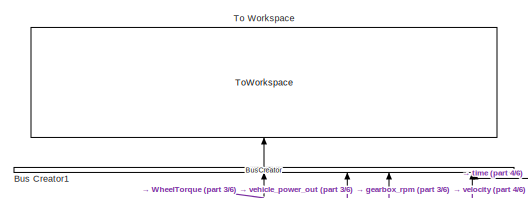
[diagram: root canvas - part 1/6, top left region]
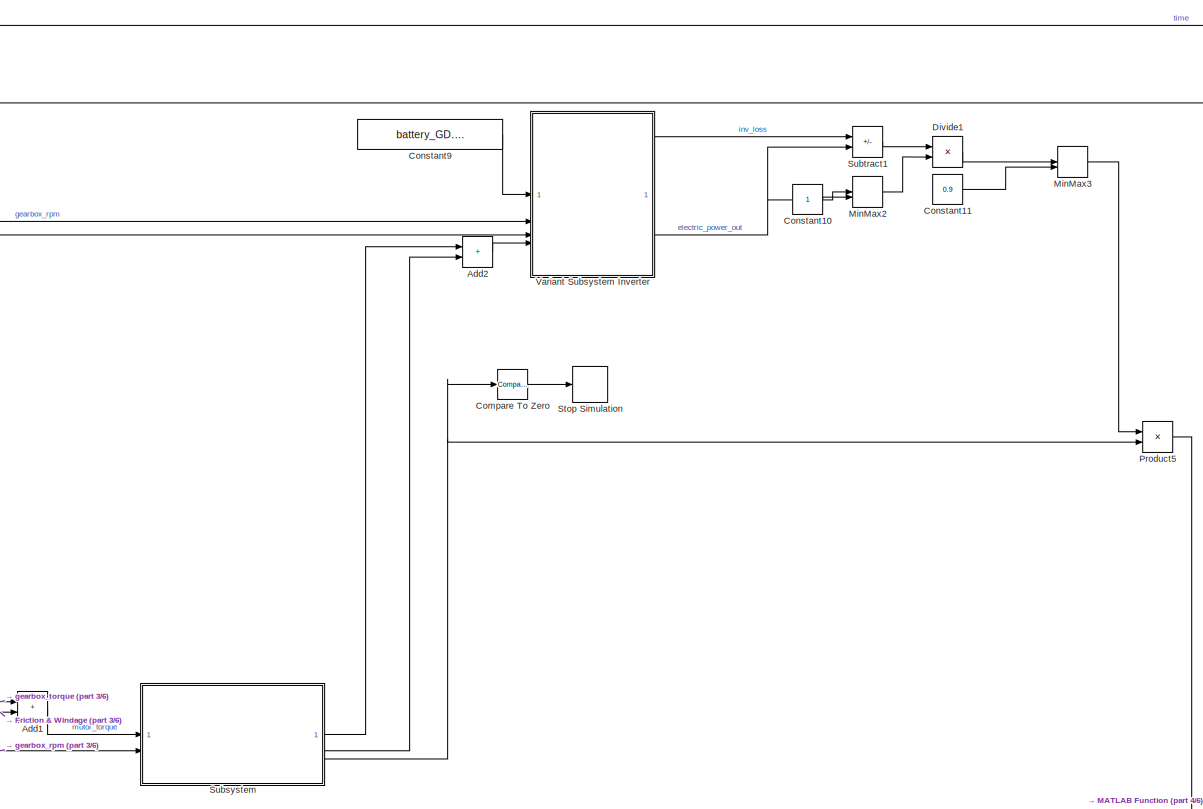
[diagram: root canvas - part 2/6, top center region]
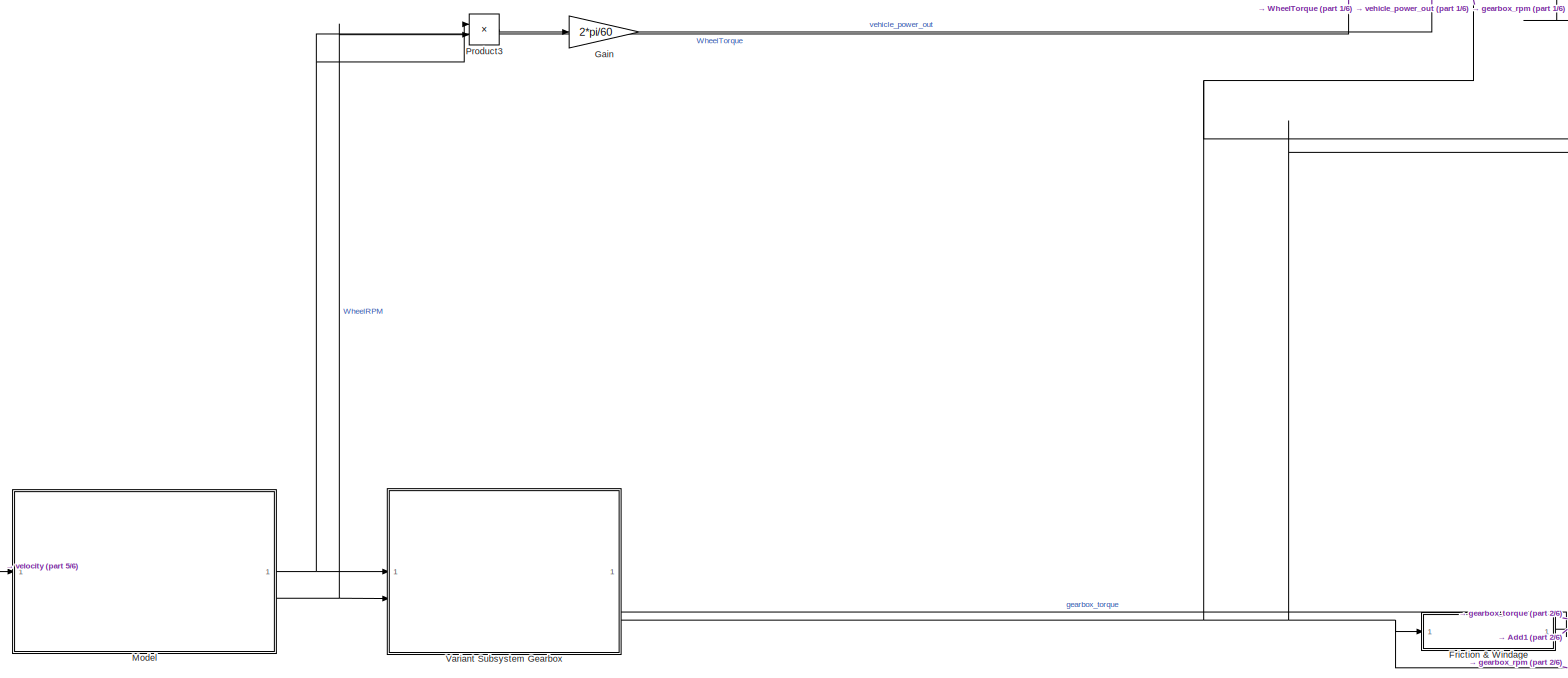
[diagram: root canvas - part 3/6, middle left region]
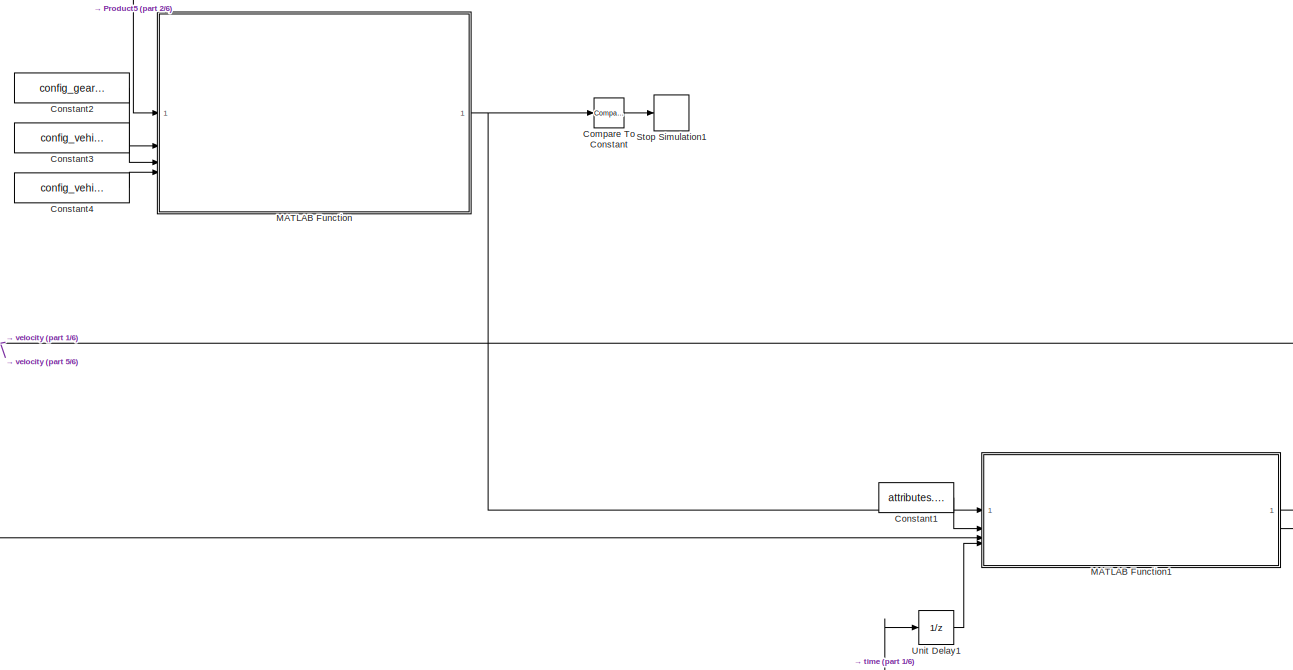
[diagram: root canvas - part 4/6, bottom right region]
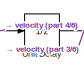
[diagram: root canvas - part 5/6, bottom left region]
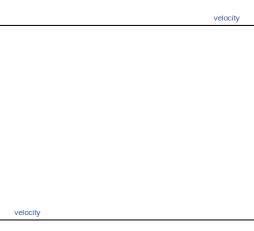
[diagram: root canvas - part 6/6, bottom center region]
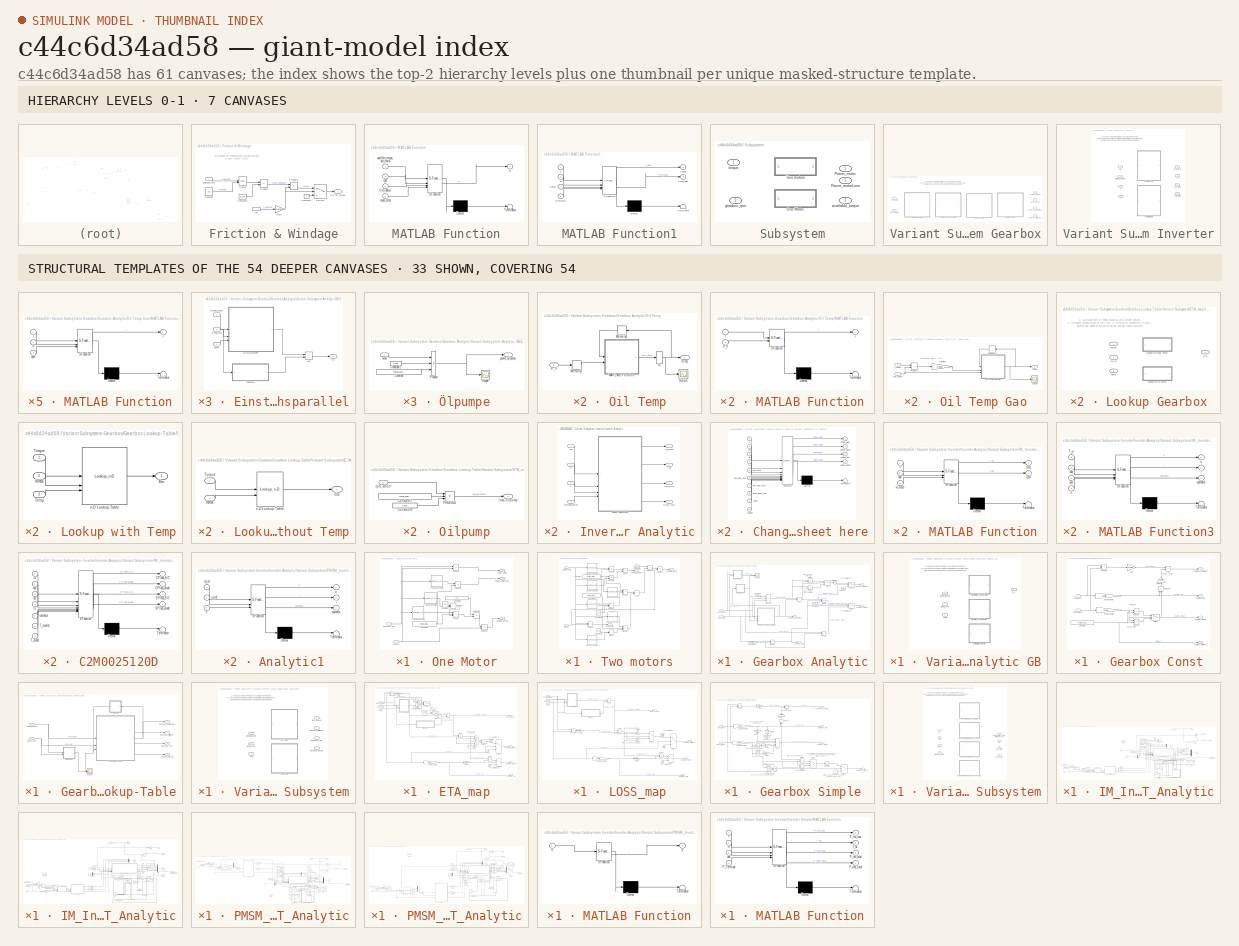
[diagram: thumbnail index - top-2 hierarchy levels (7 canvases) + 33 structural-template representatives of the remaining 54 canvases]
MODEL slx_c44c6d34ad58
KIND model
CONFIG AbsTol = auto
CONFIG EnableMultiTasking = on
CONFIG FixedStep = 0.001
CONFIG MaxStep = 0.1
CONFIG MinStep = auto
CONFIG RelTol = 1e-3
CONFIG SampleTimeConstraint = Unconstrained
CONFIG SolverName = ode45
CONFIG StartTime = 0.0
CONFIG StopTime = 1220
BLOCK [Sum] Add1
  IconShape = rectangular
BLOCK [Sum] Add2
  IconShape = rectangular
BLOCK [BusCreator] Bus Creator1
  DisplayOption = bar
  InheritFromInputs = on
  Inputs = 12
  NameLocation = right
BLOCK [Reference] Compare To Constant  REF=simulink/Logic and Bit
Operations/Compare
To Constant
  SourceBlock = simulink/Logic and Bit\nOperations/Compare\nTo Constant
  SourceType = Compare To Constant
BLOCK [Reference] Compare To Zero  REF=simulink/Logic and Bit
Operations/Compare
To Zero
  SourceBlock = simulink/Logic and Bit\nOperations/Compare\nTo Zero
  SourceType = Compare To Zero
BLOCK [Constant] Constant1
  Value = attributes.deltaT
BLOCK [Constant] Constant10
BLOCK [Constant] Constant11
  Value = 0.9
BLOCK [Constant] Constant2
  Value = config_gearbox.iges
BLOCK [Constant] Constant3
  Value = config_vehicle.tire_radius
BLOCK [Constant] Constant4
  Value = config_vehicle.mass_total
BLOCK [Constant] Constant9
  Value = battery_GD.SysInfo.U_nom_sys
BLOCK [Product] Divide1
  Inputs = */
BLOCK [SubSystem] Friction & Windage
BLOCK [Constant] Friction & Windage/Constant
  Value = 2.5
BLOCK [Constant] Friction & Windage/Constant1
  Value = 0
BLOCK [Constant] Friction & Windage/Constant5
  Value = k_FW
BLOCK [Gain] Friction & Windage/Gain
  Gain = 2*pi/60
BLOCK [InportShadow] Friction & Windage/In2
BLOCK [Math] Friction & Windage/Power
  Operator = pow
BLOCK [Product] Friction & Windage/Product
BLOCK [Product] Friction & Windage/Product2
  Inputs = */
BLOCK [Switch] Friction & Windage/Switch
  Criteria = u2 > Threshold
  InputSameDT = off
  SaturateOnIntegerOverflow = off
BLOCK [Outport] Friction & Windage/friction torque
BLOCK [Inport] Friction & Windage/gearbox_rpm
BLOCK [Gain] Gain
  Gain = 2*pi/60
BLOCK [SubSystem] MATLAB Function
  ErrorFcn = Stateflow.Translate.translate
  PermitHierarchicalResolution = ExplicitOnly
  SFBlockType = MATLAB Function
  TreatAsAtomicUnit = on
BLOCK [Demux] MATLAB Function/ Demux 
  Outputs = 1
BLOCK [S-Function] MATLAB Function/ SFunction 
  EnableBusSupport = on
  FunctionName = sf_sfun
  PortCounts = [4 2]
  SFcnIsStateOwnerBlock = off
  SFunctionDeploymentMode = off
  Tag = Stateflow S-Function 3
BLOCK [Terminator] MATLAB Function/ Terminator 
BLOCK [Outport] MATLAB Function/a
BLOCK [Inport] MATLAB Function/availble_torque_acc_motor
BLOCK [Inport] MATLAB Function/iges
  Port = 2
BLOCK [Inport] MATLAB Function/mass_total
  Port = 4
BLOCK [Inport] MATLAB Function/tire_radius
  Port = 3
BLOCK [SubSystem] MATLAB Function1
  ErrorFcn = Stateflow.Translate.translate
  PermitHierarchicalResolution = ExplicitOnly
  SFBlockType = MATLAB Function
  TreatAsAtomicUnit = on
BLOCK [Demux] MATLAB Function1/ Demux 
  Outputs = 1
BLOCK [S-Function] MATLAB Function1/ SFunction 
  EnableBusSupport = on
  FunctionName = sf_sfun
  PortCounts = [4 3]
  SFcnIsStateOwnerBlock = off
  SFunctionDeploymentMode = off
  Tag = Stateflow S-Function 4
BLOCK [Terminator] MATLAB Function1/ Terminator 
BLOCK [Inport] MATLAB Function1/a
BLOCK [Inport] MATLAB Function1/dt
  Port = 2
BLOCK [Outport] MATLAB Function1/time_new
  Port = 2
BLOCK [Inport] MATLAB Function1/time_prev
  Port = 4
BLOCK [Outport] MATLAB Function1/v_new
BLOCK [Inport] MATLAB Function1/v_prev
  Port = 3
BLOCK [MinMax] MinMax2
  Function = max
  Inputs = 2
BLOCK [MinMax] MinMax3
  Function = max
  Inputs = 2
BLOCK [ModelReference] Model
  ModelNameDialog = vehicle_model.slx
  ModelReferenceVersion = 4.1
BLOCK [Product] Product3
BLOCK [Product] Product5
BLOCK [Stop] Stop Simulation
BLOCK [Stop] Stop Simulation1
BLOCK [SubSystem] Subsystem
  Variant = on
  VariantControl = Subsystem
BLOCK [SubSystem] Subsystem/One Motor
  VariantControl = Motor_Mode == "LookupOneMotor"
BLOCK [Lookup_n-D] Subsystem/One Motor/1-D Lookup Table
  BreakpointsForDimension1 = speed_vector
  InputPortMap = u0
  InternalRulePriority = Speed
  NumberOfTableDimensions = 1
  RndMeth = Simplest
  Table = max_torque_map
BLOCK [Lookup_n-D] Subsystem/One Motor/1-D Lookup Table1
  BreakpointsForDimension1 = speed_vector
  InputPortMap = u0
  InternalRulePriority = Speed
  NumberOfTableDimensions = 1
  RndMeth = Simplest
  Table = lossData
BLOCK [Lookup_n-D] Subsystem/One Motor/1-D Lookup Table2
  BreakpointsForDimension1 = speed_vector
  InputPortMap = u0
  InternalRulePriority = Speed
  NumberOfTableDimensions = 1
  RndMeth = Simplest
  Table = efficiency_vector
BLOCK [Constant] Subsystem/One Motor/Constant5
  Value = config_motor.motorsCount1
BLOCK [Constant] Subsystem/One Motor/Constant6
  Value = 0.92
BLOCK [Constant] Subsystem/One Motor/Constant7
  Value = 0.25
BLOCK [MinMax] Subsystem/One Motor/MinMax
  Function = max
  Inputs = 2
BLOCK [Outport] Subsystem/One Motor/Power_motor
BLOCK [Outport] Subsystem/One Motor/Power_motorLoss
  Port = 2
BLOCK [Product] Subsystem/One Motor/Product
  Inputs = 3
BLOCK [Product] Subsystem/One Motor/Product1
BLOCK [Product] Subsystem/One Motor/Product2
BLOCK [Product] Subsystem/One Motor/Product3
BLOCK [Sum] Subsystem/One Motor/Subtract
  IconShape = rectangular
  Inputs = +-
BLOCK [Outport] Subsystem/One Motor/available_torque
  Port = 3
BLOCK [Inport] Subsystem/One Motor/gearbox_rpm
  Port = 2
BLOCK [Inport] Subsystem/One Motor/torque
BLOCK [Outport] Subsystem/Power_motor
BLOCK [Outport] Subsystem/Power_motorLoss
  Port = 2
BLOCK [SubSystem] Subsystem/Two motors
  VariantControl = Motor_Mode == "Lookup"
BLOCK [Lookup_n-D] Subsystem/Two motors/1-D Lookup Table
  BreakpointsForDimension1 = speed_vector
  InputPortMap = u0
  InternalRulePriority = Speed
  NumberOfTableDimensions = 1
  RndMeth = Simplest
  Table = max_torque_map
BLOCK [Lookup_n-D] Subsystem/Two motors/1-D Lookup Table1
  BreakpointsForDimension1 = speed_vector2
  InputPortMap = u0
  InternalRulePriority = Speed
  NumberOfTableDimensions = 1
  RndMeth = Simplest
  Table = max_torque_map2
BLOCK [Lookup_n-D] Subsystem/Two motors/1-D Lookup Table2
  BreakpointsForDimension1 = speed_vector
  InputPortMap = u0
  InternalRulePriority = Speed
  NumberOfTableDimensions = 1
  RndMeth = Simplest
  Table = efficiency_vector
BLOCK [Lookup_n-D] Subsystem/Two motors/1-D Lookup Table3
  BreakpointsForDimension1 = speed_vector2
  InputPortMap = u0
  InternalRulePriority = Speed
  NumberOfTableDimensions = 1
  RndMeth = Simplest
  Table = efficiency_vector2
BLOCK [Lookup_n-D] Subsystem/Two motors/1-D Lookup Table4
  BreakpointsForDimension1 = speed_vector
  InputPortMap = u0
  InternalRulePriority = Speed
  NumberOfTableDimensions = 1
  RndMeth = Simplest
  Table = lossData
BLOCK [Lookup_n-D] Subsystem/Two motors/1-D Lookup Table5
  BreakpointsForDimension1 = speed_vector2
  InputPortMap = u0
  InternalRulePriority = Speed
  NumberOfTableDimensions = 1
  RndMeth = Simplest
  Table = lossData2
BLOCK [Sum] Subsystem/Two motors/Add
  IconShape = rectangular
BLOCK [Sum] Subsystem/Two motors/Add1
  IconShape = rectangular
BLOCK [Constant] Subsystem/Two motors/Constant
  Value = config_motor.motorsCount2
BLOCK [Constant] Subsystem/Two motors/Constant5
  Value = config_motor.motorsCount1
BLOCK [Constant] Subsystem/Two motors/Constant6
  Value = 0.92
BLOCK [Constant] Subsystem/Two motors/Constant7
  Value = 0.25
BLOCK [Constant] Subsystem/Two motors/Constant8
  Value = 0.25
BLOCK [MinMax] Subsystem/Two motors/MinMax
  Function = max
  Inputs = 2
BLOCK [MinMax] Subsystem/Two motors/MinMax1
  Function = max
  Inputs = 2
BLOCK [Outport] Subsystem/Two motors/Power_motor
BLOCK [Outport] Subsystem/Two motors/Power_motorLoss
  Port = 2
BLOCK [Product] Subsystem/Two motors/Product
  Inputs = 3
BLOCK [Product] Subsystem/Two motors/Product1
  Inputs = 3
BLOCK [Product] Subsystem/Two motors/Product2
BLOCK [Product] Subsystem/Two motors/Product3
BLOCK [Product] Subsystem/Two motors/Product4
BLOCK [Product] Subsystem/Two motors/Product5
BLOCK [Sum] Subsystem/Two motors/Subtract
  IconShape = rectangular
  Inputs = +-
BLOCK [Outport] Subsystem/Two motors/available_torque
  Port = 3
BLOCK [Inport] Subsystem/Two motors/gearbox_rpm
  Port = 2
BLOCK [Inport] Subsystem/Two motors/torque
BLOCK [Outport] Subsystem/available_torque
  Port = 3
BLOCK [Inport] Subsystem/gearbox_rpm
  Port = 2
BLOCK [Inport] Subsystem/torque
BLOCK [Sum] Subtract1
  IconShape = rectangular
  Inputs = -+
BLOCK [ToWorkspace] To Workspace
  FixptAsFi = on
  MaxDataPoints = inf
  NameLocation = right
  SampleTime = -1
  SaveFormat = Timeseries
  VariableName = sim_out
BLOCK [UnitDelay] Unit Delay
  HasFrameUpgradeWarning = on
  SampleTime = -1
BLOCK [UnitDelay] Unit Delay1
  HasFrameUpgradeWarning = on
  SampleTime = -1
BLOCK [SubSystem] Variant Subsystem Gearbox
  Variant = on
BLOCK [SubSystem] Variant Subsystem Gearbox/Gearbox Analytic
  VariantControl = GB_Mode == "Analytic"
BLOCK [Sum] Variant Subsystem Gearbox/Gearbox Analytic/Add
  IconShape = rectangular
BLOCK [Constant] Variant Subsystem Gearbox/Gearbox Analytic/Constant
  Value = 2*pi/60
BLOCK [Constant] Variant Subsystem Gearbox/Gearbox Analytic/Constant1
  Value = 2*pi/60
BLOCK [Constant] Variant Subsystem Gearbox/Gearbox Analytic/Constant2
  Value = GB.iges
BLOCK [Constant] Variant Subsystem Gearbox/Gearbox Analytic/Constant3
  Value = 0
BLOCK [Product] Variant Subsystem Gearbox/Gearbox Analytic/Divide
  Inputs = *//
BLOCK [Product] Variant Subsystem Gearbox/Gearbox Analytic/Divide1
  Inputs = */
BLOCK [Product] Variant Subsystem Gearbox/Gearbox Analytic/Divide2
  Inputs = /*
BLOCK [SubSystem] Variant Subsystem Gearbox/Gearbox Analytic/Oil Temp
BLOCK [SubSystem] Variant Subsystem Gearbox/Gearbox Analytic/Oil Temp Gao
  Commented = on
BLOCK [SubSystem] Variant Subsystem Gearbox/Gearbox Analytic/Oil Temp Gao/MATLAB Function
  ErrorFcn = Stateflow.Translate.translate
  LibrarySourceBlock = simulink/User-Defined\nFunctions/MATLAB Function
  PermitHierarchicalResolution = ExplicitOnly
  SFBlockType = MATLAB Function
  TreatAsAtomicUnit = on
BLOCK [Demux] Variant Subsystem Gearbox/Gearbox Analytic/Oil Temp Gao/MATLAB Function/ Demux 
  Outputs = 1
BLOCK [S-Function] Variant Subsystem Gearbox/Gearbox Analytic/Oil Temp Gao/MATLAB Function/ SFunction 
  EnableBusSupport = off
  FunctionName = sf_sfun
  PortCounts = [3 2]
  SFcnIsStateOwnerBlock = off
  SFunctionDeploymentMode = off
  Tag = Stateflow S-Function 27
BLOCK [Terminator] Variant Subsystem Gearbox/Gearbox Analytic/Oil Temp Gao/MATLAB Function/ Terminator 
BLOCK [Inport] Variant Subsystem Gearbox/Gearbox Analytic/Oil Temp Gao/MATLAB Function/P
  Port = 2
BLOCK [Outport] Variant Subsystem Gearbox/Gearbox Analytic/Oil Temp Gao/MATLAB Function/T
BLOCK [Inport] Variant Subsystem Gearbox/Gearbox Analytic/Oil Temp Gao/MATLAB Function/rpm
  Port = 3
BLOCK [Inport] Variant Subsystem Gearbox/Gearbox Analytic/Oil Temp Gao/MATLAB Function/t
BLOCK [Memory] Variant Subsystem Gearbox/Gearbox Analytic/Oil Temp Gao/Memory1
  InitialCondition = config_vehicle.ambient_temp - 273
BLOCK [Gain] Variant Subsystem Gearbox/Gearbox Analytic/Oil Temp Gao/Multiply5
  Gain = 1/9550
BLOCK [Product] Variant Subsystem Gearbox/Gearbox Analytic/Oil Temp Gao/Product2
BLOCK [Scope] Variant Subsystem Gearbox/Gearbox Analytic/Oil Temp Gao/Scope
  Floating = off
  NumInputPorts = 1
  ScopeSpecificationString = Simulink.scopes.TimeScopeBlockCfg('CurrentConfiguration', extmgr.ConfigurationSet(extmgr.Configuration('Core','General UI',true),extmgr.Configuration('Core','Source UI',true),extmgr.Configuration('Sources','WiredSimulink',true,'DataLoggingVariableName','ScopeData1'),extmgr.Configuration('Visuals','Time Domain',true,'SerializedDisplays',{struct('MinYLimReal','23.29798','MaxYLimReal','41.81818','YLa...<+1579ch>
BLOCK [Inport] Variant Subsystem Gearbox/Gearbox Analytic/Oil Temp Gao/T_wheel
BLOCK [Inport] Variant Subsystem Gearbox/Gearbox Analytic/Oil Temp Gao/rpm_wheel
  Port = 2
BLOCK [Outport] Variant Subsystem Gearbox/Gearbox Analytic/Oil Temp Gao/temp
BLOCK [InitialCondition] Variant Subsystem Gearbox/Gearbox Analytic/Oil Temp/IC
  Value = 25
BLOCK [SubSystem] Variant Subsystem Gearbox/Gearbox Analytic/Oil Temp/MATLAB Function
  ErrorFcn = Stateflow.Translate.translate
  LibrarySourceBlock = simulink/User-Defined\nFunctions/MATLAB Function
  PermitHierarchicalResolution = ExplicitOnly
  SFBlockType = MATLAB Function
  TreatAsAtomicUnit = on
BLOCK [Demux] Variant Subsystem Gearbox/Gearbox Analytic/Oil Temp/MATLAB Function/ Demux 
  Outputs = 1
BLOCK [S-Function] Variant Subsystem Gearbox/Gearbox Analytic/Oil Temp/MATLAB Function/ SFunction 
  EnableBusSupport = on
  FunctionName = sf_sfun
  PortCounts = [2 2]
  SFcnIsStateOwnerBlock = off
  SFunctionDeploymentMode = off
  Tag = Stateflow S-Function 16
BLOCK [Terminator] Variant Subsystem Gearbox/Gearbox Analytic/Oil Temp/MATLAB Function/ Terminator 
BLOCK [Inport] Variant Subsystem Gearbox/Gearbox Analytic/Oil Temp/MATLAB Function/P_V
  Port = 2
BLOCK [Outport] Variant Subsystem Gearbox/Gearbox Analytic/Oil Temp/MATLAB Function/T
BLOCK [Inport] Variant Subsystem Gearbox/Gearbox Analytic/Oil Temp/MATLAB Function/t
BLOCK [Memory] Variant Subsystem Gearbox/Gearbox Analytic/Oil Temp/Memory1
  InitialCondition = config_vehicle.ambient_temp - 273
BLOCK [Memory] Variant Subsystem Gearbox/Gearbox Analytic/Oil Temp/Memory2
  InitialCondition = config_vehicle.ambient_temp - 273
  NameLocation = top
BLOCK [Inport] Variant Subsystem Gearbox/Gearbox Analytic/Oil Temp/P_V
BLOCK [Scope] Variant Subsystem Gearbox/Gearbox Analytic/Oil Temp/Scope
  Floating = off
  NumInputPorts = 1
  ScopeSpecificationString = Simulink.scopes.TimeScopeBlockCfg('CurrentConfiguration', extmgr.ConfigurationSet(extmgr.Configuration('Core','General UI',true),extmgr.Configuration('Core','Source UI',true),extmgr.Configuration('Sources','WiredSimulink',true,'DataLoggingVariableName','ScopeData1'),extmgr.Configuration('Visuals','Time Domain',true,'SerializedDisplays',{struct('MinYLimReal','22.80646','MaxYLimReal','44.74185','YLa...<+1567ch>
BLOCK [Outport] Variant Subsystem Gearbox/Gearbox Analytic/Oil Temp/temp
BLOCK [Product] Variant Subsystem Gearbox/Gearbox Analytic/Product
BLOCK [Product] Variant Subsystem Gearbox/Gearbox Analytic/Product1
  Inputs = 3
BLOCK [Product] Variant Subsystem Gearbox/Gearbox Analytic/Product2
  Inputs = */
BLOCK [Saturate] Variant Subsystem Gearbox/Gearbox Analytic/Saturation1
  LowerLimit = 0
  UpperLimit = inf
BLOCK [Scope] Variant Subsystem Gearbox/Gearbox Analytic/Scope
  Floating = off
  NumInputPorts = 2
  ScopeSpecificationString = Simulink.scopes.TimeScopeBlockCfg('CurrentConfiguration', extmgr.ConfigurationSet(extmgr.Configuration('Core','General UI',true),extmgr.Configuration('Core','Source UI',true),extmgr.Configuration('Sources','WiredSimulink',true,'DataLoggingVariableName','ScopeData12'),extmgr.Configuration('Visuals','Time Domain',true,'SerializedDisplays',{struct('MinYLimReal','20.95283','MaxYLimReal','61.42453','YL...<+1539ch>
BLOCK [Switch] Variant Subsystem Gearbox/Gearbox Analytic/Switch
  Criteria = u2 > Threshold
  InputSameDT = off
  SaturateOnIntegerOverflow = off
BLOCK [Switch] Variant Subsystem Gearbox/Gearbox Analytic/Switch1
  Criteria = u2 ~= 0
  InputSameDT = off
  SaturateOnIntegerOverflow = off
BLOCK [Switch] Variant Subsystem Gearbox/Gearbox Analytic/Switch2
  Criteria = u2 ~= 0
  InputSameDT = off
  SaturateOnIntegerOverflow = off
BLOCK [SubSystem] Variant Subsystem Gearbox/Gearbox Analytic/Variant Subsystem Analytic GB
  Variant = on
BLOCK [SubSystem] Variant Subsystem Gearbox/Gearbox Analytic/Variant Subsystem Analytic GB/Einstufig_Achsparallel
  VariantControl = GB_Stufen == 1
BLOCK [Sum] Variant Subsystem Gearbox/Gearbox Analytic/Variant Subsystem Analytic GB/Einstufig_Achsparallel/Add
  IconShape = rectangular
BLOCK [SubSystem] Variant Subsystem Gearbox/Gearbox Analytic/Variant Subsystem Analytic GB/Einstufig_Achsparallel/MATLAB Function
  ErrorFcn = Stateflow.Translate.translate
  LibrarySourceBlock = simulink/User-Defined\nFunctions/MATLAB Function
  PermitHierarchicalResolution = ExplicitOnly
  SFBlockType = MATLAB Function
  TreatAsAtomicUnit = on
BLOCK [Demux] Variant Subsystem Gearbox/Gearbox Analytic/Variant Subsystem Analytic GB/Einstufig_Achsparallel/MATLAB Function/ Demux 
  Outputs = 1
BLOCK [S-Function] Variant Subsystem Gearbox/Gearbox Analytic/Variant Subsystem Analytic GB/Einstufig_Achsparallel/MATLAB Function/ SFunction 
  EnableBusSupport = on
  FunctionName = sf_sfun
  Parameters = GB
  PortCounts = [3 2]
  SFcnIsStateOwnerBlock = off
  SFunctionDeploymentMode = off
  Tag = Stateflow S-Function 1
BLOCK [Terminator] Variant Subsystem Gearbox/Gearbox Analytic/Variant Subsystem Analytic GB/Einstufig_Achsparallel/MATLAB Function/ Terminator 
BLOCK [Inport] Variant Subsystem Gearbox/Gearbox Analytic/Variant Subsystem Analytic GB/Einstufig_Achsparallel/MATLAB Function/Mrad
BLOCK [Outport] Variant Subsystem Gearbox/Gearbox Analytic/Variant Subsystem Analytic GB/Einstufig_Achsparallel/MATLAB Function/P_V
BLOCK [Inport] Variant Subsystem Gearbox/Gearbox Analytic/Variant Subsystem Analytic GB/Einstufig_Achsparallel/MATLAB Function/Temp
  Port = 3
BLOCK [Inport] Variant Subsystem Gearbox/Gearbox Analytic/Variant Subsystem Analytic GB/Einstufig_Achsparallel/MATLAB Function/nrad
  Port = 2
BLOCK [Outport] Variant Subsystem Gearbox/Gearbox Analytic/Variant Subsystem Analytic GB/Einstufig_Achsparallel/P_V
BLOCK [Inport] Variant Subsystem Gearbox/Gearbox Analytic/Variant Subsystem Analytic GB/Einstufig_Achsparallel/Temp
  Port = 3
BLOCK [Inport] Variant Subsystem Gearbox/Gearbox Analytic/Variant Subsystem Analytic GB/Einstufig_Achsparallel/wheel_rpm
  Port = 2
BLOCK [Inport] Variant Subsystem Gearbox/Gearbox Analytic/Variant Subsystem Analytic GB/Einstufig_Achsparallel/wheel_torque
BLOCK [SubSystem] Variant Subsystem Gearbox/Gearbox Analytic/Variant Subsystem Analytic GB/Einstufig_Achsparallel/Ölpumpe
BLOCK [Constant] Variant Subsystem Gearbox/Gearbox Analytic/Variant Subsystem Analytic GB/Einstufig_Achsparallel/Ölpumpe/Constant
  Value = config_gearbox.power_oilpump
BLOCK [Constant] Variant Subsystem Gearbox/Gearbox Analytic/Variant Subsystem Analytic GB/Einstufig_Achsparallel/Ölpumpe/Constant1
  Value = 1.5e3
BLOCK [Product] Variant Subsystem Gearbox/Gearbox Analytic/Variant Subsystem Analytic GB/Einstufig_Achsparallel/Ölpumpe/Product
  Inputs = */*
BLOCK [Scope] Variant Subsystem Gearbox/Gearbox Analytic/Variant Subsystem Analytic GB/Einstufig_Achsparallel/Ölpumpe/Scope
  Floating = off
  NumInputPorts = 1
  ScopeSpecificationString = Simulink.scopes.TimeScopeBlockCfg('CurrentConfiguration', extmgr.ConfigurationSet(extmgr.Configuration('Core','General UI',true),extmgr.Configuration('Core','Source UI',true),extmgr.Configuration('Sources','WiredSimulink',true,'DataLoggingVariableName','ScopeData1'),extmgr.Configuration('Visuals','Time Domain',true,'SerializedDisplays',{struct('MinYLimReal','-8.56229','MaxYLimReal','77.06063','YLa...<+1428ch>  <repeated x3 — deduplicated; at blocks: Scope>
BLOCK [Inport] Variant Subsystem Gearbox/Gearbox Analytic/Variant Subsystem Analytic GB/Einstufig_Achsparallel/Ölpumpe/nrad
BLOCK [Outport] Variant Subsystem Gearbox/Gearbox Analytic/Variant Subsystem Analytic GB/Einstufig_Achsparallel/Ölpumpe/power_oilpump
BLOCK [Outport] Variant Subsystem Gearbox/Gearbox Analytic/Variant Subsystem Analytic GB/P_V
BLOCK [Inport] Variant Subsystem Gearbox/Gearbox Analytic/Variant Subsystem Analytic GB/Temp
  Port = 3
BLOCK [SubSystem] Variant Subsystem Gearbox/Gearbox Analytic/Variant Subsystem Analytic GB/Zweistufig_Achsparallel
  VariantControl = GB_Stufen == 2 && GB_Topology == "achsparallel"
BLOCK [Sum] Variant Subsystem Gearbox/Gearbox Analytic/Variant Subsystem Analytic GB/Zweistufig_Achsparallel/Add
  IconShape = rectangular
BLOCK [SubSystem] Variant Subsystem Gearbox/Gearbox Analytic/Variant Subsystem Analytic GB/Zweistufig_Achsparallel/MATLAB Function
  ErrorFcn = Stateflow.Translate.translate
  LibrarySourceBlock = simulink/User-Defined\nFunctions/MATLAB Function
  PermitHierarchicalResolution = ExplicitOnly
  SFBlockType = MATLAB Function
  TreatAsAtomicUnit = on
BLOCK [Demux] Variant Subsystem Gearbox/Gearbox Analytic/Variant Subsystem Analytic GB/Zweistufig_Achsparallel/MATLAB Function/ Demux 
  Outputs = 1
BLOCK [S-Function] Variant Subsystem Gearbox/Gearbox Analytic/Variant Subsystem Analytic GB/Zweistufig_Achsparallel/MATLAB Function/ SFunction 
  EnableBusSupport = on
  FunctionName = sf_sfun
  Parameters = GB
  PortCounts = [3 2]
  SFcnIsStateOwnerBlock = off
  SFunctionDeploymentMode = off
  Tag = Stateflow S-Function 28
BLOCK [Terminator] Variant Subsystem Gearbox/Gearbox Analytic/Variant Subsystem Analytic GB/Zweistufig_Achsparallel/MATLAB Function/ Terminator 
BLOCK [Inport] Variant Subsystem Gearbox/Gearbox Analytic/Variant Subsystem Analytic GB/Zweistufig_Achsparallel/MATLAB Function/Mrad
BLOCK [Outport] Variant Subsystem Gearbox/Gearbox Analytic/Variant Subsystem Analytic GB/Zweistufig_Achsparallel/MATLAB Function/P_V
BLOCK [Inport] Variant Subsystem Gearbox/Gearbox Analytic/Variant Subsystem Analytic GB/Zweistufig_Achsparallel/MATLAB Function/Temp
  Port = 3
BLOCK [Inport] Variant Subsystem Gearbox/Gearbox Analytic/Variant Subsystem Analytic GB/Zweistufig_Achsparallel/MATLAB Function/nrad
  Port = 2
BLOCK [Outport] Variant Subsystem Gearbox/Gearbox Analytic/Variant Subsystem Analytic GB/Zweistufig_Achsparallel/P_V
BLOCK [Inport] Variant Subsystem Gearbox/Gearbox Analytic/Variant Subsystem Analytic GB/Zweistufig_Achsparallel/Temp
  Port = 3
BLOCK [Inport] Variant Subsystem Gearbox/Gearbox Analytic/Variant Subsystem Analytic GB/Zweistufig_Achsparallel/wheel_rpm
  Port = 2
BLOCK [Inport] Variant Subsystem Gearbox/Gearbox Analytic/Variant Subsystem Analytic GB/Zweistufig_Achsparallel/wheel_torque
BLOCK [SubSystem] Variant Subsystem Gearbox/Gearbox Analytic/Variant Subsystem Analytic GB/Zweistufig_Achsparallel/Ölpumpe
BLOCK [Constant] Variant Subsystem Gearbox/Gearbox Analytic/Variant Subsystem Analytic GB/Zweistufig_Achsparallel/Ölpumpe/Constant
  Value = config_gearbox.power_oilpump
BLOCK [Constant] Variant Subsystem Gearbox/Gearbox Analytic/Variant Subsystem Analytic GB/Zweistufig_Achsparallel/Ölpumpe/Constant1
  Value = 15e3
BLOCK [Product] Variant Subsystem Gearbox/Gearbox Analytic/Variant Subsystem Analytic GB/Zweistufig_Achsparallel/Ölpumpe/Product
  Inputs = */*
BLOCK [Scope] Variant Subsystem Gearbox/Gearbox Analytic/Variant Subsystem Analytic GB/Zweistufig_Achsparallel/Ölpumpe/Scope
  Floating = off
  NameLocation = left
  NumInputPorts = 1
BLOCK [Inport] Variant Subsystem Gearbox/Gearbox Analytic/Variant Subsystem Analytic GB/Zweistufig_Achsparallel/Ölpumpe/nrad
BLOCK [Outport] Variant Subsystem Gearbox/Gearbox Analytic/Variant Subsystem Analytic GB/Zweistufig_Achsparallel/Ölpumpe/power_oilpump
BLOCK [SubSystem] Variant Subsystem Gearbox/Gearbox Analytic/Variant Subsystem Analytic GB/Zweistufig_Koaxial
  VariantControl = GB_Stufen == 2 && GB_Topology == "koaxial"
BLOCK [Sum] Variant Subsystem Gearbox/Gearbox Analytic/Variant Subsystem Analytic GB/Zweistufig_Koaxial/Add
  IconShape = rectangular
BLOCK [SubSystem] Variant Subsystem Gearbox/Gearbox Analytic/Variant Subsystem Analytic GB/Zweistufig_Koaxial/MATLAB Function
  ErrorFcn = Stateflow.Translate.translate
  LibrarySourceBlock = simulink/User-Defined\nFunctions/MATLAB Function
  PermitHierarchicalResolution = ExplicitOnly
  SFBlockType = MATLAB Function
  TreatAsAtomicUnit = on
BLOCK [Demux] Variant Subsystem Gearbox/Gearbox Analytic/Variant Subsystem Analytic GB/Zweistufig_Koaxial/MATLAB Function/ Demux 
  Outputs = 1
BLOCK [S-Function] Variant Subsystem Gearbox/Gearbox Analytic/Variant Subsystem Analytic GB/Zweistufig_Koaxial/MATLAB Function/ SFunction 
  EnableBusSupport = on
  FunctionName = sf_sfun
  Parameters = GB
  PortCounts = [3 2]
  SFcnIsStateOwnerBlock = off
  SFunctionDeploymentMode = off
  Tag = Stateflow S-Function 23
BLOCK [Terminator] Variant Subsystem Gearbox/Gearbox Analytic/Variant Subsystem Analytic GB/Zweistufig_Koaxial/MATLAB Function/ Terminator 
BLOCK [Inport] Variant Subsystem Gearbox/Gearbox Analytic/Variant Subsystem Analytic GB/Zweistufig_Koaxial/MATLAB Function/Mrad
BLOCK [Outport] Variant Subsystem Gearbox/Gearbox Analytic/Variant Subsystem Analytic GB/Zweistufig_Koaxial/MATLAB Function/P_V
BLOCK [Inport] Variant Subsystem Gearbox/Gearbox Analytic/Variant Subsystem Analytic GB/Zweistufig_Koaxial/MATLAB Function/Temp
  Port = 3
BLOCK [Inport] Variant Subsystem Gearbox/Gearbox Analytic/Variant Subsystem Analytic GB/Zweistufig_Koaxial/MATLAB Function/nrad
  Port = 2
BLOCK [Outport] Variant Subsystem Gearbox/Gearbox Analytic/Variant Subsystem Analytic GB/Zweistufig_Koaxial/P_V
BLOCK [Inport] Variant Subsystem Gearbox/Gearbox Analytic/Variant Subsystem Analytic GB/Zweistufig_Koaxial/Temp
  Port = 3
BLOCK [Inport] Variant Subsystem Gearbox/Gearbox Analytic/Variant Subsystem Analytic GB/Zweistufig_Koaxial/wheel_rpm
  Port = 2
BLOCK [Inport] Variant Subsystem Gearbox/Gearbox Analytic/Variant Subsystem Analytic GB/Zweistufig_Koaxial/wheel_torque
BLOCK [SubSystem] Variant Subsystem Gearbox/Gearbox Analytic/Variant Subsystem Analytic GB/Zweistufig_Koaxial/Ölpumpe
BLOCK [Constant] Variant Subsystem Gearbox/Gearbox Analytic/Variant Subsystem Analytic GB/Zweistufig_Koaxial/Ölpumpe/Constant
  Value = config_gearbox.power_oilpump
BLOCK [Constant] Variant Subsystem Gearbox/Gearbox Analytic/Variant Subsystem Analytic GB/Zweistufig_Koaxial/Ölpumpe/Constant1
  Value = 1.5e3
BLOCK [Product] Variant Subsystem Gearbox/Gearbox Analytic/Variant Subsystem Analytic GB/Zweistufig_Koaxial/Ölpumpe/Product
  Inputs = */*
BLOCK [Scope] Variant Subsystem Gearbox/Gearbox Analytic/Variant Subsystem Analytic GB/Zweistufig_Koaxial/Ölpumpe/Scope
  Floating = off
  NumInputPorts = 1
BLOCK [Inport] Variant Subsystem Gearbox/Gearbox Analytic/Variant Subsystem Analytic GB/Zweistufig_Koaxial/Ölpumpe/nrad
BLOCK [Outport] Variant Subsystem Gearbox/Gearbox Analytic/Variant Subsystem Analytic GB/Zweistufig_Koaxial/Ölpumpe/power_oilpump
BLOCK [Inport] Variant Subsystem Gearbox/Gearbox Analytic/Variant Subsystem Analytic GB/wheel_rpm
  Port = 2
BLOCK [Inport] Variant Subsystem Gearbox/Gearbox Analytic/Variant Subsystem Analytic GB/wheel_torque
BLOCK [Outport] Variant Subsystem Gearbox/Gearbox Analytic/gearbox_efficiency
  Port = 4
BLOCK [Outport] Variant Subsystem Gearbox/Gearbox Analytic/gearbox_powerloss
  Port = 3
BLOCK [Outport] Variant Subsystem Gearbox/Gearbox Analytic/gearbox_rpm
  Port = 2
BLOCK [Outport] Variant Subsystem Gearbox/Gearbox Analytic/gearbox_torque
BLOCK [Inport] Variant Subsystem Gearbox/Gearbox Analytic/wheel_rpm
BLOCK [Inport] Variant Subsystem Gearbox/Gearbox Analytic/wheel_torque
  Port = 2
BLOCK [SubSystem] Variant Subsystem Gearbox/Gearbox Const
  VariantControl = GB_Mode == "Const"
BLOCK [Sum] Variant Subsystem Gearbox/Gearbox Const/Add
  IconShape = rectangular
  Inputs = -+
BLOCK [Constant] Variant Subsystem Gearbox/Gearbox Const/Constant
  Value = config_gearbox.efficiency
BLOCK [Gain] Variant Subsystem Gearbox/Gearbox Const/Gain
  Gain = 2*pi/60
BLOCK [Gain] Variant Subsystem Gearbox/Gearbox Const/Gain1
  Gain = 2*pi/60
  NameLocation = right
BLOCK [Gain] Variant Subsystem Gearbox/Gearbox Const/Gearbox Ratio
  Gain = config_gearbox.ratio
BLOCK [Gain] Variant Subsystem Gearbox/Gearbox Const/Gearbox Ratio1
  Gain = 1/config_gearbox.ratio
BLOCK [Product] Variant Subsystem Gearbox/Gearbox Const/Product
  Inputs = */
BLOCK [Product] Variant Subsystem Gearbox/Gearbox Const/Product1
  Inputs = **
BLOCK [Product] Variant Subsystem Gearbox/Gearbox Const/Product2
BLOCK [Product] Variant Subsystem Gearbox/Gearbox Const/Product3
  NameLocation = right
BLOCK [Switch] Variant Subsystem Gearbox/Gearbox Const/Switch
  InputSameDT = off
  SaturateOnIntegerOverflow = off
BLOCK [Outport] Variant Subsystem Gearbox/Gearbox Const/gearbox_efficiency
  Port = 4
BLOCK [Outport] Variant Subsystem Gearbox/Gearbox Const/gearbox_powerloss
  Port = 3
BLOCK [Outport] Variant Subsystem Gearbox/Gearbox Const/gearbox_rpm
  Port = 2
BLOCK [Outport] Variant Subsystem Gearbox/Gearbox Const/gearbox_torque
BLOCK [Inport] Variant Subsystem Gearbox/Gearbox Const/wheel_rpm
BLOCK [Inport] Variant Subsystem Gearbox/Gearbox Const/wheel_torque
  Port = 2
BLOCK [SubSystem] Variant Subsystem Gearbox/Gearbox Lookup-Table
  VariantControl = GB_Mode == "Lookup"
BLOCK [SubSystem] Variant Subsystem Gearbox/Gearbox Lookup-Table/Oil Temp
  NameLocation = top
BLOCK [SubSystem] Variant Subsystem Gearbox/Gearbox Lookup-Table/Oil Temp Gao
  Commented = on
BLOCK [SubSystem] Variant Subsystem Gearbox/Gearbox Lookup-Table/Oil Temp Gao/MATLAB Function
  ErrorFcn = Stateflow.Translate.translate
  LibrarySourceBlock = simulink/User-Defined\nFunctions/MATLAB Function
  PermitHierarchicalResolution = ExplicitOnly
  SFBlockType = MATLAB Function
  TreatAsAtomicUnit = on
BLOCK [Demux] Variant Subsystem Gearbox/Gearbox Lookup-Table/Oil Temp Gao/MATLAB Function/ Demux 
  Outputs = 1
BLOCK [S-Function] Variant Subsystem Gearbox/Gearbox Lookup-Table/Oil Temp Gao/MATLAB Function/ SFunction 
  EnableBusSupport = off
  FunctionName = sf_sfun
  PortCounts = [3 2]
  SFcnIsStateOwnerBlock = off
  SFunctionDeploymentMode = off
  Tag = Stateflow S-Function 22
BLOCK [Terminator] Variant Subsystem Gearbox/Gearbox Lookup-Table/Oil Temp Gao/MATLAB Function/ Terminator 
BLOCK [Inport] Variant Subsystem Gearbox/Gearbox Lookup-Table/Oil Temp Gao/MATLAB Function/P
  Port = 2
BLOCK [Outport] Variant Subsystem Gearbox/Gearbox Lookup-Table/Oil Temp Gao/MATLAB Function/T
BLOCK [Inport] Variant Subsystem Gearbox/Gearbox Lookup-Table/Oil Temp Gao/MATLAB Function/rpm
  Port = 3
BLOCK [Inport] Variant Subsystem Gearbox/Gearbox Lookup-Table/Oil Temp Gao/MATLAB Function/t
BLOCK [Memory] Variant Subsystem Gearbox/Gearbox Lookup-Table/Oil Temp Gao/Memory1
  InitialCondition = config_vehicle.ambient_temp - 273
BLOCK [Gain] Variant Subsystem Gearbox/Gearbox Lookup-Table/Oil Temp Gao/Multiply5
  Gain = 1/9550
BLOCK [Product] Variant Subsystem Gearbox/Gearbox Lookup-Table/Oil Temp Gao/Product2
BLOCK [Scope] Variant Subsystem Gearbox/Gearbox Lookup-Table/Oil Temp Gao/Scope
  Floating = off
  NumInputPorts = 1
  ScopeSpecificationString = Simulink.scopes.TimeScopeBlockCfg('CurrentConfiguration', extmgr.ConfigurationSet(extmgr.Configuration('Core','General UI',true),extmgr.Configuration('Core','Source UI',true),extmgr.Configuration('Sources','WiredSimulink',true,'DataLoggingVariableName','ScopeData1'),extmgr.Configuration('Visuals','Time Domain',true,'SerializedDisplays',{struct('MinYLimReal','21.12158','MaxYLimReal','61.40578','YLa...<+1578ch>
BLOCK [Inport] Variant Subsystem Gearbox/Gearbox Lookup-Table/Oil Temp Gao/T_wheel
BLOCK [Inport] Variant Subsystem Gearbox/Gearbox Lookup-Table/Oil Temp Gao/rpm_wheel
  Port = 2
BLOCK [Outport] Variant Subsystem Gearbox/Gearbox Lookup-Table/Oil Temp Gao/temp
BLOCK [InitialCondition] Variant Subsystem Gearbox/Gearbox Lookup-Table/Oil Temp/IC
  Value = 25
BLOCK [SubSystem] Variant Subsystem Gearbox/Gearbox Lookup-Table/Oil Temp/MATLAB Function
  ErrorFcn = Stateflow.Translate.translate
  LibrarySourceBlock = simulink/User-Defined\nFunctions/MATLAB Function
  PermitHierarchicalResolution = ExplicitOnly
  SFBlockType = MATLAB Function
  TreatAsAtomicUnit = on
BLOCK [Demux] Variant Subsystem Gearbox/Gearbox Lookup-Table/Oil Temp/MATLAB Function/ Demux 
  Outputs = 1
BLOCK [S-Function] Variant Subsystem Gearbox/Gearbox Lookup-Table/Oil Temp/MATLAB Function/ SFunction 
  EnableBusSupport = off
  FunctionName = sf_sfun
  PortCounts = [2 2]
  SFcnIsStateOwnerBlock = off
  SFunctionDeploymentMode = off
  Tag = Stateflow S-Function 11
BLOCK [Terminator] Variant Subsystem Gearbox/Gearbox Lookup-Table/Oil Temp/MATLAB Function/ Terminator 
BLOCK [Inport] Variant Subsystem Gearbox/Gearbox Lookup-Table/Oil Temp/MATLAB Function/P_V
  Port = 2
BLOCK [Outport] Variant Subsystem Gearbox/Gearbox Lookup-Table/Oil Temp/MATLAB Function/T
BLOCK [Inport] Variant Subsystem Gearbox/Gearbox Lookup-Table/Oil Temp/MATLAB Function/t
BLOCK [Memory] Variant Subsystem Gearbox/Gearbox Lookup-Table/Oil Temp/Memory1
  InitialCondition = config_vehicle.ambient_temp - 273
BLOCK [Memory] Variant Subsystem Gearbox/Gearbox Lookup-Table/Oil Temp/Memory2
  InitialCondition = config_vehicle.ambient_temp - 273
  NameLocation = top
BLOCK [Inport] Variant Subsystem Gearbox/Gearbox Lookup-Table/Oil Temp/P_V
BLOCK [Scope] Variant Subsystem Gearbox/Gearbox Lookup-Table/Oil Temp/Scope
  Floating = off
  NumInputPorts = 1
  ScopeSpecificationString = Simulink.scopes.TimeScopeBlockCfg('CurrentConfiguration', extmgr.ConfigurationSet(extmgr.Configuration('Core','General UI',true),extmgr.Configuration('Core','Source UI',true),extmgr.Configuration('Sources','WiredSimulink',true,'DataLoggingVariableName','ScopeData1'),extmgr.Configuration('Visuals','Time Domain',true,'SerializedDisplays',{struct('MinYLimReal','22.80646','MaxYLimReal','44.74185','YLa...<+1567ch>
BLOCK [Outport] Variant Subsystem Gearbox/Gearbox Lookup-Table/Oil Temp/temp
BLOCK [Scope] Variant Subsystem Gearbox/Gearbox Lookup-Table/Scope
  Commented = on
  Floating = off
  NumInputPorts = 2
  ScopeSpecificationString = Simulink.scopes.TimeScopeBlockCfg('CurrentConfiguration', extmgr.ConfigurationSet(extmgr.Configuration('Core','General UI',true),extmgr.Configuration('Core','Source UI',true),extmgr.Configuration('Sources','WiredSimulink',true,'DataLoggingVariableName','ScopeData1'),extmgr.Configuration('Visuals','Time Domain',true,'SerializedDisplays',{struct('MinYLimReal','21.12158','MaxYLimReal','61.40578','YLa...<+1468ch>
BLOCK [SubSystem] Variant Subsystem Gearbox/Gearbox Lookup-Table/Variant Subsystem
  Variant = on
BLOCK [SubSystem] Variant Subsystem Gearbox/Gearbox Lookup-Table/Variant Subsystem/ETA_map
  VariantControl = gearbox_map.map_type == "Eta"
BLOCK [Sum] Variant Subsystem Gearbox/Gearbox Lookup-Table/Variant Subsystem/ETA_map/Add1
  IconShape = rectangular
BLOCK [Sum] Variant Subsystem Gearbox/Gearbox Lookup-Table/Variant Subsystem/ETA_map/Add2
  IconShape = rectangular
BLOCK [Constant] Variant Subsystem Gearbox/Gearbox Lookup-Table/Variant Subsystem/ETA_map/Constant5
  Value = 100
BLOCK [Constant] Variant Subsystem Gearbox/Gearbox Lookup-Table/Variant Subsystem/ETA_map/Constant6
BLOCK [Constant] Variant Subsystem Gearbox/Gearbox Lookup-Table/Variant Subsystem/ETA_map/Constant9
  Value = 100
BLOCK [Product] Variant Subsystem Gearbox/Gearbox Lookup-Table/Variant Subsystem/ETA_map/Divide
  Inputs = /*
BLOCK [Product] Variant Subsystem Gearbox/Gearbox Lookup-Table/Variant Subsystem/ETA_map/Divide1
  Inputs = /*
BLOCK [Product] Variant Subsystem Gearbox/Gearbox Lookup-Table/Variant Subsystem/ETA_map/Divide2
  Inputs = */
BLOCK [Product] Variant Subsystem Gearbox/Gearbox Lookup-Table/Variant Subsystem/ETA_map/Divide3
  Inputs = */
BLOCK [Product] Variant Subsystem Gearbox/Gearbox Lookup-Table/Variant Subsystem/ETA_map/Divide6
  Inputs = */
BLOCK [Gain] Variant Subsystem Gearbox/Gearbox Lookup-Table/Variant Subsystem/ETA_map/Gain
  Gain = 2*pi/60
BLOCK [Gain] Variant Subsystem Gearbox/Gearbox Lookup-Table/Variant Subsystem/ETA_map/Gain1
  Gain = 2*pi/60
BLOCK [Gain] Variant Subsystem Gearbox/Gearbox Lookup-Table/Variant Subsystem/ETA_map/Gearbox Ratio
  Gain = config_gearbox.iges
BLOCK [SubSystem] Variant Subsystem Gearbox/Gearbox Lookup-Table/Variant Subsystem/ETA_map/Lookup Gearbox
  Variant = on
BLOCK [Outport] Variant Subsystem Gearbox/Gearbox Lookup-Table/Variant Subsystem/ETA_map/Lookup Gearbox/Eta
BLOCK [SubSystem] Variant Subsystem Gearbox/Gearbox Lookup-Table/Variant Subsystem/ETA_map/Lookup Gearbox/Lookup with Temp
  VariantControl = gearbox_map.dim_lookup == 3
BLOCK [Outport] Variant Subsystem Gearbox/Gearbox Lookup-Table/Variant Subsystem/ETA_map/Lookup Gearbox/Lookup with Temp/Eta
BLOCK [Inport] Variant Subsystem Gearbox/Gearbox Lookup-Table/Variant Subsystem/ETA_map/Lookup Gearbox/Lookup with Temp/RPM
  Port = 2
BLOCK [Inport] Variant Subsystem Gearbox/Gearbox Lookup-Table/Variant Subsystem/ETA_map/Lookup Gearbox/Lookup with Temp/Temp
  Port = 3
BLOCK [Inport] Variant Subsystem Gearbox/Gearbox Lookup-Table/Variant Subsystem/ETA_map/Lookup Gearbox/Lookup with Temp/Torque
BLOCK [Lookup_n-D] Variant Subsystem Gearbox/Gearbox Lookup-Table/Variant Subsystem/ETA_map/Lookup Gearbox/Lookup with Temp/n-D Lookup Table
  BreakpointsForDimension1 = gearbox_map.torque
  BreakpointsForDimension2 = gearbox_map.rpm
  BreakpointsForDimension3 = gearbox_map.temperature
  InputPortMap = u0,u1,u2
  InternalRulePriority = Speed
  NumberOfTableDimensions = 3
  RndMeth = Simplest
  Table = gearbox_map.eta
  UseLastTableValue = on
BLOCK [SubSystem] Variant Subsystem Gearbox/Gearbox Lookup-Table/Variant Subsystem/ETA_map/Lookup Gearbox/Lookup without Temp
  VariantControl = gearbox_map.dim_lookup == 2
BLOCK [Outport] Variant Subsystem Gearbox/Gearbox Lookup-Table/Variant Subsystem/ETA_map/Lookup Gearbox/Lookup without Temp/Eta
BLOCK [Inport] Variant Subsystem Gearbox/Gearbox Lookup-Table/Variant Subsystem/ETA_map/Lookup Gearbox/Lookup without Temp/RPM
  Port = 2
BLOCK [Inport] Variant Subsystem Gearbox/Gearbox Lookup-Table/Variant Subsystem/ETA_map/Lookup Gearbox/Lookup without Temp/Torque
BLOCK [Lookup_n-D] Variant Subsystem Gearbox/Gearbox Lookup-Table/Variant Subsystem/ETA_map/Lookup Gearbox/Lookup without Temp/n-D Lookup Table
  BreakpointsForDimension1 = gearbox_map.torque
  BreakpointsForDimension2 = gearbox_map.rpm
  BreakpointsForDimension3 = gearbox_map.temperature
  InputPortMap = u0,u1
  InternalRulePriority = Speed
  RndMeth = Simplest
  Table = gearbox_map.eta
  UseLastTableValue = on
BLOCK [Inport] Variant Subsystem Gearbox/Gearbox Lookup-Table/Variant Subsystem/ETA_map/Lookup Gearbox/RPM
  Port = 2
BLOCK [Inport] Variant Subsystem Gearbox/Gearbox Lookup-Table/Variant Subsystem/ETA_map/Lookup Gearbox/Temp
  Port = 3
BLOCK [Inport] Variant Subsystem Gearbox/Gearbox Lookup-Table/Variant Subsystem/ETA_map/Lookup Gearbox/Torque
BLOCK [SubSystem] Variant Subsystem Gearbox/Gearbox Lookup-Table/Variant Subsystem/ETA_map/Oilpump
BLOCK [Constant] Variant Subsystem Gearbox/Gearbox Lookup-Table/Variant Subsystem/ETA_map/Oilpump/Constant7
  Value = config_gearbox.power_oilpump
BLOCK [Constant] Variant Subsystem Gearbox/Gearbox Lookup-Table/Variant Subsystem/ETA_map/Oilpump/Constant8
  Value = 1.5e3
BLOCK [Product] Variant Subsystem Gearbox/Gearbox Lookup-Table/Variant Subsystem/ETA_map/Oilpump/Product4
  Inputs = **/
BLOCK [Outport] Variant Subsystem Gearbox/Gearbox Lookup-Table/Variant Subsystem/ETA_map/Oilpump/loss_oilpump
BLOCK [Inport] Variant Subsystem Gearbox/Gearbox Lookup-Table/Variant Subsystem/ETA_map/Oilpump/rpm_wheel
BLOCK [Product] Variant Subsystem Gearbox/Gearbox Lookup-Table/Variant Subsystem/ETA_map/Product2
  Inputs = **
BLOCK [Product] Variant Subsystem Gearbox/Gearbox Lookup-Table/Variant Subsystem/ETA_map/Product3
  Inputs = **
BLOCK [Saturate] Variant Subsystem Gearbox/Gearbox Lookup-Table/Variant Subsystem/ETA_map/Saturation
  LowerLimit = 0
  UpperLimit = inf
BLOCK [Sum] Variant Subsystem Gearbox/Gearbox Lookup-Table/Variant Subsystem/ETA_map/Subtract1
  IconShape = rectangular
  Inputs = +-
BLOCK [Switch] Variant Subsystem Gearbox/Gearbox Lookup-Table/Variant Subsystem/ETA_map/Switch
  InputSameDT = off
  SaturateOnIntegerOverflow = off
BLOCK [Switch] Variant Subsystem Gearbox/Gearbox Lookup-Table/Variant Subsystem/ETA_map/Switch2
  Criteria = u2 > Threshold
  InputSameDT = off
  SaturateOnIntegerOverflow = off
BLOCK [Switch] Variant Subsystem Gearbox/Gearbox Lookup-Table/Variant Subsystem/ETA_map/Switch3
  Criteria = u2 ~= 0
  InputSameDT = off
  NameLocation = top
  SaturateOnIntegerOverflow = off
BLOCK [Switch] Variant Subsystem Gearbox/Gearbox Lookup-Table/Variant Subsystem/ETA_map/Switch4
  Criteria = u2 ~= 0
  InputSameDT = off
  NameLocation = top
  SaturateOnIntegerOverflow = off
BLOCK [Inport] Variant Subsystem Gearbox/Gearbox Lookup-Table/Variant Subsystem/ETA_map/Temp
  Port = 3
BLOCK [Constant] Variant Subsystem Gearbox/Gearbox Lookup-Table/Variant Subsystem/ETA_map/Zero
  OutDataTypeStr = Inherit: Inherit via back propagation
  Value = 0
BLOCK [Constant] Variant Subsystem Gearbox/Gearbox Lookup-Table/Variant Subsystem/ETA_map/Zero1
  OutDataTypeStr = Inherit: Inherit via back propagation
  Value = 0
BLOCK [Outport] Variant Subsystem Gearbox/Gearbox Lookup-Table/Variant Subsystem/ETA_map/gearbox_efficiency
  Port = 2
BLOCK [Outport] Variant Subsystem Gearbox/Gearbox Lookup-Table/Variant Subsystem/ETA_map/gearbox_rpm
  Port = 3
BLOCK [Outport] Variant Subsystem Gearbox/Gearbox Lookup-Table/Variant Subsystem/ETA_map/gearbox_torque
  Port = 4
BLOCK [Outport] Variant Subsystem Gearbox/Gearbox Lookup-Table/Variant Subsystem/ETA_map/loss_lockup
BLOCK [Inport] Variant Subsystem Gearbox/Gearbox Lookup-Table/Variant Subsystem/ETA_map/wheel_rpm
  Port = 2
BLOCK [Inport] Variant Subsystem Gearbox/Gearbox Lookup-Table/Variant Subsystem/ETA_map/wheel_torque
BLOCK [SubSystem] Variant Subsystem Gearbox/Gearbox Lookup-Table/Variant Subsystem/LOSS_map
  VariantControl = gearbox_map.map_type == "Loss"
BLOCK [Sum] Variant Subsystem Gearbox/Gearbox Lookup-Table/Variant Subsystem/LOSS_map/Add1
  IconShape = rectangular
BLOCK [Sum] Variant Subsystem Gearbox/Gearbox Lookup-Table/Variant Subsystem/LOSS_map/Add2
  IconShape = rectangular
BLOCK [Product] Variant Subsystem Gearbox/Gearbox Lookup-Table/Variant Subsystem/LOSS_map/Divide
  Inputs = /*
BLOCK [Product] Variant Subsystem Gearbox/Gearbox Lookup-Table/Variant Subsystem/LOSS_map/Divide1
  Inputs = /*
BLOCK [Product] Variant Subsystem Gearbox/Gearbox Lookup-Table/Variant Subsystem/LOSS_map/Divide6
  Inputs = */
BLOCK [Gain] Variant Subsystem Gearbox/Gearbox Lookup-Table/Variant Subsystem/LOSS_map/Gain
  Gain = 2*pi/60
BLOCK [Gain] Variant Subsystem Gearbox/Gearbox Lookup-Table/Variant Subsystem/LOSS_map/Gain1
  Gain = 2*pi/60
BLOCK [Gain] Variant Subsystem Gearbox/Gearbox Lookup-Table/Variant Subsystem/LOSS_map/Gearbox Ratio
  Gain = config_gearbox.iges
BLOCK [SubSystem] Variant Subsystem Gearbox/Gearbox Lookup-Table/Variant Subsystem/LOSS_map/Lookup Gearbox
  Variant = on
BLOCK [SubSystem] Variant Subsystem Gearbox/Gearbox Lookup-Table/Variant Subsystem/LOSS_map/Lookup Gearbox/Lookup with Temp
  VariantControl = gearbox_map.dim_lookup == 3
BLOCK [Outport] Variant Subsystem Gearbox/Gearbox Lookup-Table/Variant Subsystem/LOSS_map/Lookup Gearbox/Lookup with Temp/Loss
BLOCK [Inport] Variant Subsystem Gearbox/Gearbox Lookup-Table/Variant Subsystem/LOSS_map/Lookup Gearbox/Lookup with Temp/RPM
  Port = 2
BLOCK [Inport] Variant Subsystem Gearbox/Gearbox Lookup-Table/Variant Subsystem/LOSS_map/Lookup Gearbox/Lookup with Temp/Temp
  Port = 3
BLOCK [Inport] Variant Subsystem Gearbox/Gearbox Lookup-Table/Variant Subsystem/LOSS_map/Lookup Gearbox/Lookup with Temp/Torque
BLOCK [Lookup_n-D] Variant Subsystem Gearbox/Gearbox Lookup-Table/Variant Subsystem/LOSS_map/Lookup Gearbox/Lookup with Temp/n-D Lookup Table
  BreakpointsForDimension1 = gearbox_map.torque
  BreakpointsForDimension2 = gearbox_map.rpm
  BreakpointsForDimension3 = gearbox_map.temperature
  InputPortMap = u0,u1,u2
  InternalRulePriority = Speed
  NumberOfTableDimensions = 3
  RndMeth = Simplest
  Table = gearbox_map.loss
  UseLastTableValue = on
BLOCK [SubSystem] Variant Subsystem Gearbox/Gearbox Lookup-Table/Variant Subsystem/LOSS_map/Lookup Gearbox/Lookup without Temp
  VariantControl = gearbox_map.dim_lookup == 2
BLOCK [Outport] Variant Subsystem Gearbox/Gearbox Lookup-Table/Variant Subsystem/LOSS_map/Lookup Gearbox/Lookup without Temp/Loss
BLOCK [Inport] Variant Subsystem Gearbox/Gearbox Lookup-Table/Variant Subsystem/LOSS_map/Lookup Gearbox/Lookup without Temp/RPM
  Port = 2
BLOCK [Inport] Variant Subsystem Gearbox/Gearbox Lookup-Table/Variant Subsystem/LOSS_map/Lookup Gearbox/Lookup without Temp/Torque
BLOCK [Lookup_n-D] Variant Subsystem Gearbox/Gearbox Lookup-Table/Variant Subsystem/LOSS_map/Lookup Gearbox/Lookup without Temp/n-D Lookup Table
  BreakpointsForDimension1 = gearbox_map.torque
  BreakpointsForDimension2 = gearbox_map.rpm
  BreakpointsForDimension3 = gearbox_map.temperature
  InputPortMap = u0,u1
  InternalRulePriority = Speed
  RndMeth = Simplest
  Table = gearbox_map.loss
  UseLastTableValue = on
BLOCK [Outport] Variant Subsystem Gearbox/Gearbox Lookup-Table/Variant Subsystem/LOSS_map/Lookup Gearbox/Loss
BLOCK [Inport] Variant Subsystem Gearbox/Gearbox Lookup-Table/Variant Subsystem/LOSS_map/Lookup Gearbox/RPM
  Port = 2
BLOCK [Inport] Variant Subsystem Gearbox/Gearbox Lookup-Table/Variant Subsystem/LOSS_map/Lookup Gearbox/Temp
  Port = 3
BLOCK [Inport] Variant Subsystem Gearbox/Gearbox Lookup-Table/Variant Subsystem/LOSS_map/Lookup Gearbox/Torque
BLOCK [SubSystem] Variant Subsystem Gearbox/Gearbox Lookup-Table/Variant Subsystem/LOSS_map/Oilpump
BLOCK [Constant] Variant Subsystem Gearbox/Gearbox Lookup-Table/Variant Subsystem/LOSS_map/Oilpump/Constant7
  Value = config_gearbox.power_oilpump
BLOCK [Constant] Variant Subsystem Gearbox/Gearbox Lookup-Table/Variant Subsystem/LOSS_map/Oilpump/Constant8
  Value = 1.5e3
BLOCK [Product] Variant Subsystem Gearbox/Gearbox Lookup-Table/Variant Subsystem/LOSS_map/Oilpump/Product4
  Inputs = **/
BLOCK [Outport] Variant Subsystem Gearbox/Gearbox Lookup-Table/Variant Subsystem/LOSS_map/Oilpump/loss_oilpump
BLOCK [Inport] Variant Subsystem Gearbox/Gearbox Lookup-Table/Variant Subsystem/LOSS_map/Oilpump/rpm_wheel
BLOCK [Product] Variant Subsystem Gearbox/Gearbox Lookup-Table/Variant Subsystem/LOSS_map/Product2
  Inputs = **
BLOCK [Saturate] Variant Subsystem Gearbox/Gearbox Lookup-Table/Variant Subsystem/LOSS_map/Saturation
  LowerLimit = 0
  UpperLimit = inf
BLOCK [Switch] Variant Subsystem Gearbox/Gearbox Lookup-Table/Variant Subsystem/LOSS_map/Switch2
  Criteria = u2 > Threshold
  InputSameDT = off
  SaturateOnIntegerOverflow = off
BLOCK [Switch] Variant Subsystem Gearbox/Gearbox Lookup-Table/Variant Subsystem/LOSS_map/Switch3
  Criteria = u2 ~= 0
  InputSameDT = off
  NameLocation = top
  SaturateOnIntegerOverflow = off
BLOCK [Switch] Variant Subsystem Gearbox/Gearbox Lookup-Table/Variant Subsystem/LOSS_map/Switch4
  Criteria = u2 ~= 0
  InputSameDT = off
  NameLocation = top
  SaturateOnIntegerOverflow = off
BLOCK [Inport] Variant Subsystem Gearbox/Gearbox Lookup-Table/Variant Subsystem/LOSS_map/Temp
  Port = 3
BLOCK [Constant] Variant Subsystem Gearbox/Gearbox Lookup-Table/Variant Subsystem/LOSS_map/Zero
  OutDataTypeStr = Inherit: Inherit via back propagation
  Value = 0
BLOCK [Constant] Variant Subsystem Gearbox/Gearbox Lookup-Table/Variant Subsystem/LOSS_map/Zero1
  OutDataTypeStr = Inherit: Inherit via back propagation
  Value = 0
BLOCK [Outport] Variant Subsystem Gearbox/Gearbox Lookup-Table/Variant Subsystem/LOSS_map/gearbox_efficiency
  Port = 2
BLOCK [Outport] Variant Subsystem Gearbox/Gearbox Lookup-Table/Variant Subsystem/LOSS_map/gearbox_rpm
  Port = 3
BLOCK [Outport] Variant Subsystem Gearbox/Gearbox Lookup-Table/Variant Subsystem/LOSS_map/gearbox_torque
  Port = 4
BLOCK [Outport] Variant Subsystem Gearbox/Gearbox Lookup-Table/Variant Subsystem/LOSS_map/loss_lockup
BLOCK [Inport] Variant Subsystem Gearbox/Gearbox Lookup-Table/Variant Subsystem/LOSS_map/wheel_rpm
  Port = 2
BLOCK [Inport] Variant Subsystem Gearbox/Gearbox Lookup-Table/Variant Subsystem/LOSS_map/wheel_torque
BLOCK [Inport] Variant Subsystem Gearbox/Gearbox Lookup-Table/Variant Subsystem/Temp
  Port = 3
BLOCK [Outport] Variant Subsystem Gearbox/Gearbox Lookup-Table/Variant Subsystem/gearbox_efficiency
  Port = 2
BLOCK [Outport] Variant Subsystem Gearbox/Gearbox Lookup-Table/Variant Subsystem/gearbox_rpm
  Port = 3
BLOCK [Outport] Variant Subsystem Gearbox/Gearbox Lookup-Table/Variant Subsystem/gearbox_torque
  Port = 4
BLOCK [Outport] Variant Subsystem Gearbox/Gearbox Lookup-Table/Variant Subsystem/loss_lockup
BLOCK [Inport] Variant Subsystem Gearbox/Gearbox Lookup-Table/Variant Subsystem/wheel_rpm
  Port = 2
BLOCK [Inport] Variant Subsystem Gearbox/Gearbox Lookup-Table/Variant Subsystem/wheel_torque
BLOCK [Outport] Variant Subsystem Gearbox/Gearbox Lookup-Table/gearbox_efficiency
  Port = 4
BLOCK [Outport] Variant Subsystem Gearbox/Gearbox Lookup-Table/gearbox_powerloss
  Port = 3
BLOCK [Outport] Variant Subsystem Gearbox/Gearbox Lookup-Table/gearbox_rpm
  Port = 2
BLOCK [Outport] Variant Subsystem Gearbox/Gearbox Lookup-Table/gearbox_torque
BLOCK [Inport] Variant Subsystem Gearbox/Gearbox Lookup-Table/wheel_rpm
BLOCK [Inport] Variant Subsystem Gearbox/Gearbox Lookup-Table/wheel_torque
  Port = 2
BLOCK [SubSystem] Variant Subsystem Gearbox/Gearbox Simple
  VariantControl = GB_Mode == "Simple"
BLOCK [Logic] Variant Subsystem Gearbox/Gearbox Simple/AND
  AllPortsSameDT = off
  IconShape = distinctive
  Operator = OR
  OutDataTypeStr = boolean
BLOCK [Abs] Variant Subsystem Gearbox/Gearbox Simple/Abs1
  SaturateOnIntegerOverflow = off
BLOCK [Sum] Variant Subsystem Gearbox/Gearbox Simple/Add
  IconShape = rectangular
  Inputs = -+
BLOCK [Sum] Variant Subsystem Gearbox/Gearbox Simple/Add1
  IconShape = rectangular
  Inputs = -+++-
BLOCK [Reference] Variant Subsystem Gearbox/Gearbox Simple/Compare To Zero  REF=simulink/Logic and Bit
Operations/Compare
To Zero
  SourceBlock = simulink/Logic and Bit\nOperations/Compare\nTo Zero
  SourceType = Compare To Zero
BLOCK [Reference] Variant Subsystem Gearbox/Gearbox Simple/Compare To Zero1  REF=simulink/Logic and Bit
Operations/Compare
To Zero
  SourceBlock = simulink/Logic and Bit\nOperations/Compare\nTo Zero
  SourceType = Compare To Zero
BLOCK [Constant] Variant Subsystem Gearbox/Gearbox Simple/Constant
  Value = 0
BLOCK [Product] Variant Subsystem Gearbox/Gearbox Simple/Divide
  Inputs = /*
BLOCK [Product] Variant Subsystem Gearbox/Gearbox Simple/Divide1
  Inputs = */
BLOCK [Gain] Variant Subsystem Gearbox/Gearbox Simple/Gain
  Gain = 2*pi/60
BLOCK [Gain] Variant Subsystem Gearbox/Gearbox Simple/Gain1
  Gain = config_gearbox.k_n1
  NameLocation = left
BLOCK [Gain] Variant Subsystem Gearbox/Gearbox Simple/Gain2
  Gain = config_gearbox.k_M1
BLOCK [Gain] Variant Subsystem Gearbox/Gearbox Simple/Gain3
  Gain = config_gearbox.k_n2
  NameLocation = left
BLOCK [Gain] Variant Subsystem Gearbox/Gearbox Simple/Gain4
  Gain = config_gearbox.k_M2
BLOCK [Gain] Variant Subsystem Gearbox/Gearbox Simple/Gain5
  Gain = 2*pi/60
  NameLocation = right
BLOCK [Gain] Variant Subsystem Gearbox/Gearbox Simple/Gearbox Ratio
  Gain = config_gearbox.ratio
BLOCK [Gain] Variant Subsystem Gearbox/Gearbox Simple/Gearbox Ratio1
  Gain = 1/config_gearbox.ratio
BLOCK [Product] Variant Subsystem Gearbox/Gearbox Simple/Product2
BLOCK [Product] Variant Subsystem Gearbox/Gearbox Simple/Product3
  NameLocation = right
BLOCK [Saturate] Variant Subsystem Gearbox/Gearbox Simple/Saturation
  LowerLimit = 0
  UpperLimit = inf
BLOCK [Math] Variant Subsystem Gearbox/Gearbox Simple/Square
  NameLocation = left
  Operator = square
BLOCK [Math] Variant Subsystem Gearbox/Gearbox Simple/Square1
  Operator = square
BLOCK [Switch] Variant Subsystem Gearbox/Gearbox Simple/Switch
  Criteria = u2 > Threshold
  InputSameDT = off
  SaturateOnIntegerOverflow = off
BLOCK [Switch] Variant Subsystem Gearbox/Gearbox Simple/Switch1
  Criteria = u2 ~= 0
  InputSameDT = off
  SaturateOnIntegerOverflow = off
BLOCK [Outport] Variant Subsystem Gearbox/Gearbox Simple/gearbox_efficiency
  Port = 4
BLOCK [Outport] Variant Subsystem Gearbox/Gearbox Simple/gearbox_powerloss
  Port = 3
BLOCK [Outport] Variant Subsystem Gearbox/Gearbox Simple/gearbox_rpm
  Port = 2
BLOCK [Outport] Variant Subsystem Gearbox/Gearbox Simple/gearbox_torque
BLOCK [Inport] Variant Subsystem Gearbox/Gearbox Simple/wheel_rpm
BLOCK [Inport] Variant Subsystem Gearbox/Gearbox Simple/wheel_torque
  Port = 2
BLOCK [Outport] Variant Subsystem Gearbox/gearbox_efficiency
  Port = 2
BLOCK [Outport] Variant Subsystem Gearbox/gearbox_powerloss
BLOCK [Outport] Variant Subsystem Gearbox/gearbox_rpm
  Port = 4
BLOCK [Outport] Variant Subsystem Gearbox/gearbox_torque
  Port = 3
BLOCK [Inport] Variant Subsystem Gearbox/wheel_rpm
  Port = 2
BLOCK [Inport] Variant Subsystem Gearbox/wheel_torque
BLOCK [SubSystem] Variant Subsystem Inverter
  Variant = on
BLOCK [Outport] Variant Subsystem Inverter/I_dc
  Port = 2
BLOCK [SubSystem] Variant Subsystem Inverter/Inverter Analytic
  VariantControl = Inverter_Mode == "Analytic"
BLOCK [Outport] Variant Subsystem Inverter/Inverter Analytic/I_dc
  Port = 2
BLOCK [Outport] Variant Subsystem Inverter/Inverter Analytic/P_inv_loss
BLOCK [Outport] Variant Subsystem Inverter/Inverter Analytic/P_inv_total
  Port = 3
BLOCK [Outport] Variant Subsystem Inverter/Inverter Analytic/P_mot_total
  Port = 4
BLOCK [Inport] Variant Subsystem Inverter/Inverter Analytic/T
  Port = 2
BLOCK [SubSystem] Variant Subsystem Inverter/Inverter Analytic/Variant Subsystem
  Variant = on
BLOCK [Outport] Variant Subsystem Inverter/Inverter Analytic/Variant Subsystem/Conduction_and_Switching_loss
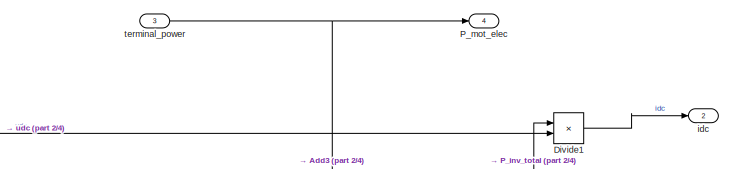
[diagram: Variant Subsystem Inverter/Inverter Analytic/Variant Subsystem/IM_Inverter_IGBT_Analytic - part 1/4, top right region]
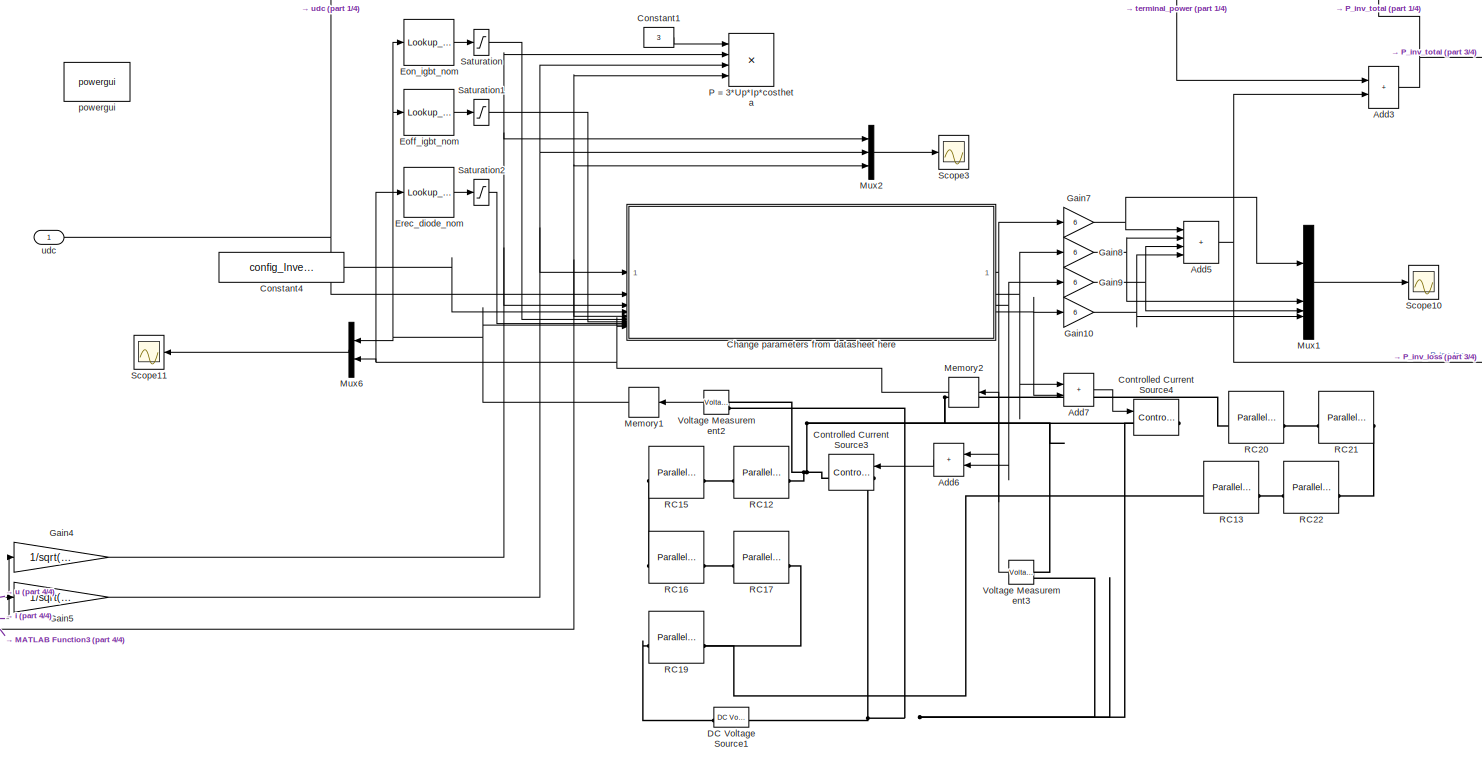
[diagram: Variant Subsystem Inverter/Inverter Analytic/Variant Subsystem/IM_Inverter_IGBT_Analytic - part 2/4, center side, full height]
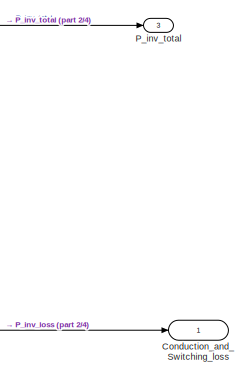
[diagram: Variant Subsystem Inverter/Inverter Analytic/Variant Subsystem/IM_Inverter_IGBT_Analytic - part 3/4, middle right region]
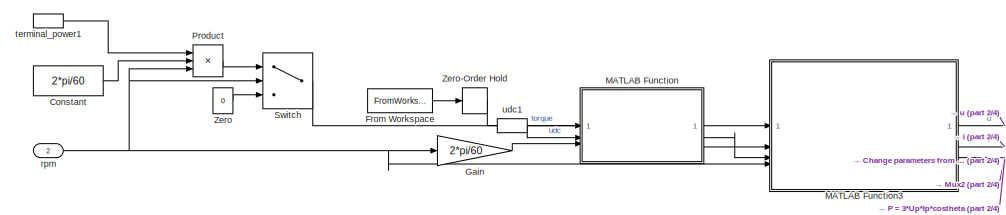
[diagram: Variant Subsystem Inverter/Inverter Analytic/Variant Subsystem/IM_Inverter_IGBT_Analytic - part 4/4, bottom left region]
BLOCK [SubSystem] Variant Subsystem Inverter/Inverter Analytic/Variant Subsystem/IM_Inverter_IGBT_Analytic
  VariantControl = Mode_IM_IGBT
BLOCK [Sum] Variant Subsystem Inverter/Inverter Analytic/Variant Subsystem/IM_Inverter_IGBT_Analytic/Add3
  IconShape = rectangular
BLOCK [Sum] Variant Subsystem Inverter/Inverter Analytic/Variant Subsystem/IM_Inverter_IGBT_Analytic/Add5
  IconShape = rectangular
  Inputs = ++++
BLOCK [Sum] Variant Subsystem Inverter/Inverter Analytic/Variant Subsystem/IM_Inverter_IGBT_Analytic/Add6
  IconShape = rectangular
BLOCK [Sum] Variant Subsystem Inverter/Inverter Analytic/Variant Subsystem/IM_Inverter_IGBT_Analytic/Add7
  IconShape = rectangular
BLOCK [SubSystem] Variant Subsystem Inverter/Inverter Analytic/Variant Subsystem/IM_Inverter_IGBT_Analytic/Change parameters from datasheet here
  ErrorFcn = Stateflow.Translate.translate
  PermitHierarchicalResolution = ExplicitOnly
  SFBlockType = MATLAB Function
  TreatAsAtomicUnit = on
BLOCK [Demux] Variant Subsystem Inverter/Inverter Analytic/Variant Subsystem/IM_Inverter_IGBT_Analytic/Change parameters from datasheet here/ Demux 
  Outputs = 1
BLOCK [S-Function] Variant Subsystem Inverter/Inverter Analytic/Variant Subsystem/IM_Inverter_IGBT_Analytic/Change parameters from datasheet here/ SFunction 
  EnableBusSupport = off
  FunctionName = sf_sfun
  PortCounts = [10 5]
  SFcnIsStateOwnerBlock = off
  SFunctionDeploymentMode = off
  Tag = Stateflow S-Function 2
BLOCK [Terminator] Variant Subsystem Inverter/Inverter Analytic/Variant Subsystem/IM_Inverter_IGBT_Analytic/Change parameters from datasheet here/ Terminator 
BLOCK [Outport] Variant Subsystem Inverter/Inverter Analytic/Variant Subsystem/IM_Inverter_IGBT_Analytic/Change parameters from datasheet here/CPloss_diode
  Port = 2
  VectorParamsAs1DForOutWhenUnconnected = off
BLOCK [Outport] Variant Subsystem Inverter/Inverter Analytic/Variant Subsystem/IM_Inverter_IGBT_Analytic/Change parameters from datasheet here/CPloss_igbt
  VectorParamsAs1DForOutWhenUnconnected = off
BLOCK [Inport] Variant Subsystem Inverter/Inverter Analytic/Variant Subsystem/IM_Inverter_IGBT_Analytic/Change parameters from datasheet here/Eoff_igbt_nom
  Port = 7
BLOCK [Inport] Variant Subsystem Inverter/Inverter Analytic/Variant Subsystem/IM_Inverter_IGBT_Analytic/Change parameters from datasheet here/Eon_igbt_nom
  Port = 6
BLOCK [Inport] Variant Subsystem Inverter/Inverter Analytic/Variant Subsystem/IM_Inverter_IGBT_Analytic/Change parameters from datasheet here/Erec_diode_nom
  Port = 8
BLOCK [Outport] Variant Subsystem Inverter/Inverter Analytic/Variant Subsystem/IM_Inverter_IGBT_Analytic/Change parameters from datasheet here/SPloss_diode
  Port = 4
  VectorParamsAs1DForOutWhenUnconnected = off
BLOCK [Outport] Variant Subsystem Inverter/Inverter Analytic/Variant Subsystem/IM_Inverter_IGBT_Analytic/Change parameters from datasheet here/SPloss_igbt
  Port = 3
  VectorParamsAs1DForOutWhenUnconnected = off
BLOCK [Inport] Variant Subsystem Inverter/Inverter Analytic/Variant Subsystem/IM_Inverter_IGBT_Analytic/Change parameters from datasheet here/T_diode
  Port = 10
BLOCK [Inport] Variant Subsystem Inverter/Inverter Analytic/Variant Subsystem/IM_Inverter_IGBT_Analytic/Change parameters from datasheet here/T_igbt
  Port = 9
BLOCK [Inport] Variant Subsystem Inverter/Inverter Analytic/Variant Subsystem/IM_Inverter_IGBT_Analytic/Change parameters from datasheet here/costheta
  Port = 5
BLOCK [Inport] Variant Subsystem Inverter/Inverter Analytic/Variant Subsystem/IM_Inverter_IGBT_Analytic/Change parameters from datasheet here/fs
  Port = 4
BLOCK [Inport] Variant Subsystem Inverter/Inverter Analytic/Variant Subsystem/IM_Inverter_IGBT_Analytic/Change parameters from datasheet here/ic
BLOCK [Inport] Variant Subsystem Inverter/Inverter Analytic/Variant Subsystem/IM_Inverter_IGBT_Analytic/Change parameters from datasheet here/udc
  Port = 2
BLOCK [Inport] Variant Subsystem Inverter/Inverter Analytic/Variant Subsystem/IM_Inverter_IGBT_Analytic/Change parameters from datasheet here/up
  Port = 3
BLOCK [Outport] Variant Subsystem Inverter/Inverter Analytic/Variant Subsystem/IM_Inverter_IGBT_Analytic/Conduction_and_Switching_loss
BLOCK [Constant] Variant Subsystem Inverter/Inverter Analytic/Variant Subsystem/IM_Inverter_IGBT_Analytic/Constant
  Value = 2*pi/60
BLOCK [Constant] Variant Subsystem Inverter/Inverter Analytic/Variant Subsystem/IM_Inverter_IGBT_Analytic/Constant1
  Value = 3
BLOCK [Constant] Variant Subsystem Inverter/Inverter Analytic/Variant Subsystem/IM_Inverter_IGBT_Analytic/Constant4
  Value = config_Inverter.fswitch
BLOCK [Reference] Variant Subsystem Inverter/Inverter Analytic/Variant Subsystem/IM_Inverter_IGBT_Analytic/Controlled Current Source3  REF=spsControlledCurrentSourceLib/Controlled Current Source
  LibrarySourceBlock = sps_lib/Sources/Controlled Current Source
  NameLocation = top
  SourceBlock = spsControlledCurrentSourceLib/Controlled Current Source
  SourceType = Controlled Current Source
BLOCK [Reference] Variant Subsystem Inverter/Inverter Analytic/Variant Subsystem/IM_Inverter_IGBT_Analytic/Controlled Current Source4  REF=spsControlledCurrentSourceLib/Controlled Current Source
  LibrarySourceBlock = sps_lib/Sources/Controlled Current Source
  NameLocation = top
  SourceBlock = spsControlledCurrentSourceLib/Controlled Current Source
  SourceType = Controlled Current Source
BLOCK [Reference] Variant Subsystem Inverter/Inverter Analytic/Variant Subsystem/IM_Inverter_IGBT_Analytic/DC Voltage Source1  REF=spsDCVoltageSourceLib/DC Voltage Source
  LibrarySourceBlock = sps_lib/Sources/DC Voltage Source
  NameLocation = top
  SourceBlock = spsDCVoltageSourceLib/DC Voltage Source
  SourceType = DC Voltage Source
BLOCK [Product] Variant Subsystem Inverter/Inverter Analytic/Variant Subsystem/IM_Inverter_IGBT_Analytic/Divide1
  Inputs = */
BLOCK [Lookup_n-D] Variant Subsystem Inverter/Inverter Analytic/Variant Subsystem/IM_Inverter_IGBT_Analytic/Eoff_igbt_nom
  BreakpointsForDimension1 = [25, 150, 175]
  InputPortMap = u0
  InternalRulePriority = Speed
  NumberOfTableDimensions = 1
  RndMeth = Simplest
  Table = [23.5*1e-3,  29*1e-3,  30*1e-3]
BLOCK [Lookup_n-D] Variant Subsystem Inverter/Inverter Analytic/Variant Subsystem/IM_Inverter_IGBT_Analytic/Eon_igbt_nom
  BreakpointsForDimension1 = [25, 150, 175]
  InputPortMap = u0
  InternalRulePriority = Speed
  NumberOfTableDimensions = 1
  RndMeth = Simplest
  Table = [13.5*1e-3,  17.5*1e-3,  18*1e-3]
BLOCK [Lookup_n-D] Variant Subsystem Inverter/Inverter Analytic/Variant Subsystem/IM_Inverter_IGBT_Analytic/Erec_diode_nom
  BreakpointsForDimension1 = [25, 150, 175]
  InputPortMap = u0
  InternalRulePriority = Speed
  NumberOfTableDimensions = 1
  RndMeth = Simplest
  Table = [7*1e-3,  13*1e-3,  15*1e-3]
BLOCK [FromWorkspace] Variant Subsystem Inverter/Inverter Analytic/Variant Subsystem/IM_Inverter_IGBT_Analytic/From Workspace
  VariableName = [dc.time, dc.time]
BLOCK [Gain] Variant Subsystem Inverter/Inverter Analytic/Variant Subsystem/IM_Inverter_IGBT_Analytic/Gain
  Gain = 2*pi/60
BLOCK [Gain] Variant Subsystem Inverter/Inverter Analytic/Variant Subsystem/IM_Inverter_IGBT_Analytic/Gain10
  Gain = 6
BLOCK [Gain] Variant Subsystem Inverter/Inverter Analytic/Variant Subsystem/IM_Inverter_IGBT_Analytic/Gain4
  Gain = 1/sqrt(2)
BLOCK [Gain] Variant Subsystem Inverter/Inverter Analytic/Variant Subsystem/IM_Inverter_IGBT_Analytic/Gain5
  Gain = 1/sqrt(2)
BLOCK [Gain] Variant Subsystem Inverter/Inverter Analytic/Variant Subsystem/IM_Inverter_IGBT_Analytic/Gain7
  Gain = 6
BLOCK [Gain] Variant Subsystem Inverter/Inverter Analytic/Variant Subsystem/IM_Inverter_IGBT_Analytic/Gain8
  Gain = 6
BLOCK [Gain] Variant Subsystem Inverter/Inverter Analytic/Variant Subsystem/IM_Inverter_IGBT_Analytic/Gain9
  Gain = 6
BLOCK [SubSystem] Variant Subsystem Inverter/Inverter Analytic/Variant Subsystem/IM_Inverter_IGBT_Analytic/MATLAB Function
  ErrorFcn = Stateflow.Translate.translate
  LibrarySourceBlock = simulink/User-Defined\nFunctions/MATLAB Function
  PermitHierarchicalResolution = ExplicitOnly
  SFBlockType = MATLAB Function
  TreatAsAtomicUnit = on
BLOCK [Demux] Variant Subsystem Inverter/Inverter Analytic/Variant Subsystem/IM_Inverter_IGBT_Analytic/MATLAB Function/ Demux 
  Outputs = 1
BLOCK [S-Function] Variant Subsystem Inverter/Inverter Analytic/Variant Subsystem/IM_Inverter_IGBT_Analytic/MATLAB Function/ SFunction 
  EnableBusSupport = off
  FunctionName = sf_sfun
  PortCounts = [3 3]
  SFcnIsStateOwnerBlock = off
  SFunctionDeploymentMode = off
  Tag = Stateflow S-Function 26
BLOCK [Terminator] Variant Subsystem Inverter/Inverter Analytic/Variant Subsystem/IM_Inverter_IGBT_Analytic/MATLAB Function/ Terminator 
BLOCK [Inport] Variant Subsystem Inverter/Inverter Analytic/Variant Subsystem/IM_Inverter_IGBT_Analytic/MATLAB Function/t
BLOCK [Outport] Variant Subsystem Inverter/Inverter Analytic/Variant Subsystem/IM_Inverter_IGBT_Analytic/MATLAB Function/u_sd
  Port = 2
BLOCK [Outport] Variant Subsystem Inverter/Inverter Analytic/Variant Subsystem/IM_Inverter_IGBT_Analytic/MATLAB Function/u_sq
BLOCK [Inport] Variant Subsystem Inverter/Inverter Analytic/Variant Subsystem/IM_Inverter_IGBT_Analytic/MATLAB Function/udc
  Port = 2
BLOCK [Inport] Variant Subsystem Inverter/Inverter Analytic/Variant Subsystem/IM_Inverter_IGBT_Analytic/MATLAB Function/w_mech
  Port = 3
BLOCK [SubSystem] Variant Subsystem Inverter/Inverter Analytic/Variant Subsystem/IM_Inverter_IGBT_Analytic/MATLAB Function3
  ErrorFcn = Stateflow.Translate.translate
  LibrarySourceBlock = simulink/User-Defined\nFunctions/MATLAB Function
  PermitHierarchicalResolution = ExplicitOnly
  SFBlockType = MATLAB Function
  TreatAsAtomicUnit = on
BLOCK [Demux] Variant Subsystem Inverter/Inverter Analytic/Variant Subsystem/IM_Inverter_IGBT_Analytic/MATLAB Function3/ Demux 
  Outputs = 1
BLOCK [S-Function] Variant Subsystem Inverter/Inverter Analytic/Variant Subsystem/IM_Inverter_IGBT_Analytic/MATLAB Function3/ SFunction 
  EnableBusSupport = off
  FunctionName = sf_sfun
  PortCounts = [4 4]
  SFcnIsStateOwnerBlock = off
  SFunctionDeploymentMode = off
  Tag = Stateflow S-Function 9
BLOCK [Terminator] Variant Subsystem Inverter/Inverter Analytic/Variant Subsystem/IM_Inverter_IGBT_Analytic/MATLAB Function3/ Terminator 
BLOCK [Inport] Variant Subsystem Inverter/Inverter Analytic/Variant Subsystem/IM_Inverter_IGBT_Analytic/MATLAB Function3/T_m
BLOCK [Outport] Variant Subsystem Inverter/Inverter Analytic/Variant Subsystem/IM_Inverter_IGBT_Analytic/MATLAB Function3/costheta
  Port = 3
BLOCK [Outport] Variant Subsystem Inverter/Inverter Analytic/Variant Subsystem/IM_Inverter_IGBT_Analytic/MATLAB Function3/i
  Port = 2
BLOCK [Inport] Variant Subsystem Inverter/Inverter Analytic/Variant Subsystem/IM_Inverter_IGBT_Analytic/MATLAB Function3/n
  Port = 4
BLOCK [Outport] Variant Subsystem Inverter/Inverter Analytic/Variant Subsystem/IM_Inverter_IGBT_Analytic/MATLAB Function3/u
BLOCK [Inport] Variant Subsystem Inverter/Inverter Analytic/Variant Subsystem/IM_Inverter_IGBT_Analytic/MATLAB Function3/usd
  Port = 3
BLOCK [Inport] Variant Subsystem Inverter/Inverter Analytic/Variant Subsystem/IM_Inverter_IGBT_Analytic/MATLAB Function3/usq
  Port = 2
BLOCK [Memory] Variant Subsystem Inverter/Inverter Analytic/Variant Subsystem/IM_Inverter_IGBT_Analytic/Memory1
  InheritSampleTime = on
  InitialCondition = 25
  NameLocation = top
BLOCK [Memory] Variant Subsystem Inverter/Inverter Analytic/Variant Subsystem/IM_Inverter_IGBT_Analytic/Memory2
  InheritSampleTime = on
  InitialCondition = 25
  NameLocation = top
BLOCK [Mux] Variant Subsystem Inverter/Inverter Analytic/Variant Subsystem/IM_Inverter_IGBT_Analytic/Mux1
  DisplayOption = bar
BLOCK [Mux] Variant Subsystem Inverter/Inverter Analytic/Variant Subsystem/IM_Inverter_IGBT_Analytic/Mux2
  DisplayOption = bar
  Inputs = 3
BLOCK [Mux] Variant Subsystem Inverter/Inverter Analytic/Variant Subsystem/IM_Inverter_IGBT_Analytic/Mux6
  DisplayOption = bar
  Inputs = 2
BLOCK [Product] Variant Subsystem Inverter/Inverter Analytic/Variant Subsystem/IM_Inverter_IGBT_Analytic/P = 3*Up*Ip*costheta
  Inputs = 4
BLOCK [Outport] Variant Subsystem Inverter/Inverter Analytic/Variant Subsystem/IM_Inverter_IGBT_Analytic/P_inv_total
  Port = 3
BLOCK [Outport] Variant Subsystem Inverter/Inverter Analytic/Variant Subsystem/IM_Inverter_IGBT_Analytic/P_mot_elec
  Port = 4
BLOCK [Product] Variant Subsystem Inverter/Inverter Analytic/Variant Subsystem/IM_Inverter_IGBT_Analytic/Product
  Inputs = *//
BLOCK [Reference] Variant Subsystem Inverter/Inverter Analytic/Variant Subsystem/IM_Inverter_IGBT_Analytic/RC12  REF=spsParallelRLCBranchLib/Parallel RLC Branch
  AttributesFormatString = \n
  LibrarySourceBlock = sps_lib/Passives/Parallel RLC Branch
  SourceBlock = spsParallelRLCBranchLib/Parallel RLC Branch
  SourceType = Parallel RLC Branch
BLOCK [Reference] Variant Subsystem Inverter/Inverter Analytic/Variant Subsystem/IM_Inverter_IGBT_Analytic/RC13  REF=spsParallelRLCBranchLib/Parallel RLC Branch
  AttributesFormatString = \n
  LibrarySourceBlock = sps_lib/Passives/Parallel RLC Branch
  SourceBlock = spsParallelRLCBranchLib/Parallel RLC Branch
  SourceType = Parallel RLC Branch
BLOCK [Reference] Variant Subsystem Inverter/Inverter Analytic/Variant Subsystem/IM_Inverter_IGBT_Analytic/RC15  REF=spsParallelRLCBranchLib/Parallel RLC Branch
  AttributesFormatString = \n
  LibrarySourceBlock = sps_lib/Passives/Parallel RLC Branch
  SourceBlock = spsParallelRLCBranchLib/Parallel RLC Branch
  SourceType = Parallel RLC Branch
BLOCK [Reference] Variant Subsystem Inverter/Inverter Analytic/Variant Subsystem/IM_Inverter_IGBT_Analytic/RC16  REF=spsParallelRLCBranchLib/Parallel RLC Branch
  AttributesFormatString = \n
  LibrarySourceBlock = sps_lib/Passives/Parallel RLC Branch
  SourceBlock = spsParallelRLCBranchLib/Parallel RLC Branch
  SourceType = Parallel RLC Branch
BLOCK [Reference] Variant Subsystem Inverter/Inverter Analytic/Variant Subsystem/IM_Inverter_IGBT_Analytic/RC17  REF=spsParallelRLCBranchLib/Parallel RLC Branch
  AttributesFormatString = \n
  LibrarySourceBlock = sps_lib/Passives/Parallel RLC Branch
  SourceBlock = spsParallelRLCBranchLib/Parallel RLC Branch
  SourceType = Parallel RLC Branch
BLOCK [Reference] Variant Subsystem Inverter/Inverter Analytic/Variant Subsystem/IM_Inverter_IGBT_Analytic/RC19  REF=spsParallelRLCBranchLib/Parallel RLC Branch
  AttributesFormatString = \n
  LibrarySourceBlock = sps_lib/Passives/Parallel RLC Branch
  SourceBlock = spsParallelRLCBranchLib/Parallel RLC Branch
  SourceType = Parallel RLC Branch
BLOCK [Reference] Variant Subsystem Inverter/Inverter Analytic/Variant Subsystem/IM_Inverter_IGBT_Analytic/RC20  REF=spsParallelRLCBranchLib/Parallel RLC Branch
  AttributesFormatString = \n
  LibrarySourceBlock = sps_lib/Passives/Parallel RLC Branch
  SourceBlock = spsParallelRLCBranchLib/Parallel RLC Branch
  SourceType = Parallel RLC Branch
BLOCK [Reference] Variant Subsystem Inverter/Inverter Analytic/Variant Subsystem/IM_Inverter_IGBT_Analytic/RC21  REF=spsParallelRLCBranchLib/Parallel RLC Branch
  AttributesFormatString = \n
  LibrarySourceBlock = sps_lib/Passives/Parallel RLC Branch
  SourceBlock = spsParallelRLCBranchLib/Parallel RLC Branch
  SourceType = Parallel RLC Branch
BLOCK [Reference] Variant Subsystem Inverter/Inverter Analytic/Variant Subsystem/IM_Inverter_IGBT_Analytic/RC22  REF=spsParallelRLCBranchLib/Parallel RLC Branch
  AttributesFormatString = \n
  LibrarySourceBlock = sps_lib/Passives/Parallel RLC Branch
  SourceBlock = spsParallelRLCBranchLib/Parallel RLC Branch
  SourceType = Parallel RLC Branch
BLOCK [Saturate] Variant Subsystem Inverter/Inverter Analytic/Variant Subsystem/IM_Inverter_IGBT_Analytic/Saturation
  LowerLimit = 13.5*1e-3
  UpperLimit = 18*1e-3
BLOCK [Saturate] Variant Subsystem Inverter/Inverter Analytic/Variant Subsystem/IM_Inverter_IGBT_Analytic/Saturation1
  LowerLimit = 23.5*1e-3
  UpperLimit = 30*1e-3
BLOCK [Saturate] Variant Subsystem Inverter/Inverter Analytic/Variant Subsystem/IM_Inverter_IGBT_Analytic/Saturation2
  LowerLimit = 7*1e-3
  UpperLimit = 15*1e-3
BLOCK [Scope] Variant Subsystem Inverter/Inverter Analytic/Variant Subsystem/IM_Inverter_IGBT_Analytic/Scope10
  Floating = off
  NumInputPorts = 1
  ScopeSpecificationString = Simulink.scopes.TimeScopeBlockCfg('CurrentConfiguration', extmgr.ConfigurationSet(extmgr.Configuration('Core','General UI',true),extmgr.Configuration('Core','Source UI',true),extmgr.Configuration('Sources','WiredSimulink',true,'DataLogging',true,'DataLoggingVariableName','ScopeData1','DataLoggingSaveFormat','Array','DataLoggingDecimation','1','DataLoggingDecimateData',true),extmgr.Configuration('V...<+1750ch>
BLOCK [Scope] Variant Subsystem Inverter/Inverter Analytic/Variant Subsystem/IM_Inverter_IGBT_Analytic/Scope11
  Floating = off
  NumInputPorts = 1
  ScopeSpecificationString = Simulink.scopes.TimeScopeBlockCfg('CurrentConfiguration', extmgr.ConfigurationSet(extmgr.Configuration('Core','General UI',true),extmgr.Configuration('Core','Source UI',true),extmgr.Configuration('Sources','WiredSimulink',true,'DataLogging',true,'DataLoggingVariableName','ScopeData2','DataLoggingSaveFormat','Array','DataLoggingDecimation','1','DataLoggingDecimateData',true),extmgr.Configuration('V...<+1698ch>
BLOCK [Scope] Variant Subsystem Inverter/Inverter Analytic/Variant Subsystem/IM_Inverter_IGBT_Analytic/Scope3
  Floating = off
  NumInputPorts = 1
  ScopeSpecificationString = Simulink.scopes.TimeScopeBlockCfg('CurrentConfiguration', extmgr.ConfigurationSet(extmgr.Configuration('Core','General UI',true),extmgr.Configuration('Core','Source UI',true),extmgr.Configuration('Sources','WiredSimulink',true,'DataLogging',true,'DataLoggingVariableName','ScopeData3','DataLoggingSaveFormat','Array','DataLoggingDecimation','1','DataLoggingDecimateData',true),extmgr.Configuration('V...<+1817ch>
BLOCK [Switch] Variant Subsystem Inverter/Inverter Analytic/Variant Subsystem/IM_Inverter_IGBT_Analytic/Switch
  Criteria = u2 ~= 0
  InputSameDT = off
  SaturateOnIntegerOverflow = off
BLOCK [Reference] Variant Subsystem Inverter/Inverter Analytic/Variant Subsystem/IM_Inverter_IGBT_Analytic/Voltage Measurement2  REF=spsVoltageMeasurementLib/Voltage Measurement
  LibrarySourceBlock = sps_lib/Sensors and Measurements/Voltage Measurement
  SourceBlock = spsVoltageMeasurementLib/Voltage Measurement
  SourceType = Voltage Measurement
  UserDataPersistent = on
BLOCK [Reference] Variant Subsystem Inverter/Inverter Analytic/Variant Subsystem/IM_Inverter_IGBT_Analytic/Voltage Measurement3  REF=spsVoltageMeasurementLib/Voltage Measurement
  LibrarySourceBlock = sps_lib/Sensors and Measurements/Voltage Measurement
  SourceBlock = spsVoltageMeasurementLib/Voltage Measurement
  SourceType = Voltage Measurement
  UserDataPersistent = on
BLOCK [Constant] Variant Subsystem Inverter/Inverter Analytic/Variant Subsystem/IM_Inverter_IGBT_Analytic/Zero
  OutDataTypeStr = Inherit: Inherit via back propagation
  Value = 0
BLOCK [ZeroOrderHold] Variant Subsystem Inverter/Inverter Analytic/Variant Subsystem/IM_Inverter_IGBT_Analytic/Zero-Order Hold
  SampleTime = -1
BLOCK [Outport] Variant Subsystem Inverter/Inverter Analytic/Variant Subsystem/IM_Inverter_IGBT_Analytic/idc
  Port = 2
BLOCK [Reference] Variant Subsystem Inverter/Inverter Analytic/Variant Subsystem/IM_Inverter_IGBT_Analytic/powergui  REF=spspowerguiLib/powergui
  Priority = 1
  SourceBlock = spspowerguiLib/powergui
  SourceType = PSB option menu block
BLOCK [Inport] Variant Subsystem Inverter/Inverter Analytic/Variant Subsystem/IM_Inverter_IGBT_Analytic/rpm
  Port = 2
BLOCK [Inport] Variant Subsystem Inverter/Inverter Analytic/Variant Subsystem/IM_Inverter_IGBT_Analytic/terminal_power
  Port = 3
BLOCK [InportShadow] Variant Subsystem Inverter/Inverter Analytic/Variant Subsystem/IM_Inverter_IGBT_Analytic/terminal_power1
  Port = 3
BLOCK [Inport] Variant Subsystem Inverter/Inverter Analytic/Variant Subsystem/IM_Inverter_IGBT_Analytic/udc
BLOCK [InportShadow] Variant Subsystem Inverter/Inverter Analytic/Variant Subsystem/IM_Inverter_IGBT_Analytic/udc1
BLOCK [SubSystem] Variant Subsystem Inverter/Inverter Analytic/Variant Subsystem/IM_Inverter_SiC-MOSFET_Analytic
  VariantControl = Mode_IM_MOSFET
BLOCK [Sum] Variant Subsystem Inverter/Inverter Analytic/Variant Subsystem/IM_Inverter_SiC-MOSFET_Analytic/Add
  IconShape = rectangular
  Inputs = ++++
BLOCK [Sum] Variant Subsystem Inverter/Inverter Analytic/Variant Subsystem/IM_Inverter_SiC-MOSFET_Analytic/Add1
  IconShape = rectangular
BLOCK [Sum] Variant Subsystem Inverter/Inverter Analytic/Variant Subsystem/IM_Inverter_SiC-MOSFET_Analytic/Add2
  IconShape = rectangular
BLOCK [Sum] Variant Subsystem Inverter/Inverter Analytic/Variant Subsystem/IM_Inverter_SiC-MOSFET_Analytic/Add3
  IconShape = rectangular
BLOCK [SubSystem] Variant Subsystem Inverter/Inverter Analytic/Variant Subsystem/IM_Inverter_SiC-MOSFET_Analytic/C2M0025120D
  ErrorFcn = Stateflow.Translate.translate
  PermitHierarchicalResolution = ExplicitOnly
  SFBlockType = MATLAB Function
  TreatAsAtomicUnit = on
BLOCK [Demux] Variant Subsystem Inverter/Inverter Analytic/Variant Subsystem/IM_Inverter_SiC-MOSFET_Analytic/C2M0025120D/ Demux 
  Outputs = 1
BLOCK [S-Function] Variant Subsystem Inverter/Inverter Analytic/Variant Subsystem/IM_Inverter_SiC-MOSFET_Analytic/C2M0025120D/ SFunction 
  EnableBusSupport = on
  FunctionName = sf_sfun
  PortCounts = [7 5]
  SFcnIsStateOwnerBlock = off
  SFunctionDeploymentMode = off
  Tag = Stateflow S-Function 14
BLOCK [Terminator] Variant Subsystem Inverter/Inverter Analytic/Variant Subsystem/IM_Inverter_SiC-MOSFET_Analytic/C2M0025120D/ Terminator 
BLOCK [Outport] Variant Subsystem Inverter/Inverter Analytic/Variant Subsystem/IM_Inverter_SiC-MOSFET_Analytic/C2M0025120D/CPloss_SiC
  VectorParamsAs1DForOutWhenUnconnected = off
BLOCK [Outport] Variant Subsystem Inverter/Inverter Analytic/Variant Subsystem/IM_Inverter_SiC-MOSFET_Analytic/C2M0025120D/CPloss_diode
  Port = 2
  VectorParamsAs1DForOutWhenUnconnected = off
BLOCK [Outport] Variant Subsystem Inverter/Inverter Analytic/Variant Subsystem/IM_Inverter_SiC-MOSFET_Analytic/C2M0025120D/SPloss_SiC
  Port = 3
  VectorParamsAs1DForOutWhenUnconnected = off
BLOCK [Outport] Variant Subsystem Inverter/Inverter Analytic/Variant Subsystem/IM_Inverter_SiC-MOSFET_Analytic/C2M0025120D/SPloss_diode
  Port = 4
  VectorParamsAs1DForOutWhenUnconnected = off
BLOCK [Inport] Variant Subsystem Inverter/Inverter Analytic/Variant Subsystem/IM_Inverter_SiC-MOSFET_Analytic/C2M0025120D/T_diode
  Port = 7
BLOCK [Inport] Variant Subsystem Inverter/Inverter Analytic/Variant Subsystem/IM_Inverter_SiC-MOSFET_Analytic/C2M0025120D/T_mosfet
  Port = 6
BLOCK [Inport] Variant Subsystem Inverter/Inverter Analytic/Variant Subsystem/IM_Inverter_SiC-MOSFET_Analytic/C2M0025120D/costheta
  Port = 5
BLOCK [Inport] Variant Subsystem Inverter/Inverter Analytic/Variant Subsystem/IM_Inverter_SiC-MOSFET_Analytic/C2M0025120D/fs
  Port = 4
BLOCK [Inport] Variant Subsystem Inverter/Inverter Analytic/Variant Subsystem/IM_Inverter_SiC-MOSFET_Analytic/C2M0025120D/io
BLOCK [Inport] Variant Subsystem Inverter/Inverter Analytic/Variant Subsystem/IM_Inverter_SiC-MOSFET_Analytic/C2M0025120D/udc
  Port = 2
BLOCK [Inport] Variant Subsystem Inverter/Inverter Analytic/Variant Subsystem/IM_Inverter_SiC-MOSFET_Analytic/C2M0025120D/up
  Port = 3
BLOCK [Outport] Variant Subsystem Inverter/Inverter Analytic/Variant Subsystem/IM_Inverter_SiC-MOSFET_Analytic/Conduction_and_Switching_loss
BLOCK [Constant] Variant Subsystem Inverter/Inverter Analytic/Variant Subsystem/IM_Inverter_SiC-MOSFET_Analytic/Constant
  Value = 2*pi/60
BLOCK [Constant] Variant Subsystem Inverter/Inverter Analytic/Variant Subsystem/IM_Inverter_SiC-MOSFET_Analytic/Constant1
  Value = config_Inverter.fswitch
BLOCK [Reference] Variant Subsystem Inverter/Inverter Analytic/Variant Subsystem/IM_Inverter_SiC-MOSFET_Analytic/Controlled Current Source1  REF=spsControlledCurrentSourceLib/Controlled Current Source
  LibrarySourceBlock = sps_lib/Sources/Controlled Current Source
  NameLocation = top
  SourceBlock = spsControlledCurrentSourceLib/Controlled Current Source
  SourceType = Controlled Current Source
BLOCK [Reference] Variant Subsystem Inverter/Inverter Analytic/Variant Subsystem/IM_Inverter_SiC-MOSFET_Analytic/Controlled Current Source2  REF=spsControlledCurrentSourceLib/Controlled Current Source
  LibrarySourceBlock = sps_lib/Sources/Controlled Current Source
  NameLocation = top
  SourceBlock = spsControlledCurrentSourceLib/Controlled Current Source
  SourceType = Controlled Current Source
BLOCK [Reference] Variant Subsystem Inverter/Inverter Analytic/Variant Subsystem/IM_Inverter_SiC-MOSFET_Analytic/DC Voltage Source  REF=spsDCVoltageSourceLib/DC Voltage Source
  LibrarySourceBlock = sps_lib/Sources/DC Voltage Source
  NameLocation = top
  SourceBlock = spsDCVoltageSourceLib/DC Voltage Source
  SourceType = DC Voltage Source
BLOCK [Product] Variant Subsystem Inverter/Inverter Analytic/Variant Subsystem/IM_Inverter_SiC-MOSFET_Analytic/Divide1
  Inputs = */
BLOCK [FromWorkspace] Variant Subsystem Inverter/Inverter Analytic/Variant Subsystem/IM_Inverter_SiC-MOSFET_Analytic/From Workspace
  VariableName = [dc.time, dc.time]
BLOCK [Gain] Variant Subsystem Inverter/Inverter Analytic/Variant Subsystem/IM_Inverter_SiC-MOSFET_Analytic/Gain
  Gain = 6
BLOCK [Gain] Variant Subsystem Inverter/Inverter Analytic/Variant Subsystem/IM_Inverter_SiC-MOSFET_Analytic/Gain1
  Gain = 6
BLOCK [Gain] Variant Subsystem Inverter/Inverter Analytic/Variant Subsystem/IM_Inverter_SiC-MOSFET_Analytic/Gain2
  Gain = 6
BLOCK [Gain] Variant Subsystem Inverter/Inverter Analytic/Variant Subsystem/IM_Inverter_SiC-MOSFET_Analytic/Gain3
  Gain = 6
BLOCK [Gain] Variant Subsystem Inverter/Inverter Analytic/Variant Subsystem/IM_Inverter_SiC-MOSFET_Analytic/Gain4
  Gain = 1/sqrt(2)
BLOCK [Gain] Variant Subsystem Inverter/Inverter Analytic/Variant Subsystem/IM_Inverter_SiC-MOSFET_Analytic/Gain5
  Gain = 1/sqrt(2)
BLOCK [Gain] Variant Subsystem Inverter/Inverter Analytic/Variant Subsystem/IM_Inverter_SiC-MOSFET_Analytic/Gain7
  Gain = 2*pi/60
BLOCK [SubSystem] Variant Subsystem Inverter/Inverter Analytic/Variant Subsystem/IM_Inverter_SiC-MOSFET_Analytic/MATLAB Function
  ErrorFcn = Stateflow.Translate.translate
  LibrarySourceBlock = simulink/User-Defined\nFunctions/MATLAB Function
  PermitHierarchicalResolution = ExplicitOnly
  SFBlockType = MATLAB Function
  TreatAsAtomicUnit = on
BLOCK [Demux] Variant Subsystem Inverter/Inverter Analytic/Variant Subsystem/IM_Inverter_SiC-MOSFET_Analytic/MATLAB Function/ Demux 
  Outputs = 1
BLOCK [S-Function] Variant Subsystem Inverter/Inverter Analytic/Variant Subsystem/IM_Inverter_SiC-MOSFET_Analytic/MATLAB Function/ SFunction 
  EnableBusSupport = on
  FunctionName = sf_sfun
  PortCounts = [3 3]
  SFcnIsStateOwnerBlock = off
  SFunctionDeploymentMode = off
  Tag = Stateflow S-Function 10
BLOCK [Terminator] Variant Subsystem Inverter/Inverter Analytic/Variant Subsystem/IM_Inverter_SiC-MOSFET_Analytic/MATLAB Function/ Terminator 
BLOCK [Inport] Variant Subsystem Inverter/Inverter Analytic/Variant Subsystem/IM_Inverter_SiC-MOSFET_Analytic/MATLAB Function/t
BLOCK [Outport] Variant Subsystem Inverter/Inverter Analytic/Variant Subsystem/IM_Inverter_SiC-MOSFET_Analytic/MATLAB Function/u_sd
  Port = 2
BLOCK [Outport] Variant Subsystem Inverter/Inverter Analytic/Variant Subsystem/IM_Inverter_SiC-MOSFET_Analytic/MATLAB Function/u_sq
BLOCK [Inport] Variant Subsystem Inverter/Inverter Analytic/Variant Subsystem/IM_Inverter_SiC-MOSFET_Analytic/MATLAB Function/udc
  Port = 2
BLOCK [Inport] Variant Subsystem Inverter/Inverter Analytic/Variant Subsystem/IM_Inverter_SiC-MOSFET_Analytic/MATLAB Function/w_mech
  Port = 3
BLOCK [SubSystem] Variant Subsystem Inverter/Inverter Analytic/Variant Subsystem/IM_Inverter_SiC-MOSFET_Analytic/MATLAB Function3
  ErrorFcn = Stateflow.Translate.translate
  LibrarySourceBlock = simulink/User-Defined\nFunctions/MATLAB Function
  PermitHierarchicalResolution = ExplicitOnly
  SFBlockType = MATLAB Function
  TreatAsAtomicUnit = on
BLOCK [Demux] Variant Subsystem Inverter/Inverter Analytic/Variant Subsystem/IM_Inverter_SiC-MOSFET_Analytic/MATLAB Function3/ Demux 
  Outputs = 1
BLOCK [S-Function] Variant Subsystem Inverter/Inverter Analytic/Variant Subsystem/IM_Inverter_SiC-MOSFET_Analytic/MATLAB Function3/ SFunction 
  EnableBusSupport = on
  FunctionName = sf_sfun
  PortCounts = [4 4]
  SFcnIsStateOwnerBlock = off
  SFunctionDeploymentMode = off
  Tag = Stateflow S-Function 17
BLOCK [Terminator] Variant Subsystem Inverter/Inverter Analytic/Variant Subsystem/IM_Inverter_SiC-MOSFET_Analytic/MATLAB Function3/ Terminator 
BLOCK [Inport] Variant Subsystem Inverter/Inverter Analytic/Variant Subsystem/IM_Inverter_SiC-MOSFET_Analytic/MATLAB Function3/T_m
BLOCK [Outport] Variant Subsystem Inverter/Inverter Analytic/Variant Subsystem/IM_Inverter_SiC-MOSFET_Analytic/MATLAB Function3/costheta
  Port = 3
BLOCK [Outport] Variant Subsystem Inverter/Inverter Analytic/Variant Subsystem/IM_Inverter_SiC-MOSFET_Analytic/MATLAB Function3/i
  Port = 2
BLOCK [Inport] Variant Subsystem Inverter/Inverter Analytic/Variant Subsystem/IM_Inverter_SiC-MOSFET_Analytic/MATLAB Function3/n
  Port = 4
BLOCK [Outport] Variant Subsystem Inverter/Inverter Analytic/Variant Subsystem/IM_Inverter_SiC-MOSFET_Analytic/MATLAB Function3/u
BLOCK [Inport] Variant Subsystem Inverter/Inverter Analytic/Variant Subsystem/IM_Inverter_SiC-MOSFET_Analytic/MATLAB Function3/usd
  Port = 3
BLOCK [Inport] Variant Subsystem Inverter/Inverter Analytic/Variant Subsystem/IM_Inverter_SiC-MOSFET_Analytic/MATLAB Function3/usq
  Port = 2
BLOCK [Memory] Variant Subsystem Inverter/Inverter Analytic/Variant Subsystem/IM_Inverter_SiC-MOSFET_Analytic/Memory3
  InheritSampleTime = on
  InitialCondition = 25
  NameLocation = top
BLOCK [Memory] Variant Subsystem Inverter/Inverter Analytic/Variant Subsystem/IM_Inverter_SiC-MOSFET_Analytic/Memory4
  InheritSampleTime = on
  InitialCondition = 25
  NameLocation = top
BLOCK [Mux] Variant Subsystem Inverter/Inverter Analytic/Variant Subsystem/IM_Inverter_SiC-MOSFET_Analytic/Mux3
  DisplayOption = bar
BLOCK [Mux] Variant Subsystem Inverter/Inverter Analytic/Variant Subsystem/IM_Inverter_SiC-MOSFET_Analytic/Mux4
  DisplayOption = bar
  Inputs = 3
BLOCK [Mux] Variant Subsystem Inverter/Inverter Analytic/Variant Subsystem/IM_Inverter_SiC-MOSFET_Analytic/Mux5
  DisplayOption = bar
  Inputs = 2
BLOCK [Outport] Variant Subsystem Inverter/Inverter Analytic/Variant Subsystem/IM_Inverter_SiC-MOSFET_Analytic/P_inv_total
  Port = 3
BLOCK [Outport] Variant Subsystem Inverter/Inverter Analytic/Variant Subsystem/IM_Inverter_SiC-MOSFET_Analytic/P_mot_elec
  Port = 4
BLOCK [Product] Variant Subsystem Inverter/Inverter Analytic/Variant Subsystem/IM_Inverter_SiC-MOSFET_Analytic/Product
  Inputs = *//
BLOCK [Reference] Variant Subsystem Inverter/Inverter Analytic/Variant Subsystem/IM_Inverter_SiC-MOSFET_Analytic/RC6  REF=spsParallelRLCBranchLib/Parallel RLC Branch
  AttributesFormatString = \n
  LibrarySourceBlock = sps_lib/Passives/Parallel RLC Branch
  SourceBlock = spsParallelRLCBranchLib/Parallel RLC Branch
  SourceType = Parallel RLC Branch
BLOCK [Scope] Variant Subsystem Inverter/Inverter Analytic/Variant Subsystem/IM_Inverter_SiC-MOSFET_Analytic/Scope3
  Floating = off
  NumInputPorts = 1
  ScopeSpecificationString = Simulink.scopes.TimeScopeBlockCfg('CurrentConfiguration', extmgr.ConfigurationSet(extmgr.Configuration('Core','General UI',true),extmgr.Configuration('Core','Source UI',true),extmgr.Configuration('Sources','WiredSimulink',true,'DataLogging',true,'DataLoggingVariableName','ScopeData2','DataLoggingSaveFormat','Array','DataLoggingDecimation','1','DataLoggingDecimateData',true),extmgr.Configuration('V...<+1803ch>
BLOCK [Scope] Variant Subsystem Inverter/Inverter Analytic/Variant Subsystem/IM_Inverter_SiC-MOSFET_Analytic/Scope4
  Floating = off
  NumInputPorts = 1
  ScopeSpecificationString = Simulink.scopes.TimeScopeBlockCfg('CurrentConfiguration', extmgr.ConfigurationSet(extmgr.Configuration('Core','General UI',true),extmgr.Configuration('Core','Source UI',true),extmgr.Configuration('Sources','WiredSimulink',true,'DataLogging',true,'DataLoggingVariableName','ScopeData3','DataLoggingSaveFormat','Array','DataLoggingDecimation','1','DataLoggingDecimateData',true),extmgr.Configuration('V...<+1709ch>
BLOCK [Scope] Variant Subsystem Inverter/Inverter Analytic/Variant Subsystem/IM_Inverter_SiC-MOSFET_Analytic/Scope5
  Floating = off
  NumInputPorts = 1
  ScopeSpecificationString = Simulink.scopes.TimeScopeBlockCfg('CurrentConfiguration', extmgr.ConfigurationSet(extmgr.Configuration('Core','General UI',true),extmgr.Configuration('Core','Source UI',true),extmgr.Configuration('Sources','WiredSimulink',true,'DataLogging',true,'DataLoggingVariableName','ScopeData4','DataLoggingSaveFormat','Array','DataLoggingDecimation','1','DataLoggingDecimateData',true),extmgr.Configuration('V...<+1739ch>
BLOCK [Scope] Variant Subsystem Inverter/Inverter Analytic/Variant Subsystem/IM_Inverter_SiC-MOSFET_Analytic/Scope8
  Floating = off
  NumInputPorts = 1
  ScopeSpecificationString = Simulink.scopes.TimeScopeBlockCfg('CurrentConfiguration', extmgr.ConfigurationSet(extmgr.Configuration('Core','General UI',true),extmgr.Configuration('Core','Source UI',true),extmgr.Configuration('Sources','WiredSimulink',true,'DataLogging',true,'DataLoggingVariableName','ScopeData5','DataLoggingSaveFormat','Array','DataLoggingDecimation','1','DataLoggingDecimateData',true),extmgr.Configuration('V...<+1716ch>
BLOCK [Switch] Variant Subsystem Inverter/Inverter Analytic/Variant Subsystem/IM_Inverter_SiC-MOSFET_Analytic/Switch1
  Criteria = u2 ~= 0
  InputSameDT = off
  SaturateOnIntegerOverflow = off
BLOCK [Reference] Variant Subsystem Inverter/Inverter Analytic/Variant Subsystem/IM_Inverter_SiC-MOSFET_Analytic/Voltage Measurement  REF=spsVoltageMeasurementLib/Voltage Measurement
  LibrarySourceBlock = sps_lib/Sensors and Measurements/Voltage Measurement
  SourceBlock = spsVoltageMeasurementLib/Voltage Measurement
  SourceType = Voltage Measurement
  UserDataPersistent = on
BLOCK [Reference] Variant Subsystem Inverter/Inverter Analytic/Variant Subsystem/IM_Inverter_SiC-MOSFET_Analytic/Voltage Measurement1  REF=spsVoltageMeasurementLib/Voltage Measurement
  LibrarySourceBlock = sps_lib/Sensors and Measurements/Voltage Measurement
  SourceBlock = spsVoltageMeasurementLib/Voltage Measurement
  SourceType = Voltage Measurement
  UserDataPersistent = on
BLOCK [Constant] Variant Subsystem Inverter/Inverter Analytic/Variant Subsystem/IM_Inverter_SiC-MOSFET_Analytic/Zero
  OutDataTypeStr = Inherit: Inherit via back propagation
  Value = 0
BLOCK [ZeroOrderHold] Variant Subsystem Inverter/Inverter Analytic/Variant Subsystem/IM_Inverter_SiC-MOSFET_Analytic/Zero-Order Hold
  SampleTime = -1
BLOCK [Outport] Variant Subsystem Inverter/Inverter Analytic/Variant Subsystem/IM_Inverter_SiC-MOSFET_Analytic/idc
  Port = 2
BLOCK [Reference] Variant Subsystem Inverter/Inverter Analytic/Variant Subsystem/IM_Inverter_SiC-MOSFET_Analytic/powergui  REF=spspowerguiLib/powergui
  Priority = 1
  SourceBlock = spspowerguiLib/powergui
  SourceType = PSB option menu block
BLOCK [Inport] Variant Subsystem Inverter/Inverter Analytic/Variant Subsystem/IM_Inverter_SiC-MOSFET_Analytic/rpm
  Port = 2
BLOCK [Inport] Variant Subsystem Inverter/Inverter Analytic/Variant Subsystem/IM_Inverter_SiC-MOSFET_Analytic/terminal_power
  Port = 3
BLOCK [InportShadow] Variant Subsystem Inverter/Inverter Analytic/Variant Subsystem/IM_Inverter_SiC-MOSFET_Analytic/terminal_power1
  Port = 3
BLOCK [Inport] Variant Subsystem Inverter/Inverter Analytic/Variant Subsystem/IM_Inverter_SiC-MOSFET_Analytic/udc
BLOCK [InportShadow] Variant Subsystem Inverter/Inverter Analytic/Variant Subsystem/IM_Inverter_SiC-MOSFET_Analytic/udc1
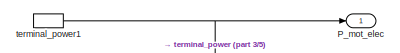
[diagram: Variant Subsystem Inverter/Inverter Analytic/Variant Subsystem/PMSM_Inverter_IBGT_Analytic - part 1/5, top right region]
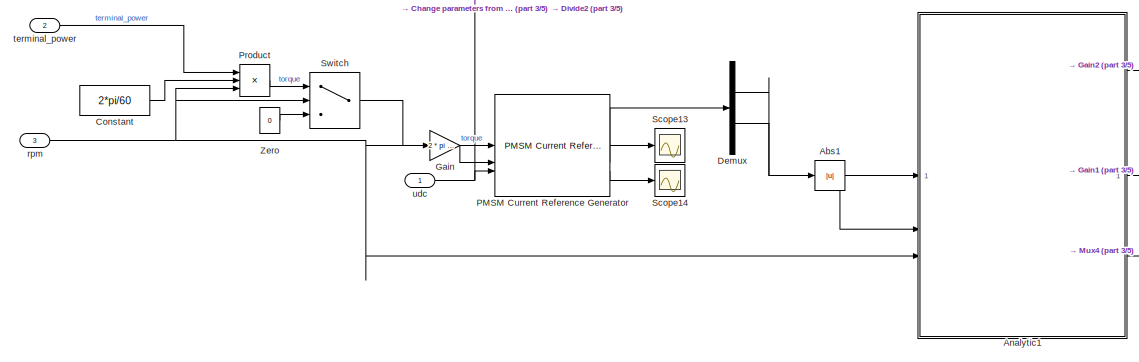
[diagram: Variant Subsystem Inverter/Inverter Analytic/Variant Subsystem/PMSM_Inverter_IBGT_Analytic - part 2/5, top left region]
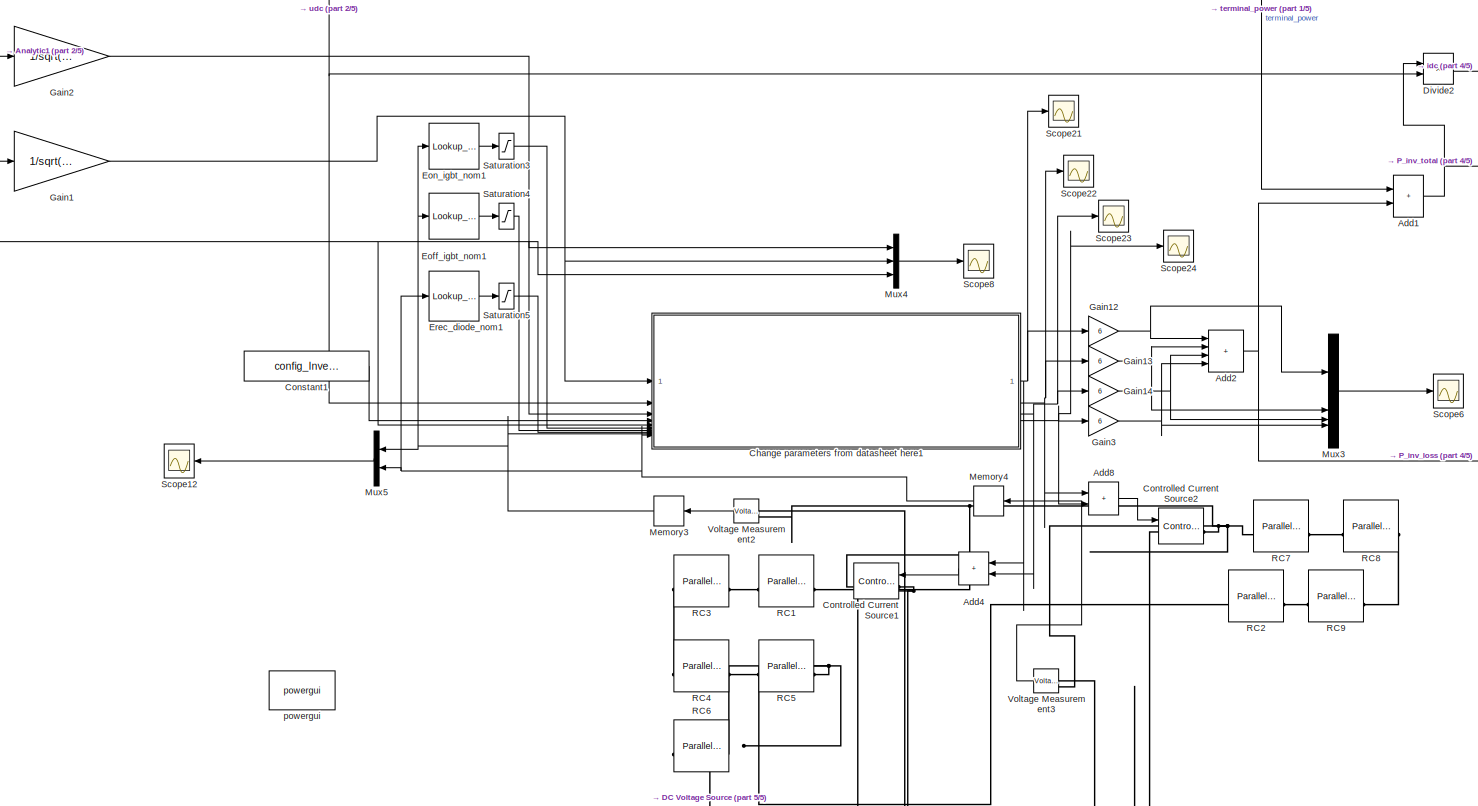
[diagram: Variant Subsystem Inverter/Inverter Analytic/Variant Subsystem/PMSM_Inverter_IBGT_Analytic - part 3/5, center side, full height]
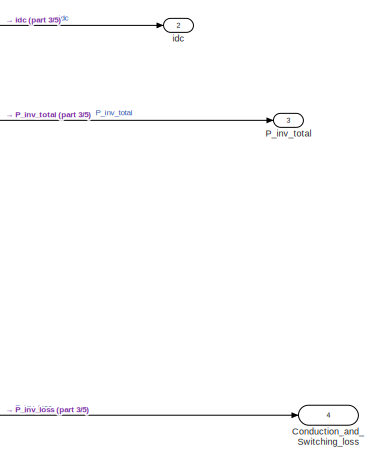
[diagram: Variant Subsystem Inverter/Inverter Analytic/Variant Subsystem/PMSM_Inverter_IBGT_Analytic - part 4/5, middle right region]
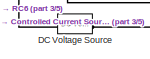
[diagram: Variant Subsystem Inverter/Inverter Analytic/Variant Subsystem/PMSM_Inverter_IBGT_Analytic - part 5/5, bottom center region]
BLOCK [SubSystem] Variant Subsystem Inverter/Inverter Analytic/Variant Subsystem/PMSM_Inverter_IBGT_Analytic
  VariantControl = Mode_PSM_IGBT
BLOCK [Abs] Variant Subsystem Inverter/Inverter Analytic/Variant Subsystem/PMSM_Inverter_IBGT_Analytic/Abs1
  SaturateOnIntegerOverflow = off
BLOCK [Sum] Variant Subsystem Inverter/Inverter Analytic/Variant Subsystem/PMSM_Inverter_IBGT_Analytic/Add1
  IconShape = rectangular
BLOCK [Sum] Variant Subsystem Inverter/Inverter Analytic/Variant Subsystem/PMSM_Inverter_IBGT_Analytic/Add2
  IconShape = rectangular
  Inputs = ++++
BLOCK [Sum] Variant Subsystem Inverter/Inverter Analytic/Variant Subsystem/PMSM_Inverter_IBGT_Analytic/Add4
  IconShape = rectangular
BLOCK [Sum] Variant Subsystem Inverter/Inverter Analytic/Variant Subsystem/PMSM_Inverter_IBGT_Analytic/Add8
  IconShape = rectangular
BLOCK [SubSystem] Variant Subsystem Inverter/Inverter Analytic/Variant Subsystem/PMSM_Inverter_IBGT_Analytic/Analytic1
  ErrorFcn = Stateflow.Translate.translate
  LibrarySourceBlock = simulink/User-Defined\nFunctions/MATLAB Function
  PermitHierarchicalResolution = ExplicitOnly
  SFBlockType = MATLAB Function
  TreatAsAtomicUnit = on
BLOCK [Demux] Variant Subsystem Inverter/Inverter Analytic/Variant Subsystem/PMSM_Inverter_IBGT_Analytic/Analytic1/ Demux 
  Outputs = 1
BLOCK [S-Function] Variant Subsystem Inverter/Inverter Analytic/Variant Subsystem/PMSM_Inverter_IBGT_Analytic/Analytic1/ SFunction 
  EnableBusSupport = on
  FunctionName = sf_sfun
  PortCounts = [3 4]
  SFcnIsStateOwnerBlock = off
  SFunctionDeploymentMode = off
  Tag = Stateflow S-Function 44
BLOCK [Terminator] Variant Subsystem Inverter/Inverter Analytic/Variant Subsystem/PMSM_Inverter_IBGT_Analytic/Analytic1/ Terminator 
BLOCK [Outport] Variant Subsystem Inverter/Inverter Analytic/Variant Subsystem/PMSM_Inverter_IBGT_Analytic/Analytic1/costheta
  Port = 3
BLOCK [Outport] Variant Subsystem Inverter/Inverter Analytic/Variant Subsystem/PMSM_Inverter_IBGT_Analytic/Analytic1/i
  Port = 2
BLOCK [Inport] Variant Subsystem Inverter/Inverter Analytic/Variant Subsystem/PMSM_Inverter_IBGT_Analytic/Analytic1/id_ref
BLOCK [Inport] Variant Subsystem Inverter/Inverter Analytic/Variant Subsystem/PMSM_Inverter_IBGT_Analytic/Analytic1/iq_ref
  Port = 2
BLOCK [Inport] Variant Subsystem Inverter/Inverter Analytic/Variant Subsystem/PMSM_Inverter_IBGT_Analytic/Analytic1/n
  Port = 3
BLOCK [Outport] Variant Subsystem Inverter/Inverter Analytic/Variant Subsystem/PMSM_Inverter_IBGT_Analytic/Analytic1/u
BLOCK [SubSystem] Variant Subsystem Inverter/Inverter Analytic/Variant Subsystem/PMSM_Inverter_IBGT_Analytic/Change parameters from datasheet here1
  ErrorFcn = Stateflow.Translate.translate
  PermitHierarchicalResolution = ExplicitOnly
  SFBlockType = MATLAB Function
  TreatAsAtomicUnit = on
BLOCK [Demux] Variant Subsystem Inverter/Inverter Analytic/Variant Subsystem/PMSM_Inverter_IBGT_Analytic/Change parameters from datasheet here1/ Demux 
  Outputs = 1
BLOCK [S-Function] Variant Subsystem Inverter/Inverter Analytic/Variant Subsystem/PMSM_Inverter_IBGT_Analytic/Change parameters from datasheet here1/ SFunction 
  EnableBusSupport = on
  FunctionName = sf_sfun
  PortCounts = [10 5]
  SFcnIsStateOwnerBlock = off
  SFunctionDeploymentMode = off
  Tag = Stateflow S-Function 46
BLOCK [Terminator] Variant Subsystem Inverter/Inverter Analytic/Variant Subsystem/PMSM_Inverter_IBGT_Analytic/Change parameters from datasheet here1/ Terminator 
BLOCK [Outport] Variant Subsystem Inverter/Inverter Analytic/Variant Subsystem/PMSM_Inverter_IBGT_Analytic/Change parameters from datasheet here1/CPloss_diode
  Port = 2
  VectorParamsAs1DForOutWhenUnconnected = off
BLOCK [Outport] Variant Subsystem Inverter/Inverter Analytic/Variant Subsystem/PMSM_Inverter_IBGT_Analytic/Change parameters from datasheet here1/CPloss_igbt
  VectorParamsAs1DForOutWhenUnconnected = off
BLOCK [Inport] Variant Subsystem Inverter/Inverter Analytic/Variant Subsystem/PMSM_Inverter_IBGT_Analytic/Change parameters from datasheet here1/Eoff_igbt_nom
  Port = 7
BLOCK [Inport] Variant Subsystem Inverter/Inverter Analytic/Variant Subsystem/PMSM_Inverter_IBGT_Analytic/Change parameters from datasheet here1/Eon_igbt_nom
  Port = 6
BLOCK [Inport] Variant Subsystem Inverter/Inverter Analytic/Variant Subsystem/PMSM_Inverter_IBGT_Analytic/Change parameters from datasheet here1/Erec_diode_nom
  Port = 8
BLOCK [Outport] Variant Subsystem Inverter/Inverter Analytic/Variant Subsystem/PMSM_Inverter_IBGT_Analytic/Change parameters from datasheet here1/SPloss_diode
  Port = 4
  VectorParamsAs1DForOutWhenUnconnected = off
BLOCK [Outport] Variant Subsystem Inverter/Inverter Analytic/Variant Subsystem/PMSM_Inverter_IBGT_Analytic/Change parameters from datasheet here1/SPloss_igbt
  Port = 3
  VectorParamsAs1DForOutWhenUnconnected = off
BLOCK [Inport] Variant Subsystem Inverter/Inverter Analytic/Variant Subsystem/PMSM_Inverter_IBGT_Analytic/Change parameters from datasheet here1/T_diode
  Port = 10
BLOCK [Inport] Variant Subsystem Inverter/Inverter Analytic/Variant Subsystem/PMSM_Inverter_IBGT_Analytic/Change parameters from datasheet here1/T_igbt
  Port = 9
BLOCK [Inport] Variant Subsystem Inverter/Inverter Analytic/Variant Subsystem/PMSM_Inverter_IBGT_Analytic/Change parameters from datasheet here1/costheta
  Port = 5
BLOCK [Inport] Variant Subsystem Inverter/Inverter Analytic/Variant Subsystem/PMSM_Inverter_IBGT_Analytic/Change parameters from datasheet here1/fs
  Port = 4
BLOCK [Inport] Variant Subsystem Inverter/Inverter Analytic/Variant Subsystem/PMSM_Inverter_IBGT_Analytic/Change parameters from datasheet here1/ic
BLOCK [Inport] Variant Subsystem Inverter/Inverter Analytic/Variant Subsystem/PMSM_Inverter_IBGT_Analytic/Change parameters from datasheet here1/udc
  Port = 2
BLOCK [Inport] Variant Subsystem Inverter/Inverter Analytic/Variant Subsystem/PMSM_Inverter_IBGT_Analytic/Change parameters from datasheet here1/up
  Port = 3
BLOCK [Outport] Variant Subsystem Inverter/Inverter Analytic/Variant Subsystem/PMSM_Inverter_IBGT_Analytic/Conduction_and_Switching_loss
  Port = 4
BLOCK [Constant] Variant Subsystem Inverter/Inverter Analytic/Variant Subsystem/PMSM_Inverter_IBGT_Analytic/Constant
  Value = 2*pi/60
BLOCK [Constant] Variant Subsystem Inverter/Inverter Analytic/Variant Subsystem/PMSM_Inverter_IBGT_Analytic/Constant1
  Value = config_Inverter.fswitch
BLOCK [Reference] Variant Subsystem Inverter/Inverter Analytic/Variant Subsystem/PMSM_Inverter_IBGT_Analytic/Controlled Current Source1  REF=spsControlledCurrentSourceLib/Controlled Current Source
  LibrarySourceBlock = sps_lib/Sources/Controlled Current Source
  NameLocation = top
  SourceBlock = spsControlledCurrentSourceLib/Controlled Current Source
  SourceType = Controlled Current Source
BLOCK [Reference] Variant Subsystem Inverter/Inverter Analytic/Variant Subsystem/PMSM_Inverter_IBGT_Analytic/Controlled Current Source2  REF=spsControlledCurrentSourceLib/Controlled Current Source
  LibrarySourceBlock = sps_lib/Sources/Controlled Current Source
  NameLocation = top
  SourceBlock = spsControlledCurrentSourceLib/Controlled Current Source
  SourceType = Controlled Current Source
BLOCK [Reference] Variant Subsystem Inverter/Inverter Analytic/Variant Subsystem/PMSM_Inverter_IBGT_Analytic/DC Voltage Source  REF=spsDCVoltageSourceLib/DC Voltage Source
  LibrarySourceBlock = sps_lib/Sources/DC Voltage Source
  NameLocation = right
  SourceBlock = spsDCVoltageSourceLib/DC Voltage Source
  SourceType = DC Voltage Source
BLOCK [Demux] Variant Subsystem Inverter/Inverter Analytic/Variant Subsystem/PMSM_Inverter_IBGT_Analytic/Demux
  Outputs = 2
BLOCK [Product] Variant Subsystem Inverter/Inverter Analytic/Variant Subsystem/PMSM_Inverter_IBGT_Analytic/Divide2
  Inputs = */
BLOCK [Lookup_n-D] Variant Subsystem Inverter/Inverter Analytic/Variant Subsystem/PMSM_Inverter_IBGT_Analytic/Eoff_igbt_nom1
  BreakpointsForDimension1 = [25, 150, 175]
  InputPortMap = u0
  InternalRulePriority = Speed
  NumberOfTableDimensions = 1
  RndMeth = Simplest
  Table = [23.5*1e-3,  29*1e-3,  30*1e-3]
BLOCK [Lookup_n-D] Variant Subsystem Inverter/Inverter Analytic/Variant Subsystem/PMSM_Inverter_IBGT_Analytic/Eon_igbt_nom1
  BreakpointsForDimension1 = [25, 150, 175]
  InputPortMap = u0
  InternalRulePriority = Speed
  NumberOfTableDimensions = 1
  RndMeth = Simplest
  Table = [13.5*1e-3,  17.5*1e-3,  18*1e-3]
BLOCK [Lookup_n-D] Variant Subsystem Inverter/Inverter Analytic/Variant Subsystem/PMSM_Inverter_IBGT_Analytic/Erec_diode_nom1
  BreakpointsForDimension1 = [25, 150, 175]
  InputPortMap = u0
  InternalRulePriority = Speed
  NumberOfTableDimensions = 1
  RndMeth = Simplest
  Table = [7*1e-3,  13*1e-3,  15*1e-3]
BLOCK [Gain] Variant Subsystem Inverter/Inverter Analytic/Variant Subsystem/PMSM_Inverter_IBGT_Analytic/Gain
  Gain = 2 * pi / 60
BLOCK [Gain] Variant Subsystem Inverter/Inverter Analytic/Variant Subsystem/PMSM_Inverter_IBGT_Analytic/Gain1
  Gain = 1/sqrt(2)
BLOCK [Gain] Variant Subsystem Inverter/Inverter Analytic/Variant Subsystem/PMSM_Inverter_IBGT_Analytic/Gain12
  Gain = 6
BLOCK [Gain] Variant Subsystem Inverter/Inverter Analytic/Variant Subsystem/PMSM_Inverter_IBGT_Analytic/Gain13
  Gain = 6
BLOCK [Gain] Variant Subsystem Inverter/Inverter Analytic/Variant Subsystem/PMSM_Inverter_IBGT_Analytic/Gain14
  Gain = 6
BLOCK [Gain] Variant Subsystem Inverter/Inverter Analytic/Variant Subsystem/PMSM_Inverter_IBGT_Analytic/Gain2
  Gain = 1/sqrt(2)
BLOCK [Gain] Variant Subsystem Inverter/Inverter Analytic/Variant Subsystem/PMSM_Inverter_IBGT_Analytic/Gain3
  Gain = 6
BLOCK [Memory] Variant Subsystem Inverter/Inverter Analytic/Variant Subsystem/PMSM_Inverter_IBGT_Analytic/Memory3
  InheritSampleTime = on
  InitialCondition = 25
  NameLocation = top
BLOCK [Memory] Variant Subsystem Inverter/Inverter Analytic/Variant Subsystem/PMSM_Inverter_IBGT_Analytic/Memory4
  InheritSampleTime = on
  InitialCondition = 25
  NameLocation = top
BLOCK [Mux] Variant Subsystem Inverter/Inverter Analytic/Variant Subsystem/PMSM_Inverter_IBGT_Analytic/Mux3
  DisplayOption = bar
BLOCK [Mux] Variant Subsystem Inverter/Inverter Analytic/Variant Subsystem/PMSM_Inverter_IBGT_Analytic/Mux4
  DisplayOption = bar
  Inputs = 3
BLOCK [Mux] Variant Subsystem Inverter/Inverter Analytic/Variant Subsystem/PMSM_Inverter_IBGT_Analytic/Mux5
  DisplayOption = bar
  Inputs = 2
BLOCK [Reference] Variant Subsystem Inverter/Inverter Analytic/Variant Subsystem/PMSM_Inverter_IBGT_Analytic/PMSM Current Reference Generator  REF=eePmsmCurrentReferenceGen/PMSM Current Reference
Generator
  LibrarySourceBlock = ee_sl_lib/PMSM Control/PMSM Current Reference\nGenerator
  SourceBlock = eePmsmCurrentReferenceGen/PMSM Current Reference\nGenerator
  SourceType = PMSM Current Reference Generator
BLOCK [Outport] Variant Subsystem Inverter/Inverter Analytic/Variant Subsystem/PMSM_Inverter_IBGT_Analytic/P_inv_total
  Port = 3
BLOCK [Outport] Variant Subsystem Inverter/Inverter Analytic/Variant Subsystem/PMSM_Inverter_IBGT_Analytic/P_mot_elec
BLOCK [Product] Variant Subsystem Inverter/Inverter Analytic/Variant Subsystem/PMSM_Inverter_IBGT_Analytic/Product
  Inputs = *//
BLOCK [Reference] Variant Subsystem Inverter/Inverter Analytic/Variant Subsystem/PMSM_Inverter_IBGT_Analytic/RC1  REF=spsParallelRLCBranchLib/Parallel RLC Branch
  AttributesFormatString = \n
  LibrarySourceBlock = sps_lib/Passives/Parallel RLC Branch
  SourceBlock = spsParallelRLCBranchLib/Parallel RLC Branch
  SourceType = Parallel RLC Branch
BLOCK [Reference] Variant Subsystem Inverter/Inverter Analytic/Variant Subsystem/PMSM_Inverter_IBGT_Analytic/RC2  REF=spsParallelRLCBranchLib/Parallel RLC Branch
  AttributesFormatString = \n
  LibrarySourceBlock = sps_lib/Passives/Parallel RLC Branch
  SourceBlock = spsParallelRLCBranchLib/Parallel RLC Branch
  SourceType = Parallel RLC Branch
BLOCK [Reference] Variant Subsystem Inverter/Inverter Analytic/Variant Subsystem/PMSM_Inverter_IBGT_Analytic/RC3  REF=spsParallelRLCBranchLib/Parallel RLC Branch
  AttributesFormatString = \n
  LibrarySourceBlock = sps_lib/Passives/Parallel RLC Branch
  SourceBlock = spsParallelRLCBranchLib/Parallel RLC Branch
  SourceType = Parallel RLC Branch
BLOCK [Reference] Variant Subsystem Inverter/Inverter Analytic/Variant Subsystem/PMSM_Inverter_IBGT_Analytic/RC4  REF=spsParallelRLCBranchLib/Parallel RLC Branch
  AttributesFormatString = \n
  LibrarySourceBlock = sps_lib/Passives/Parallel RLC Branch
  SourceBlock = spsParallelRLCBranchLib/Parallel RLC Branch
  SourceType = Parallel RLC Branch
BLOCK [Reference] Variant Subsystem Inverter/Inverter Analytic/Variant Subsystem/PMSM_Inverter_IBGT_Analytic/RC5  REF=spsParallelRLCBranchLib/Parallel RLC Branch
  AttributesFormatString = \n
  LibrarySourceBlock = sps_lib/Passives/Parallel RLC Branch
  SourceBlock = spsParallelRLCBranchLib/Parallel RLC Branch
  SourceType = Parallel RLC Branch
BLOCK [Reference] Variant Subsystem Inverter/Inverter Analytic/Variant Subsystem/PMSM_Inverter_IBGT_Analytic/RC6  REF=spsParallelRLCBranchLib/Parallel RLC Branch
  AttributesFormatString = \n
  LibrarySourceBlock = sps_lib/Passives/Parallel RLC Branch
  SourceBlock = spsParallelRLCBranchLib/Parallel RLC Branch
  SourceType = Parallel RLC Branch
BLOCK [Reference] Variant Subsystem Inverter/Inverter Analytic/Variant Subsystem/PMSM_Inverter_IBGT_Analytic/RC7  REF=spsParallelRLCBranchLib/Parallel RLC Branch
  AttributesFormatString = \n
  LibrarySourceBlock = sps_lib/Passives/Parallel RLC Branch
  SourceBlock = spsParallelRLCBranchLib/Parallel RLC Branch
  SourceType = Parallel RLC Branch
BLOCK [Reference] Variant Subsystem Inverter/Inverter Analytic/Variant Subsystem/PMSM_Inverter_IBGT_Analytic/RC8  REF=spsParallelRLCBranchLib/Parallel RLC Branch
  AttributesFormatString = \n
  LibrarySourceBlock = sps_lib/Passives/Parallel RLC Branch
  SourceBlock = spsParallelRLCBranchLib/Parallel RLC Branch
  SourceType = Parallel RLC Branch
BLOCK [Reference] Variant Subsystem Inverter/Inverter Analytic/Variant Subsystem/PMSM_Inverter_IBGT_Analytic/RC9  REF=spsParallelRLCBranchLib/Parallel RLC Branch
  AttributesFormatString = \n
  LibrarySourceBlock = sps_lib/Passives/Parallel RLC Branch
  SourceBlock = spsParallelRLCBranchLib/Parallel RLC Branch
  SourceType = Parallel RLC Branch
BLOCK [Saturate] Variant Subsystem Inverter/Inverter Analytic/Variant Subsystem/PMSM_Inverter_IBGT_Analytic/Saturation3
  LowerLimit = 13.5*1e-3
  UpperLimit = 18*1e-3
BLOCK [Saturate] Variant Subsystem Inverter/Inverter Analytic/Variant Subsystem/PMSM_Inverter_IBGT_Analytic/Saturation4
  LowerLimit = 23.5*1e-3
  UpperLimit = 30*1e-3
BLOCK [Saturate] Variant Subsystem Inverter/Inverter Analytic/Variant Subsystem/PMSM_Inverter_IBGT_Analytic/Saturation5
  LowerLimit = 7*1e-3
  UpperLimit = 15*1e-3
BLOCK [Scope] Variant Subsystem Inverter/Inverter Analytic/Variant Subsystem/PMSM_Inverter_IBGT_Analytic/Scope12
  Floating = off
  NumInputPorts = 1
  ScopeSpecificationString = Simulink.scopes.TimeScopeBlockCfg('CurrentConfiguration', extmgr.ConfigurationSet(extmgr.Configuration('Core','General UI',true),extmgr.Configuration('Core','Source UI',true),extmgr.Configuration('Sources','WiredSimulink',true,'DataLogging',true,'DataLoggingVariableName','ScopeData_31','DataLoggingSaveFormat','Array','DataLoggingDecimation','1','DataLoggingDecimateData',true),extmgr.Configuration(...<+1727ch>
BLOCK [Scope] Variant Subsystem Inverter/Inverter Analytic/Variant Subsystem/PMSM_Inverter_IBGT_Analytic/Scope13
  Floating = off
  NumInputPorts = 1
  ScopeSpecificationString = Simulink.scopes.TimeScopeBlockCfg('CurrentConfiguration', extmgr.ConfigurationSet(extmgr.Configuration('Core','General UI',true),extmgr.Configuration('Core','Source UI',true),extmgr.Configuration('Sources','WiredSimulink',true,'DataLoggingVariableName','ScopeData_32'),extmgr.Configuration('Visuals','Time Domain',true,'SerializedDisplays',{struct('MinYLimReal','-59.515','MaxYLimReal','68.735','YLab...<+1418ch>
BLOCK [Scope] Variant Subsystem Inverter/Inverter Analytic/Variant Subsystem/PMSM_Inverter_IBGT_Analytic/Scope14
  Floating = off
  NumInputPorts = 1
  ScopeSpecificationString = Simulink.scopes.TimeScopeBlockCfg('CurrentConfiguration', extmgr.ConfigurationSet(extmgr.Configuration('Core','General UI',true),extmgr.Configuration('Core','Source UI',true),extmgr.Configuration('Sources','WiredSimulink',true,'DataLoggingVariableName','ScopeData_33'),extmgr.Configuration('Visuals','Time Domain',true,'SerializedDisplays',{struct('MinYLimReal','525.15505','MaxYLimReal','725.15505',...<+1409ch>
BLOCK [Scope] Variant Subsystem Inverter/Inverter Analytic/Variant Subsystem/PMSM_Inverter_IBGT_Analytic/Scope21
  Floating = off
  NumInputPorts = 1
  ScopeSpecificationString = Simulink.scopes.TimeScopeBlockCfg('CurrentConfiguration', extmgr.ConfigurationSet(extmgr.Configuration('Core','General UI',true),extmgr.Configuration('Core','Source UI',true),extmgr.Configuration('Sources','WiredSimulink',true,'DataLoggingVariableName','ScopeData_34'),extmgr.Configuration('Visuals','Time Domain',true,'SerializedDisplays',{struct('MinYLimReal','-10','MaxYLimReal','10','YLabelReal',...<+837ch>
BLOCK [Scope] Variant Subsystem Inverter/Inverter Analytic/Variant Subsystem/PMSM_Inverter_IBGT_Analytic/Scope22
  Floating = off
  NumInputPorts = 1
  ScopeSpecificationString = Simulink.scopes.TimeScopeBlockCfg('CurrentConfiguration', extmgr.ConfigurationSet(extmgr.Configuration('Core','General UI',true),extmgr.Configuration('Core','Source UI',true),extmgr.Configuration('Sources','WiredSimulink',true,'DataLoggingVariableName','ScopeData_35'),extmgr.Configuration('Visuals','Time Domain',true,'SerializedDisplays',{struct('MinYLimReal','-10','MaxYLimReal','10','YLabelReal',...<+838ch>
BLOCK [Scope] Variant Subsystem Inverter/Inverter Analytic/Variant Subsystem/PMSM_Inverter_IBGT_Analytic/Scope23
  Floating = off
  NumInputPorts = 1
  ScopeSpecificationString = Simulink.scopes.TimeScopeBlockCfg('CurrentConfiguration', extmgr.ConfigurationSet(extmgr.Configuration('Core','General UI',true),extmgr.Configuration('Core','Source UI',true),extmgr.Configuration('Sources','WiredSimulink',true,'DataLoggingVariableName','ScopeData_36'),extmgr.Configuration('Visuals','Time Domain',true,'SerializedDisplays',{struct('MinYLimReal','-1.00000','MaxYLimReal','1.00000','YL...<+1436ch>
BLOCK [Scope] Variant Subsystem Inverter/Inverter Analytic/Variant Subsystem/PMSM_Inverter_IBGT_Analytic/Scope24
  Floating = off
  NameLocation = left
  NumInputPorts = 1
  ScopeSpecificationString = Simulink.scopes.TimeScopeBlockCfg('CurrentConfiguration', extmgr.ConfigurationSet(extmgr.Configuration('Core','General UI',true),extmgr.Configuration('Core','Source UI',true),extmgr.Configuration('Sources','WiredSimulink',true,'DataLoggingVariableName','ScopeData_37'),extmgr.Configuration('Visuals','Time Domain',true,'SerializedDisplays',{struct('MinYLimReal','-1.00000','MaxYLimReal','1.00000','YL...<+1437ch>
BLOCK [Scope] Variant Subsystem Inverter/Inverter Analytic/Variant Subsystem/PMSM_Inverter_IBGT_Analytic/Scope6
  Floating = off
  NumInputPorts = 1
  ScopeSpecificationString = Simulink.scopes.TimeScopeBlockCfg('CurrentConfiguration', extmgr.ConfigurationSet(extmgr.Configuration('Core','General UI',true),extmgr.Configuration('Core','Source UI',true),extmgr.Configuration('Sources','WiredSimulink',true,'DataLogging',true,'DataLoggingVariableName','ScopeData_38','DataLoggingSaveFormat','Array','DataLoggingDecimation','1','DataLoggingDecimateData',true),extmgr.Configuration(...<+1744ch>
BLOCK [Scope] Variant Subsystem Inverter/Inverter Analytic/Variant Subsystem/PMSM_Inverter_IBGT_Analytic/Scope8
  Floating = off
  NumInputPorts = 1
  ScopeSpecificationString = Simulink.scopes.TimeScopeBlockCfg('CurrentConfiguration', extmgr.ConfigurationSet(extmgr.Configuration('Core','General UI',true),extmgr.Configuration('Core','Source UI',true),extmgr.Configuration('Sources','WiredSimulink',true,'DataLogging',true,'DataLoggingVariableName','ScopeData_39','DataLoggingSaveFormat','Array','DataLoggingDecimation','1','DataLoggingDecimateData',true),extmgr.Configuration(...<+1823ch>
BLOCK [Switch] Variant Subsystem Inverter/Inverter Analytic/Variant Subsystem/PMSM_Inverter_IBGT_Analytic/Switch
  Criteria = u2 ~= 0
  InputSameDT = off
  SaturateOnIntegerOverflow = off
BLOCK [Reference] Variant Subsystem Inverter/Inverter Analytic/Variant Subsystem/PMSM_Inverter_IBGT_Analytic/Voltage Measurement2  REF=spsVoltageMeasurementLib/Voltage Measurement
  LibrarySourceBlock = sps_lib/Sensors and Measurements/Voltage Measurement
  NameLocation = top
  SourceBlock = spsVoltageMeasurementLib/Voltage Measurement
  SourceType = Voltage Measurement
  UserDataPersistent = on
BLOCK [Reference] Variant Subsystem Inverter/Inverter Analytic/Variant Subsystem/PMSM_Inverter_IBGT_Analytic/Voltage Measurement3  REF=spsVoltageMeasurementLib/Voltage Measurement
  LibrarySourceBlock = sps_lib/Sensors and Measurements/Voltage Measurement
  NameLocation = top
  SourceBlock = spsVoltageMeasurementLib/Voltage Measurement
  SourceType = Voltage Measurement
  UserDataPersistent = on
BLOCK [Constant] Variant Subsystem Inverter/Inverter Analytic/Variant Subsystem/PMSM_Inverter_IBGT_Analytic/Zero
  OutDataTypeStr = Inherit: Inherit via back propagation
  Value = 0
BLOCK [Outport] Variant Subsystem Inverter/Inverter Analytic/Variant Subsystem/PMSM_Inverter_IBGT_Analytic/idc
  Port = 2
BLOCK [Reference] Variant Subsystem Inverter/Inverter Analytic/Variant Subsystem/PMSM_Inverter_IBGT_Analytic/powergui  REF=spspowerguiLib/powergui
  LibrarySourceBlock = sps_lib/powergui
  Priority = 1
  SourceBlock = spspowerguiLib/powergui
  SourceType = PSB option menu block
BLOCK [Inport] Variant Subsystem Inverter/Inverter Analytic/Variant Subsystem/PMSM_Inverter_IBGT_Analytic/rpm
  Port = 3
BLOCK [Inport] Variant Subsystem Inverter/Inverter Analytic/Variant Subsystem/PMSM_Inverter_IBGT_Analytic/terminal_power
  Port = 2
BLOCK [InportShadow] Variant Subsystem Inverter/Inverter Analytic/Variant Subsystem/PMSM_Inverter_IBGT_Analytic/terminal_power1
  Port = 2
BLOCK [Inport] Variant Subsystem Inverter/Inverter Analytic/Variant Subsystem/PMSM_Inverter_IBGT_Analytic/udc
BLOCK [SubSystem] Variant Subsystem Inverter/Inverter Analytic/Variant Subsystem/PMSM_Inverter_SiC-MOSFET_Analytic
  VariantControl = Mode_PSM_MOSFET
BLOCK [Abs] Variant Subsystem Inverter/Inverter Analytic/Variant Subsystem/PMSM_Inverter_SiC-MOSFET_Analytic/Abs1
  SaturateOnIntegerOverflow = off
BLOCK [Sum] Variant Subsystem Inverter/Inverter Analytic/Variant Subsystem/PMSM_Inverter_SiC-MOSFET_Analytic/Add
  IconShape = rectangular
  Inputs = ++++
BLOCK [Sum] Variant Subsystem Inverter/Inverter Analytic/Variant Subsystem/PMSM_Inverter_SiC-MOSFET_Analytic/Add1
  IconShape = rectangular
BLOCK [Sum] Variant Subsystem Inverter/Inverter Analytic/Variant Subsystem/PMSM_Inverter_SiC-MOSFET_Analytic/Add2
  IconShape = rectangular
BLOCK [Sum] Variant Subsystem Inverter/Inverter Analytic/Variant Subsystem/PMSM_Inverter_SiC-MOSFET_Analytic/Add3
  IconShape = rectangular
BLOCK [SubSystem] Variant Subsystem Inverter/Inverter Analytic/Variant Subsystem/PMSM_Inverter_SiC-MOSFET_Analytic/Analytic1
  ErrorFcn = Stateflow.Translate.translate
  LibrarySourceBlock = simulink/User-Defined\nFunctions/MATLAB Function
  PermitHierarchicalResolution = ExplicitOnly
  SFBlockType = MATLAB Function
  TreatAsAtomicUnit = on
BLOCK [Demux] Variant Subsystem Inverter/Inverter Analytic/Variant Subsystem/PMSM_Inverter_SiC-MOSFET_Analytic/Analytic1/ Demux 
  Outputs = 1
BLOCK [S-Function] Variant Subsystem Inverter/Inverter Analytic/Variant Subsystem/PMSM_Inverter_SiC-MOSFET_Analytic/Analytic1/ SFunction 
  EnableBusSupport = on
  FunctionName = sf_sfun
  PortCounts = [3 4]
  SFcnIsStateOwnerBlock = off
  SFunctionDeploymentMode = off
  Tag = Stateflow S-Function 50
BLOCK [Terminator] Variant Subsystem Inverter/Inverter Analytic/Variant Subsystem/PMSM_Inverter_SiC-MOSFET_Analytic/Analytic1/ Terminator 
BLOCK [Outport] Variant Subsystem Inverter/Inverter Analytic/Variant Subsystem/PMSM_Inverter_SiC-MOSFET_Analytic/Analytic1/costheta
  Port = 3
BLOCK [Outport] Variant Subsystem Inverter/Inverter Analytic/Variant Subsystem/PMSM_Inverter_SiC-MOSFET_Analytic/Analytic1/i
  Port = 2
BLOCK [Inport] Variant Subsystem Inverter/Inverter Analytic/Variant Subsystem/PMSM_Inverter_SiC-MOSFET_Analytic/Analytic1/id_ref
BLOCK [Inport] Variant Subsystem Inverter/Inverter Analytic/Variant Subsystem/PMSM_Inverter_SiC-MOSFET_Analytic/Analytic1/iq_ref
  Port = 2
BLOCK [Inport] Variant Subsystem Inverter/Inverter Analytic/Variant Subsystem/PMSM_Inverter_SiC-MOSFET_Analytic/Analytic1/n
  Port = 3
BLOCK [Outport] Variant Subsystem Inverter/Inverter Analytic/Variant Subsystem/PMSM_Inverter_SiC-MOSFET_Analytic/Analytic1/u
BLOCK [SubSystem] Variant Subsystem Inverter/Inverter Analytic/Variant Subsystem/PMSM_Inverter_SiC-MOSFET_Analytic/C2M0025120D
  ErrorFcn = Stateflow.Translate.translate
  PermitHierarchicalResolution = ExplicitOnly
  SFBlockType = MATLAB Function
  TreatAsAtomicUnit = on
BLOCK [Demux] Variant Subsystem Inverter/Inverter Analytic/Variant Subsystem/PMSM_Inverter_SiC-MOSFET_Analytic/C2M0025120D/ Demux 
  Outputs = 1
BLOCK [S-Function] Variant Subsystem Inverter/Inverter Analytic/Variant Subsystem/PMSM_Inverter_SiC-MOSFET_Analytic/C2M0025120D/ SFunction 
  EnableBusSupport = on
  FunctionName = sf_sfun
  PortCounts = [7 5]
  SFcnIsStateOwnerBlock = off
  SFunctionDeploymentMode = off
  Tag = Stateflow S-Function 45
BLOCK [Terminator] Variant Subsystem Inverter/Inverter Analytic/Variant Subsystem/PMSM_Inverter_SiC-MOSFET_Analytic/C2M0025120D/ Terminator 
BLOCK [Outport] Variant Subsystem Inverter/Inverter Analytic/Variant Subsystem/PMSM_Inverter_SiC-MOSFET_Analytic/C2M0025120D/CPloss_SiC
  VectorParamsAs1DForOutWhenUnconnected = off
BLOCK [Outport] Variant Subsystem Inverter/Inverter Analytic/Variant Subsystem/PMSM_Inverter_SiC-MOSFET_Analytic/C2M0025120D/CPloss_diode
  Port = 2
  VectorParamsAs1DForOutWhenUnconnected = off
BLOCK [Outport] Variant Subsystem Inverter/Inverter Analytic/Variant Subsystem/PMSM_Inverter_SiC-MOSFET_Analytic/C2M0025120D/SPloss_SiC
  Port = 3
  VectorParamsAs1DForOutWhenUnconnected = off
BLOCK [Outport] Variant Subsystem Inverter/Inverter Analytic/Variant Subsystem/PMSM_Inverter_SiC-MOSFET_Analytic/C2M0025120D/SPloss_diode
  Port = 4
  VectorParamsAs1DForOutWhenUnconnected = off
BLOCK [Inport] Variant Subsystem Inverter/Inverter Analytic/Variant Subsystem/PMSM_Inverter_SiC-MOSFET_Analytic/C2M0025120D/T_diode
  Port = 7
BLOCK [Inport] Variant Subsystem Inverter/Inverter Analytic/Variant Subsystem/PMSM_Inverter_SiC-MOSFET_Analytic/C2M0025120D/T_mosfet
  Port = 6
BLOCK [Inport] Variant Subsystem Inverter/Inverter Analytic/Variant Subsystem/PMSM_Inverter_SiC-MOSFET_Analytic/C2M0025120D/costheta
  Port = 5
BLOCK [Inport] Variant Subsystem Inverter/Inverter Analytic/Variant Subsystem/PMSM_Inverter_SiC-MOSFET_Analytic/C2M0025120D/fs
  Port = 4
BLOCK [Inport] Variant Subsystem Inverter/Inverter Analytic/Variant Subsystem/PMSM_Inverter_SiC-MOSFET_Analytic/C2M0025120D/io
BLOCK [Inport] Variant Subsystem Inverter/Inverter Analytic/Variant Subsystem/PMSM_Inverter_SiC-MOSFET_Analytic/C2M0025120D/udc
  Port = 2
BLOCK [Inport] Variant Subsystem Inverter/Inverter Analytic/Variant Subsystem/PMSM_Inverter_SiC-MOSFET_Analytic/C2M0025120D/up
  Port = 3
BLOCK [Outport] Variant Subsystem Inverter/Inverter Analytic/Variant Subsystem/PMSM_Inverter_SiC-MOSFET_Analytic/Conduction_and_Switching_loss
  Port = 4
BLOCK [Constant] Variant Subsystem Inverter/Inverter Analytic/Variant Subsystem/PMSM_Inverter_SiC-MOSFET_Analytic/Constant
  Value = 2*pi/60
BLOCK [Constant] Variant Subsystem Inverter/Inverter Analytic/Variant Subsystem/PMSM_Inverter_SiC-MOSFET_Analytic/Constant1
  Value = config_Inverter.fswitch
BLOCK [Reference] Variant Subsystem Inverter/Inverter Analytic/Variant Subsystem/PMSM_Inverter_SiC-MOSFET_Analytic/Controlled Current Source1  REF=spsControlledCurrentSourceLib/Controlled Current Source
  LibrarySourceBlock = sps_lib/Sources/Controlled Current Source
  NameLocation = top
  SourceBlock = spsControlledCurrentSourceLib/Controlled Current Source
  SourceType = Controlled Current Source
BLOCK [Reference] Variant Subsystem Inverter/Inverter Analytic/Variant Subsystem/PMSM_Inverter_SiC-MOSFET_Analytic/Controlled Current Source2  REF=spsControlledCurrentSourceLib/Controlled Current Source
  LibrarySourceBlock = sps_lib/Sources/Controlled Current Source
  NameLocation = top
  SourceBlock = spsControlledCurrentSourceLib/Controlled Current Source
  SourceType = Controlled Current Source
BLOCK [Reference] Variant Subsystem Inverter/Inverter Analytic/Variant Subsystem/PMSM_Inverter_SiC-MOSFET_Analytic/DC Voltage Source  REF=spsDCVoltageSourceLib/DC Voltage Source
  LibrarySourceBlock = sps_lib/Sources/DC Voltage Source
  NameLocation = top
  SourceBlock = spsDCVoltageSourceLib/DC Voltage Source
  SourceType = DC Voltage Source
BLOCK [Demux] Variant Subsystem Inverter/Inverter Analytic/Variant Subsystem/PMSM_Inverter_SiC-MOSFET_Analytic/Demux
  Outputs = 2
BLOCK [Product] Variant Subsystem Inverter/Inverter Analytic/Variant Subsystem/PMSM_Inverter_SiC-MOSFET_Analytic/Divide1
  Inputs = */
BLOCK [Gain] Variant Subsystem Inverter/Inverter Analytic/Variant Subsystem/PMSM_Inverter_SiC-MOSFET_Analytic/Gain
  Gain = 6
BLOCK [Gain] Variant Subsystem Inverter/Inverter Analytic/Variant Subsystem/PMSM_Inverter_SiC-MOSFET_Analytic/Gain1
  Gain = 6
BLOCK [Gain] Variant Subsystem Inverter/Inverter Analytic/Variant Subsystem/PMSM_Inverter_SiC-MOSFET_Analytic/Gain2
  Gain = 6
BLOCK [Gain] Variant Subsystem Inverter/Inverter Analytic/Variant Subsystem/PMSM_Inverter_SiC-MOSFET_Analytic/Gain3
  Gain = 6
BLOCK [Gain] Variant Subsystem Inverter/Inverter Analytic/Variant Subsystem/PMSM_Inverter_SiC-MOSFET_Analytic/Gain4
  Gain = 1/sqrt(2)
BLOCK [Gain] Variant Subsystem Inverter/Inverter Analytic/Variant Subsystem/PMSM_Inverter_SiC-MOSFET_Analytic/Gain5
  Gain = 1/sqrt(2)
BLOCK [Gain] Variant Subsystem Inverter/Inverter Analytic/Variant Subsystem/PMSM_Inverter_SiC-MOSFET_Analytic/Gain7
  Gain = 2 * pi / 60
BLOCK [SubSystem] Variant Subsystem Inverter/Inverter Analytic/Variant Subsystem/PMSM_Inverter_SiC-MOSFET_Analytic/MATLAB Function
  ErrorFcn = Stateflow.Translate.translate
  PermitHierarchicalResolution = ExplicitOnly
  SFBlockType = MATLAB Function
  TreatAsAtomicUnit = on
BLOCK [Demux] Variant Subsystem Inverter/Inverter Analytic/Variant Subsystem/PMSM_Inverter_SiC-MOSFET_Analytic/MATLAB Function/ Demux 
  Outputs = 1
BLOCK [S-Function] Variant Subsystem Inverter/Inverter Analytic/Variant Subsystem/PMSM_Inverter_SiC-MOSFET_Analytic/MATLAB Function/ SFunction 
  EnableBusSupport = on
  FunctionName = sf_sfun
  PortCounts = [1 2]
  SFcnIsStateOwnerBlock = off
  SFunctionDeploymentMode = off
  Tag = Stateflow S-Function 12
BLOCK [Terminator] Variant Subsystem Inverter/Inverter Analytic/Variant Subsystem/PMSM_Inverter_SiC-MOSFET_Analytic/MATLAB Function/ Terminator 
BLOCK [Inport] Variant Subsystem Inverter/Inverter Analytic/Variant Subsystem/PMSM_Inverter_SiC-MOSFET_Analytic/MATLAB Function/u
BLOCK [Outport] Variant Subsystem Inverter/Inverter Analytic/Variant Subsystem/PMSM_Inverter_SiC-MOSFET_Analytic/MATLAB Function/y
BLOCK [Memory] Variant Subsystem Inverter/Inverter Analytic/Variant Subsystem/PMSM_Inverter_SiC-MOSFET_Analytic/Memory3
  InheritSampleTime = on
  InitialCondition = 25
  NameLocation = top
BLOCK [Memory] Variant Subsystem Inverter/Inverter Analytic/Variant Subsystem/PMSM_Inverter_SiC-MOSFET_Analytic/Memory4
  InheritSampleTime = on
  InitialCondition = 25
  NameLocation = top
BLOCK [Mux] Variant Subsystem Inverter/Inverter Analytic/Variant Subsystem/PMSM_Inverter_SiC-MOSFET_Analytic/Mux3
  DisplayOption = bar
BLOCK [Mux] Variant Subsystem Inverter/Inverter Analytic/Variant Subsystem/PMSM_Inverter_SiC-MOSFET_Analytic/Mux4
  DisplayOption = bar
  Inputs = 3
BLOCK [Mux] Variant Subsystem Inverter/Inverter Analytic/Variant Subsystem/PMSM_Inverter_SiC-MOSFET_Analytic/Mux5
  DisplayOption = bar
  Inputs = 2
BLOCK [Reference] Variant Subsystem Inverter/Inverter Analytic/Variant Subsystem/PMSM_Inverter_SiC-MOSFET_Analytic/PMSM Current Reference Generator  REF=eePmsmCurrentReferenceGen/PMSM Current Reference
Generator
  LibrarySourceBlock = ee_sl_lib/PMSM Control/PMSM Current Reference\nGenerator
  SourceBlock = eePmsmCurrentReferenceGen/PMSM Current Reference\nGenerator
  SourceType = PMSM Current Reference Generator
BLOCK [Outport] Variant Subsystem Inverter/Inverter Analytic/Variant Subsystem/PMSM_Inverter_SiC-MOSFET_Analytic/P_inv_total
  Port = 3
BLOCK [Outport] Variant Subsystem Inverter/Inverter Analytic/Variant Subsystem/PMSM_Inverter_SiC-MOSFET_Analytic/P_mot_elec
BLOCK [Product] Variant Subsystem Inverter/Inverter Analytic/Variant Subsystem/PMSM_Inverter_SiC-MOSFET_Analytic/Product
  Inputs = *//
BLOCK [Reference] Variant Subsystem Inverter/Inverter Analytic/Variant Subsystem/PMSM_Inverter_SiC-MOSFET_Analytic/RC6  REF=spsParallelRLCBranchLib/Parallel RLC Branch
  AttributesFormatString = \n
  LibrarySourceBlock = sps_lib/Passives/Parallel RLC Branch
  SourceBlock = spsParallelRLCBranchLib/Parallel RLC Branch
  SourceType = Parallel RLC Branch
BLOCK [Scope] Variant Subsystem Inverter/Inverter Analytic/Variant Subsystem/PMSM_Inverter_SiC-MOSFET_Analytic/Scope12
  Floating = off
  NumInputPorts = 4
  ScopeSpecificationString = Simulink.scopes.TimeScopeBlockCfg('CurrentConfiguration', extmgr.ConfigurationSet(extmgr.Configuration('Core','General UI',true),extmgr.Configuration('Core','Source UI',true),extmgr.Configuration('Sources','WiredSimulink',true,'DataLoggingVariableName','ScopeData_84'),extmgr.Configuration('Visuals','Time Domain',true,'SerializedDisplays',{struct('MinYLimReal','-24.87812','MaxYLimReal','223.90304',...<+1524ch>
BLOCK [Scope] Variant Subsystem Inverter/Inverter Analytic/Variant Subsystem/PMSM_Inverter_SiC-MOSFET_Analytic/Scope13
  Floating = off
  NumInputPorts = 1
  ScopeSpecificationString = Simulink.scopes.TimeScopeBlockCfg('CurrentConfiguration', extmgr.ConfigurationSet(extmgr.Configuration('Core','General UI',true),extmgr.Configuration('Core','Source UI',true),extmgr.Configuration('Sources','WiredSimulink',true,'DataLoggingVariableName','ScopeData1'),extmgr.Configuration('Visuals','Time Domain',true,'SerializedDisplays',{struct('MinYLimReal','-59.515','MaxYLimReal','68.735','YLabel...<+1416ch>
BLOCK [Scope] Variant Subsystem Inverter/Inverter Analytic/Variant Subsystem/PMSM_Inverter_SiC-MOSFET_Analytic/Scope14
  Floating = off
  NumInputPorts = 1
  ScopeSpecificationString = Simulink.scopes.TimeScopeBlockCfg('CurrentConfiguration', extmgr.ConfigurationSet(extmgr.Configuration('Core','General UI',true),extmgr.Configuration('Core','Source UI',true),extmgr.Configuration('Sources','WiredSimulink',true,'DataLoggingVariableName','ScopeData2'),extmgr.Configuration('Visuals','Time Domain',true,'SerializedDisplays',{struct('MinYLimReal','525.15505','MaxYLimReal','725.15505','Y...<+1407ch>
BLOCK [Scope] Variant Subsystem Inverter/Inverter Analytic/Variant Subsystem/PMSM_Inverter_SiC-MOSFET_Analytic/Scope17
  Floating = off
  NumInputPorts = 1
  ScopeSpecificationString = Simulink.scopes.TimeScopeBlockCfg('CurrentConfiguration', extmgr.ConfigurationSet(extmgr.Configuration('Core','General UI',true),extmgr.Configuration('Core','Source UI',true),extmgr.Configuration('Sources','WiredSimulink',true,'DataLoggingVariableName','ScopeData_89'),extmgr.Configuration('Visuals','Time Domain',true,'SerializedDisplays',{struct('MinYLimReal','15.00000','MaxYLimReal','35.00000','Y...<+1428ch>
BLOCK [Scope] Variant Subsystem Inverter/Inverter Analytic/Variant Subsystem/PMSM_Inverter_SiC-MOSFET_Analytic/Scope18
  Floating = off
  NumInputPorts = 1
  ScopeSpecificationString = Simulink.scopes.TimeScopeBlockCfg('CurrentConfiguration', extmgr.ConfigurationSet(extmgr.Configuration('Core','General UI',true),extmgr.Configuration('Core','Source UI',true),extmgr.Configuration('Sources','WiredSimulink',true,'DataLoggingVariableName','ScopeData_90'),extmgr.Configuration('Visuals','Time Domain',true,'SerializedDisplays',{struct('MinYLimReal','0.42709','MaxYLimReal','1.06366','YLa...<+1391ch>
BLOCK [Scope] Variant Subsystem Inverter/Inverter Analytic/Variant Subsystem/PMSM_Inverter_SiC-MOSFET_Analytic/Scope19
  Floating = off
  NumInputPorts = 1
  ScopeSpecificationString = Simulink.scopes.TimeScopeBlockCfg('CurrentConfiguration', extmgr.ConfigurationSet(extmgr.Configuration('Core','General UI',true),extmgr.Configuration('Core','Source UI',true),extmgr.Configuration('Sources','WiredSimulink',true,'DataLoggingVariableName','ScopeData_91'),extmgr.Configuration('Visuals','Time Domain',true,'SerializedDisplays',{struct('MinYLimReal','14.02834','MaxYLimReal','123.74493','...<+1378ch>
BLOCK [Scope] Variant Subsystem Inverter/Inverter Analytic/Variant Subsystem/PMSM_Inverter_SiC-MOSFET_Analytic/Scope20
  Floating = off
  NumInputPorts = 1
  ScopeSpecificationString = Simulink.scopes.TimeScopeBlockCfg('CurrentConfiguration', extmgr.ConfigurationSet(extmgr.Configuration('Core','General UI',true),extmgr.Configuration('Core','Source UI',true),extmgr.Configuration('Sources','WiredSimulink',true,'DataLoggingVariableName','ScopeData_93'),extmgr.Configuration('Visuals','Time Domain',true,'SerializedDisplays',{struct('MinYLimReal','-32.89387','MaxYLimReal','296.04487',...<+1430ch>
BLOCK [Scope] Variant Subsystem Inverter/Inverter Analytic/Variant Subsystem/PMSM_Inverter_SiC-MOSFET_Analytic/Scope3
  Floating = off
  NumInputPorts = 1
  ScopeSpecificationString = Simulink.scopes.TimeScopeBlockCfg('CurrentConfiguration', extmgr.ConfigurationSet(extmgr.Configuration('Core','General UI',true),extmgr.Configuration('Core','Source UI',true),extmgr.Configuration('Sources','WiredSimulink',true,'DataLogging',true,'DataLoggingVariableName','ScopeData_98','DataLoggingSaveFormat','Array','DataLoggingDecimation','1','DataLoggingDecimateData',true),extmgr.Configuration(...<+1782ch>
BLOCK [Scope] Variant Subsystem Inverter/Inverter Analytic/Variant Subsystem/PMSM_Inverter_SiC-MOSFET_Analytic/Scope4
  Floating = off
  NumInputPorts = 1
  ScopeSpecificationString = Simulink.scopes.TimeScopeBlockCfg('CurrentConfiguration', extmgr.ConfigurationSet(extmgr.Configuration('Core','General UI',true),extmgr.Configuration('Core','Source UI',true),extmgr.Configuration('Sources','WiredSimulink',true,'DataLogging',true,'DataLoggingVariableName','ScopeData_99','DataLoggingSaveFormat','Array','DataLoggingDecimation','1','DataLoggingDecimateData',true),extmgr.Configuration(...<+1711ch>
BLOCK [Scope] Variant Subsystem Inverter/Inverter Analytic/Variant Subsystem/PMSM_Inverter_SiC-MOSFET_Analytic/Scope5
  Floating = off
  NumInputPorts = 1
  ScopeSpecificationString = Simulink.scopes.TimeScopeBlockCfg('CurrentConfiguration', extmgr.ConfigurationSet(extmgr.Configuration('Core','General UI',true),extmgr.Configuration('Core','Source UI',true),extmgr.Configuration('Sources','WiredSimulink',true,'DataLogging',true,'DataLoggingVariableName','ScopeData_100','DataLoggingSaveFormat','Array','DataLoggingDecimation','1','DataLoggingDecimateData',true),extmgr.Configuration...<+1734ch>
BLOCK [Scope] Variant Subsystem Inverter/Inverter Analytic/Variant Subsystem/PMSM_Inverter_SiC-MOSFET_Analytic/Scope8
  Floating = off
  NumInputPorts = 1
  ScopeSpecificationString = Simulink.scopes.TimeScopeBlockCfg('CurrentConfiguration', extmgr.ConfigurationSet(extmgr.Configuration('Core','General UI',true),extmgr.Configuration('Core','Source UI',true),extmgr.Configuration('Sources','WiredSimulink',true,'DataLogging',true,'DataLoggingVariableName','ScopeData_103','DataLoggingSaveFormat','Array','DataLoggingDecimation','1','DataLoggingDecimateData',true),extmgr.Configuration...<+1730ch>
BLOCK [Switch] Variant Subsystem Inverter/Inverter Analytic/Variant Subsystem/PMSM_Inverter_SiC-MOSFET_Analytic/Switch
  Criteria = u2 ~= 0
  InputSameDT = off
  SaturateOnIntegerOverflow = off
BLOCK [Reference] Variant Subsystem Inverter/Inverter Analytic/Variant Subsystem/PMSM_Inverter_SiC-MOSFET_Analytic/Voltage Measurement  REF=spsVoltageMeasurementLib/Voltage Measurement
  LibrarySourceBlock = sps_lib/Sensors and Measurements/Voltage Measurement
  SourceBlock = spsVoltageMeasurementLib/Voltage Measurement
  SourceType = Voltage Measurement
  UserDataPersistent = on
BLOCK [Reference] Variant Subsystem Inverter/Inverter Analytic/Variant Subsystem/PMSM_Inverter_SiC-MOSFET_Analytic/Voltage Measurement1  REF=spsVoltageMeasurementLib/Voltage Measurement
  LibrarySourceBlock = sps_lib/Sensors and Measurements/Voltage Measurement
  SourceBlock = spsVoltageMeasurementLib/Voltage Measurement
  SourceType = Voltage Measurement
  UserDataPersistent = on
BLOCK [Constant] Variant Subsystem Inverter/Inverter Analytic/Variant Subsystem/PMSM_Inverter_SiC-MOSFET_Analytic/Zero
  OutDataTypeStr = Inherit: Inherit via back propagation
  Value = 0
BLOCK [Outport] Variant Subsystem Inverter/Inverter Analytic/Variant Subsystem/PMSM_Inverter_SiC-MOSFET_Analytic/idc
  Port = 2
BLOCK [Reference] Variant Subsystem Inverter/Inverter Analytic/Variant Subsystem/PMSM_Inverter_SiC-MOSFET_Analytic/powergui  REF=spspowerguiLib/powergui
  LibrarySourceBlock = sps_lib/powergui
  Priority = 1
  SourceBlock = spspowerguiLib/powergui
  SourceType = PSB option menu block
BLOCK [Inport] Variant Subsystem Inverter/Inverter Analytic/Variant Subsystem/PMSM_Inverter_SiC-MOSFET_Analytic/rpm
  Port = 3
BLOCK [Inport] Variant Subsystem Inverter/Inverter Analytic/Variant Subsystem/PMSM_Inverter_SiC-MOSFET_Analytic/terminal_power
  Port = 2
BLOCK [InportShadow] Variant Subsystem Inverter/Inverter Analytic/Variant Subsystem/PMSM_Inverter_SiC-MOSFET_Analytic/terminal_power1
  Port = 2
BLOCK [Inport] Variant Subsystem Inverter/Inverter Analytic/Variant Subsystem/PMSM_Inverter_SiC-MOSFET_Analytic/udc
BLOCK [Outport] Variant Subsystem Inverter/Inverter Analytic/Variant Subsystem/P_inv_total
  Port = 3
BLOCK [Outport] Variant Subsystem Inverter/Inverter Analytic/Variant Subsystem/P_mot_elec
  Port = 4
BLOCK [Outport] Variant Subsystem Inverter/Inverter Analytic/Variant Subsystem/idc
  Port = 2
BLOCK [Inport] Variant Subsystem Inverter/Inverter Analytic/Variant Subsystem/rpm
  Port = 2
BLOCK [Inport] Variant Subsystem Inverter/Inverter Analytic/Variant Subsystem/terminal_power
  Port = 4
BLOCK [Inport] Variant Subsystem Inverter/Inverter Analytic/Variant Subsystem/torque
  Port = 3
BLOCK [Inport] Variant Subsystem Inverter/Inverter Analytic/Variant Subsystem/udc
BLOCK [Inport] Variant Subsystem Inverter/Inverter Analytic/n
  Port = 3
BLOCK [Inport] Variant Subsystem Inverter/Inverter Analytic/terminal_power
  Port = 4
BLOCK [Inport] Variant Subsystem Inverter/Inverter Analytic/udc
BLOCK [SubSystem] Variant Subsystem Inverter/Inverter Simple
  VariantControl = Inverter_Mode == "Simple"
BLOCK [Outport] Variant Subsystem Inverter/Inverter Simple/I_dc
  Port = 2
BLOCK [SubSystem] Variant Subsystem Inverter/Inverter Simple/MATLAB Function
  ErrorFcn = Stateflow.Translate.translate
  LibrarySourceBlock = simulink/User-Defined\nFunctions/MATLAB Function
  PermitHierarchicalResolution = ExplicitOnly
  SFBlockType = MATLAB Function
  TreatAsAtomicUnit = on
BLOCK [Demux] Variant Subsystem Inverter/Inverter Simple/MATLAB Function/ Demux 
  Outputs = 1
BLOCK [S-Function] Variant Subsystem Inverter/Inverter Simple/MATLAB Function/ SFunction 
  EnableBusSupport = off
  FunctionName = sf_sfun
  PortCounts = [4 5]
  SFcnIsStateOwnerBlock = off
  SFunctionDeploymentMode = off
  Tag = Stateflow S-Function 21
BLOCK [Terminator] Variant Subsystem Inverter/Inverter Simple/MATLAB Function/ Terminator 
BLOCK [Outport] Variant Subsystem Inverter/Inverter Simple/MATLAB Function/I_dc
  Port = 2
BLOCK [Inport] Variant Subsystem Inverter/Inverter Simple/MATLAB Function/P_Terminal
  Port = 4
BLOCK [Outport] Variant Subsystem Inverter/Inverter Simple/MATLAB Function/P_inv_loss
BLOCK [Outport] Variant Subsystem Inverter/Inverter Simple/MATLAB Function/P_inv_total
  Port = 3
BLOCK [Outport] Variant Subsystem Inverter/Inverter Simple/MATLAB Function/P_mot_total
  Port = 4
BLOCK [Inport] Variant Subsystem Inverter/Inverter Simple/MATLAB Function/T
BLOCK [Inport] Variant Subsystem Inverter/Inverter Simple/MATLAB Function/n
  Port = 2
BLOCK [Inport] Variant Subsystem Inverter/Inverter Simple/MATLAB Function/udc
  Port = 3
BLOCK [Outport] Variant Subsystem Inverter/Inverter Simple/P_inv_loss
BLOCK [Outport] Variant Subsystem Inverter/Inverter Simple/P_inv_total
  Port = 3
BLOCK [Outport] Variant Subsystem Inverter/Inverter Simple/P_mot_total
  Port = 4
BLOCK [Inport] Variant Subsystem Inverter/Inverter Simple/T
BLOCK [Inport] Variant Subsystem Inverter/Inverter Simple/n
  Port = 2
BLOCK [Inport] Variant Subsystem Inverter/Inverter Simple/terminal_power
  Port = 4
BLOCK [Inport] Variant Subsystem Inverter/Inverter Simple/udc
  Port = 3
BLOCK [Outport] Variant Subsystem Inverter/P_inv_loss
BLOCK [Outport] Variant Subsystem Inverter/P_inv_total
  Port = 3
BLOCK [Outport] Variant Subsystem Inverter/P_mot_total
  Port = 4
BLOCK [Inport] Variant Subsystem Inverter/T
  Port = 2
BLOCK [Inport] Variant Subsystem Inverter/n
  Port = 3
BLOCK [Inport] Variant Subsystem Inverter/terminal_power
  Port = 4
BLOCK [Inport] Variant Subsystem Inverter/udc
ANNOTATION Friction & Windage: Gleichung für mechanische Verlustleistung: P_FW = k_FW * n^2.5
ANNOTATION Variant Subsystem Gearbox: 1) Add Subsystem or Model blocks as valid variant choices. 2) You cannot connect blocks at this level. At simulation, connectivity is automatically determined, based on the active variant and port name matching.
ANNOTATION Variant Subsystem Gearbox/Gearbox Analytic: Sonderfall: Stillstand
ANNOTATION Variant Subsystem Gearbox/Gearbox Analytic: Wirkungsgrad: Antriebsfall
ANNOTATION Variant Subsystem Gearbox/Gearbox Analytic: Wirkungsgrad: Rekuperation
ANNOTATION Variant Subsystem Gearbox/Gearbox Analytic/Oil Temp Gao: entspricht 2pi/60 * 1e-3
ANNOTATION Variant Subsystem Gearbox/Gearbox Analytic/Variant Subsystem Analytic GB: 1) Add Subsystem or Model blocks as valid variant choices. 2) You cannot connect blocks at this level. At simulation, connectivity is automatically determined, based on the active variant and port name matching.
ANNOTATION Variant Subsystem Gearbox/Gearbox Const: Antriebsfall
ANNOTATION Variant Subsystem Gearbox/Gearbox Const: Rekuperation
ANNOTATION Variant Subsystem Gearbox/Gearbox Lookup-Table/Oil Temp Gao: entspricht 2pi/60 * 1e-3
ANNOTATION Variant Subsystem Gearbox/Gearbox Lookup-Table/Variant Subsystem: 1) Add Subsystem or Model blocks as valid variant choices. 2) You cannot connect blocks at this level. At simulation, connectivity is automatically determined, based on the active variant and port name matching.
ANNOTATION Variant Subsystem Gearbox/Gearbox Lookup-Table/Variant Subsystem/ETA_map: Sonderfall: Stillstand
ANNOTATION Variant Subsystem Gearbox/Gearbox Lookup-Table/Variant Subsystem/ETA_map: Wirkungsgrad: Antriebsfall
ANNOTATION Variant Subsystem Gearbox/Gearbox Lookup-Table/Variant Subsystem/ETA_map: Wirkungsgrad: Rekuperation
ANNOTATION Variant Subsystem Gearbox/Gearbox Lookup-Table/Variant Subsystem/ETA_map/Lookup Gearbox: 1) Add Subsystem or Model blocks as valid variant choices. 2) You cannot connect blocks at this level. At simulation, connectivity is automatically determined, based on the active variant and port name matching.
ANNOTATION Variant Subsystem Gearbox/Gearbox Lookup-Table/Variant Subsystem/LOSS_map: Sonderfall: Stillstand
ANNOTATION Variant Subsystem Gearbox/Gearbox Lookup-Table/Variant Subsystem/LOSS_map: Wirkungsgrad: Antriebsfall
ANNOTATION Variant Subsystem Gearbox/Gearbox Lookup-Table/Variant Subsystem/LOSS_map: Wirkungsgrad: Rekuperation
ANNOTATION Variant Subsystem Gearbox/Gearbox Lookup-Table/Variant Subsystem/LOSS_map/Lookup Gearbox: 1) Add Subsystem or Model blocks as valid variant choices. 2) You cannot connect blocks at this level. At simulation, connectivity is automatically determined, based on the active variant and port name matching.
ANNOTATION Variant Subsystem Gearbox/Gearbox Simple: Drehmomentabhängiges Verlustmoment
ANNOTATION Variant Subsystem Gearbox/Gearbox Simple: Drehzahl und Drehmoment ungleich 0
ANNOTATION Variant Subsystem Gearbox/Gearbox Simple: Drehzahlabhängiges Verlustmoment
ANNOTATION Variant Subsystem Gearbox/Gearbox Simple: Rekuperationfall
ANNOTATION Variant Subsystem Gearbox/Gearbox Simple: Sonderfall: Ungleiche Drehmomentvorzeichen Leistung nur zur Kompensation der Verluste Wirkungsgrad >= 0
ANNOTATION Variant Subsystem Gearbox/Gearbox Simple: Wirkungsgrad nur wenn Leistung übertragen wird, sonst 0
ANNOTATION Variant Subsystem Gearbox/Gearbox Simple: Wirkungsgrad: Antriebsfall
ANNOTATION Variant Subsystem Inverter: 1) Add Subsystem or Model blocks as valid variant choices. 2) You cannot connect blocks at this level. At simulation, connectivity is automatically determined, based on the active variant and port name matching.
ANNOTATION Variant Subsystem Inverter/Inverter Analytic/Variant Subsystem: 1) Add Subsystem or Model blocks as valid variant choices. 2) You cannot connect blocks at this level. At simulation, connectivity is automatically determined, based on the active variant and port name matching.
LINE Add1:1 -> Subsystem:1
LINE Add2:1 -> Variant Subsystem Inverter:4
LINE Bus Creator1:1 -> To Workspace:1
LINE Compare To Constant:1 -> Stop Simulation1:1
LINE Compare To Zero:1 -> Stop Simulation:1
LINE Constant10:1 -> MinMax2:2
LINE Constant11:1 -> MinMax3:2
LINE Constant1:1 -> MATLAB Function1:2
LINE Constant2:1 -> MATLAB Function:2
LINE Constant3:1 -> MATLAB Function:3
LINE Constant4:1 -> MATLAB Function:4
LINE Constant9:1 -> Variant Subsystem Inverter:1
LINE Divide1:1 -> MinMax3:1
LINE Friction & Windage/Constant1:1 -> Friction & Windage/Switch:3
LINE Friction & Windage/Constant5:1 -> Friction & Windage/Product:2
LINE Friction & Windage/Constant:1 -> Friction & Windage/Power:2
NET Friction & Windage/Gain:1 -> Friction & Windage/Product2:2, Friction & Windage/Switch:2
LINE Friction & Windage/In2:1 -> Friction & Windage/Gain:1
LINE Friction & Windage/Power:1 -> Friction & Windage/Product:1
LINE Friction & Windage/Product2:1 -> Friction & Windage/Switch:1
LINE Friction & Windage/Product:1 -> Friction & Windage/Product2:1
LINE Friction & Windage/Switch:1 -> Friction & Windage/friction torque:1
LINE Friction & Windage/gearbox_rpm:1 -> Friction & Windage/Power:1
LINE Friction & Windage:1 -> Add1:2
LINE Gain:1 -> Bus Creator1:2
NET MATLAB Function1:1 -> Bus Creator1:11, Unit Delay:1
NET MATLAB Function1:2 -> Bus Creator1:12, Unit Delay1:1
NET MATLAB Function:1 -> Compare To Constant:1, MATLAB Function1:1
LINE MinMax2:1 -> Divide1:2
LINE MinMax3:1 -> Product5:1
NET Model:1 -> Bus Creator1:1, Product3:1, Variant Subsystem Gearbox:1
NET Model:2 -> Product3:2, Variant Subsystem Gearbox:2
LINE Product3:1 -> Gain:1
LINE Product5:1 -> MATLAB Function:1
LINE Subsystem/One Motor/1-D Lookup Table1:1 -> Subsystem/One Motor/Product3:1
LINE Subsystem/One Motor/1-D Lookup Table2:1 -> Subsystem/One Motor/MinMax:2
LINE Subsystem/One Motor/1-D Lookup Table:1 -> Subsystem/One Motor/Product:1
NET Subsystem/One Motor/Constant5:1 -> Subsystem/One Motor/Product3:2, Subsystem/One Motor/Product:2
LINE Subsystem/One Motor/Constant6:1 -> Subsystem/One Motor/Product2:1
LINE Subsystem/One Motor/Constant7:1 -> Subsystem/One Motor/MinMax:1
LINE Subsystem/One Motor/MinMax:1 -> Subsystem/One Motor/Product:3
LINE Subsystem/One Motor/Product1:1 -> Subsystem/One Motor/Power_motor:1
LINE Subsystem/One Motor/Product2:1 -> Subsystem/One Motor/Subtract:1
LINE Subsystem/One Motor/Product3:1 -> Subsystem/One Motor/Power_motorLoss:1
LINE Subsystem/One Motor/Product:1 -> Subsystem/One Motor/Product2:2
LINE Subsystem/One Motor/Subtract:1 -> Subsystem/One Motor/available_torque:1
NET Subsystem/One Motor/gearbox_rpm:1 -> Subsystem/One Motor/1-D Lookup Table1:1, Subsystem/One Motor/1-D Lookup Table2:1, Subsystem/One Motor/1-D Lookup Table:1, Subsystem/One Motor/Product1:1
NET Subsystem/One Motor/torque:1 -> Subsystem/One Motor/Product1:2, Subsystem/One Motor/Subtract:2
LINE Subsystem/Two motors/1-D Lookup Table1:1 -> Subsystem/Two motors/Product1:2
LINE Subsystem/Two motors/1-D Lookup Table2:1 -> Subsystem/Two motors/MinMax:2
LINE Subsystem/Two motors/1-D Lookup Table3:1 -> Subsystem/Two motors/MinMax1:1
LINE Subsystem/Two motors/1-D Lookup Table4:1 -> Subsystem/Two motors/Product4:1
LINE Subsystem/Two motors/1-D Lookup Table5:1 -> Subsystem/Two motors/Product5:2
LINE Subsystem/Two motors/1-D Lookup Table:1 -> Subsystem/Two motors/Product:1
LINE Subsystem/Two motors/Add1:1 -> Subsystem/Two motors/Power_motorLoss:1
LINE Subsystem/Two motors/Add:1 -> Subsystem/Two motors/Product2:2
NET Subsystem/Two motors/Constant5:1 -> Subsystem/Two motors/Product4:2, Subsystem/Two motors/Product:2
LINE Subsystem/Two motors/Constant6:1 -> Subsystem/Two motors/Product2:1
LINE Subsystem/Two motors/Constant7:1 -> Subsystem/Two motors/MinMax:1
LINE Subsystem/Two motors/Constant8:1 -> Subsystem/Two motors/MinMax1:2
NET Subsystem/Two motors/Constant:1 -> Subsystem/Two motors/Product1:1, Subsystem/Two motors/Product5:1
LINE Subsystem/Two motors/MinMax1:1 -> Subsystem/Two motors/Product1:3
LINE Subsystem/Two motors/MinMax:1 -> Subsystem/Two motors/Product:3
LINE Subsystem/Two motors/Product1:1 -> Subsystem/Two motors/Add:1
LINE Subsystem/Two motors/Product2:1 -> Subsystem/Two motors/Subtract:1
LINE Subsystem/Two motors/Product3:1 -> Subsystem/Two motors/Power_motor:1
LINE Subsystem/Two motors/Product4:1 -> Subsystem/Two motors/Add1:1
LINE Subsystem/Two motors/Product5:1 -> Subsystem/Two motors/Add1:2
LINE Subsystem/Two motors/Product:1 -> Subsystem/Two motors/Add:2
LINE Subsystem/Two motors/Subtract:1 -> Subsystem/Two motors/available_torque:1
NET Subsystem/Two motors/gearbox_rpm:1 -> Subsystem/Two motors/1-D Lookup Table1:1, Subsystem/Two motors/1-D Lookup Table2:1, Subsystem/Two motors/1-D Lookup Table3:1, Subsystem/Two motors/1-D Lookup Table4:1, Subsystem/Two motors/1-D Lookup Table5:1, Subsystem/Two motors/1-D Lookup Table:1, Subsystem/Two motors/Product3:1
NET Subsystem/Two motors/torque:1 -> Subsystem/Two motors/Product3:2, Subsystem/Two motors/Subtract:2
LINE Subsystem:1 -> Add2:1
LINE Subsystem:2 -> Add2:2
NET Subsystem:3 -> Compare To Zero:1, Product5:2
LINE Subtract1:1 -> Divide1:1
LINE Unit Delay1:1 -> MATLAB Function1:4
NET Unit Delay:1 -> MATLAB Function1:3, Model:1
NET Variant Subsystem Gearbox/Gearbox Analytic/Add:1 -> Variant Subsystem Gearbox/Gearbox Analytic/Divide1:2, Variant Subsystem Gearbox/Gearbox Analytic/Divide2:2, Variant Subsystem Gearbox/Gearbox Analytic/Divide:1, Variant Subsystem Gearbox/Gearbox Analytic/Switch2:2, Variant Subsystem Gearbox/Gearbox Analytic/Switch:2
LINE Variant Subsystem Gearbox/Gearbox Analytic/Constant1:1 -> Variant Subsystem Gearbox/Gearbox Analytic/Divide:3
NET Variant Subsystem Gearbox/Gearbox Analytic/Constant2:1 -> Variant Subsystem Gearbox/Gearbox Analytic/Product2:2, Variant Subsystem Gearbox/Gearbox Analytic/Product:2
LINE Variant Subsystem Gearbox/Gearbox Analytic/Constant3:1 -> Variant Subsystem Gearbox/Gearbox Analytic/Switch2:3
LINE Variant Subsystem Gearbox/Gearbox Analytic/Constant:1 -> Variant Subsystem Gearbox/Gearbox Analytic/Product1:1
LINE Variant Subsystem Gearbox/Gearbox Analytic/Divide1:1 -> Variant Subsystem Gearbox/Gearbox Analytic/Switch:1
LINE Variant Subsystem Gearbox/Gearbox Analytic/Divide2:1 -> Variant Subsystem Gearbox/Gearbox Analytic/Switch:3
LINE Variant Subsystem Gearbox/Gearbox Analytic/Divide:1 -> Variant Subsystem Gearbox/Gearbox Analytic/Switch1:1
NET Variant Subsystem Gearbox/Gearbox Analytic/Oil Temp Gao/MATLAB Function:1 -> Variant Subsystem Gearbox/Gearbox Analytic/Oil Temp Gao/Memory1:1, Variant Subsystem Gearbox/Gearbox Analytic/Oil Temp Gao/Scope:1, Variant Subsystem Gearbox/Gearbox Analytic/Oil Temp Gao/temp:1
LINE Variant Subsystem Gearbox/Gearbox Analytic/Oil Temp Gao/Memory1:1 -> Variant Subsystem Gearbox/Gearbox Analytic/Oil Temp Gao/MATLAB Function:1
LINE Variant Subsystem Gearbox/Gearbox Analytic/Oil Temp Gao/Multiply5:1 -> Variant Subsystem Gearbox/Gearbox Analytic/Oil Temp Gao/MATLAB Function:2
LINE Variant Subsystem Gearbox/Gearbox Analytic/Oil Temp Gao/Product2:1 -> Variant Subsystem Gearbox/Gearbox Analytic/Oil Temp Gao/Multiply5:1
LINE Variant Subsystem Gearbox/Gearbox Analytic/Oil Temp Gao/T_wheel:1 -> Variant Subsystem Gearbox/Gearbox Analytic/Oil Temp Gao/Product2:1
NET Variant Subsystem Gearbox/Gearbox Analytic/Oil Temp Gao/rpm_wheel:1 -> Variant Subsystem Gearbox/Gearbox Analytic/Oil Temp Gao/MATLAB Function:3, Variant Subsystem Gearbox/Gearbox Analytic/Oil Temp Gao/Product2:2
LINE Variant Subsystem Gearbox/Gearbox Analytic/Oil Temp Gao:1 -> Variant Subsystem Gearbox/Gearbox Analytic/Scope:1
NET Variant Subsystem Gearbox/Gearbox Analytic/Oil Temp/IC:1 -> Variant Subsystem Gearbox/Gearbox Analytic/Oil Temp/Memory1:1, Variant Subsystem Gearbox/Gearbox Analytic/Oil Temp/Scope:1, Variant Subsystem Gearbox/Gearbox Analytic/Oil Temp/temp:1
LINE Variant Subsystem Gearbox/Gearbox Analytic/Oil Temp/MATLAB Function:1 -> Variant Subsystem Gearbox/Gearbox Analytic/Oil Temp/IC:1
LINE Variant Subsystem Gearbox/Gearbox Analytic/Oil Temp/Memory1:1 -> Variant Subsystem Gearbox/Gearbox Analytic/Oil Temp/MATLAB Function:1
LINE Variant Subsystem Gearbox/Gearbox Analytic/Oil Temp/Memory2:1 -> Variant Subsystem Gearbox/Gearbox Analytic/Oil Temp/MATLAB Function:2
LINE Variant Subsystem Gearbox/Gearbox Analytic/Oil Temp/P_V:1 -> Variant Subsystem Gearbox/Gearbox Analytic/Oil Temp/Memory2:1
NET Variant Subsystem Gearbox/Gearbox Analytic/Oil Temp:1 -> Variant Subsystem Gearbox/Gearbox Analytic/Scope:2, Variant Subsystem Gearbox/Gearbox Analytic/Variant Subsystem Analytic GB:3
NET Variant Subsystem Gearbox/Gearbox Analytic/Product1:1 -> Variant Subsystem Gearbox/Gearbox Analytic/Add:1, Variant Subsystem Gearbox/Gearbox Analytic/Divide1:1, Variant Subsystem Gearbox/Gearbox Analytic/Divide2:1
LINE Variant Subsystem Gearbox/Gearbox Analytic/Product2:1 -> Variant Subsystem Gearbox/Gearbox Analytic/Switch1:3
NET Variant Subsystem Gearbox/Gearbox Analytic/Product:1 -> Variant Subsystem Gearbox/Gearbox Analytic/Divide:2, Variant Subsystem Gearbox/Gearbox Analytic/Switch1:2, Variant Subsystem Gearbox/Gearbox Analytic/gearbox_rpm:1
LINE Variant Subsystem Gearbox/Gearbox Analytic/Saturation1:1 -> Variant Subsystem Gearbox/Gearbox Analytic/Switch2:1
LINE Variant Subsystem Gearbox/Gearbox Analytic/Switch1:1 -> Variant Subsystem Gearbox/Gearbox Analytic/gearbox_torque:1
LINE Variant Subsystem Gearbox/Gearbox Analytic/Switch2:1 -> Variant Subsystem Gearbox/Gearbox Analytic/gearbox_efficiency:1
LINE Variant Subsystem Gearbox/Gearbox Analytic/Switch:1 -> Variant Subsystem Gearbox/Gearbox Analytic/Saturation1:1
LINE Variant Subsystem Gearbox/Gearbox Analytic/Variant Subsystem Analytic GB/Einstufig_Achsparallel/Add:1 -> Variant Subsystem Gearbox/Gearbox Analytic/Variant Subsystem Analytic GB/Einstufig_Achsparallel/P_V:1
LINE Variant Subsystem Gearbox/Gearbox Analytic/Variant Subsystem Analytic GB/Einstufig_Achsparallel/MATLAB Function:1 -> Variant Subsystem Gearbox/Gearbox Analytic/Variant Subsystem Analytic GB/Einstufig_Achsparallel/Add:1
LINE Variant Subsystem Gearbox/Gearbox Analytic/Variant Subsystem Analytic GB/Einstufig_Achsparallel/Temp:1 -> Variant Subsystem Gearbox/Gearbox Analytic/Variant Subsystem Analytic GB/Einstufig_Achsparallel/MATLAB Function:3
NET Variant Subsystem Gearbox/Gearbox Analytic/Variant Subsystem Analytic GB/Einstufig_Achsparallel/wheel_rpm:1 -> Variant Subsystem Gearbox/Gearbox Analytic/Variant Subsystem Analytic GB/Einstufig_Achsparallel/MATLAB Function:2, Variant Subsystem Gearbox/Gearbox Analytic/Variant Subsystem Analytic GB/Einstufig_Achsparallel/Ölpumpe:1
LINE Variant Subsystem Gearbox/Gearbox Analytic/Variant Subsystem Analytic GB/Einstufig_Achsparallel/wheel_torque:1 -> Variant Subsystem Gearbox/Gearbox Analytic/Variant Subsystem Analytic GB/Einstufig_Achsparallel/MATLAB Function:1
LINE Variant Subsystem Gearbox/Gearbox Analytic/Variant Subsystem Analytic GB/Einstufig_Achsparallel/Ölpumpe/Constant1:1 -> Variant Subsystem Gearbox/Gearbox Analytic/Variant Subsystem Analytic GB/Einstufig_Achsparallel/Ölpumpe/Product:2
LINE Variant Subsystem Gearbox/Gearbox Analytic/Variant Subsystem Analytic GB/Einstufig_Achsparallel/Ölpumpe/Constant:1 -> Variant Subsystem Gearbox/Gearbox Analytic/Variant Subsystem Analytic GB/Einstufig_Achsparallel/Ölpumpe/Product:3
NET Variant Subsystem Gearbox/Gearbox Analytic/Variant Subsystem Analytic GB/Einstufig_Achsparallel/Ölpumpe/Product:1 -> Variant Subsystem Gearbox/Gearbox Analytic/Variant Subsystem Analytic GB/Einstufig_Achsparallel/Ölpumpe/Scope:1, Variant Subsystem Gearbox/Gearbox Analytic/Variant Subsystem Analytic GB/Einstufig_Achsparallel/Ölpumpe/power_oilpump:1
LINE Variant Subsystem Gearbox/Gearbox Analytic/Variant Subsystem Analytic GB/Einstufig_Achsparallel/Ölpumpe/nrad:1 -> Variant Subsystem Gearbox/Gearbox Analytic/Variant Subsystem Analytic GB/Einstufig_Achsparallel/Ölpumpe/Product:1
LINE Variant Subsystem Gearbox/Gearbox Analytic/Variant Subsystem Analytic GB/Einstufig_Achsparallel/Ölpumpe:1 -> Variant Subsystem Gearbox/Gearbox Analytic/Variant Subsystem Analytic GB/Einstufig_Achsparallel/Add:2
LINE Variant Subsystem Gearbox/Gearbox Analytic/Variant Subsystem Analytic GB/Zweistufig_Achsparallel/Add:1 -> Variant Subsystem Gearbox/Gearbox Analytic/Variant Subsystem Analytic GB/Zweistufig_Achsparallel/P_V:1
LINE Variant Subsystem Gearbox/Gearbox Analytic/Variant Subsystem Analytic GB/Zweistufig_Achsparallel/MATLAB Function:1 -> Variant Subsystem Gearbox/Gearbox Analytic/Variant Subsystem Analytic GB/Zweistufig_Achsparallel/Add:1
LINE Variant Subsystem Gearbox/Gearbox Analytic/Variant Subsystem Analytic GB/Zweistufig_Achsparallel/Temp:1 -> Variant Subsystem Gearbox/Gearbox Analytic/Variant Subsystem Analytic GB/Zweistufig_Achsparallel/MATLAB Function:3
NET Variant Subsystem Gearbox/Gearbox Analytic/Variant Subsystem Analytic GB/Zweistufig_Achsparallel/wheel_rpm:1 -> Variant Subsystem Gearbox/Gearbox Analytic/Variant Subsystem Analytic GB/Zweistufig_Achsparallel/MATLAB Function:2, Variant Subsystem Gearbox/Gearbox Analytic/Variant Subsystem Analytic GB/Zweistufig_Achsparallel/Ölpumpe:1
LINE Variant Subsystem Gearbox/Gearbox Analytic/Variant Subsystem Analytic GB/Zweistufig_Achsparallel/wheel_torque:1 -> Variant Subsystem Gearbox/Gearbox Analytic/Variant Subsystem Analytic GB/Zweistufig_Achsparallel/MATLAB Function:1
LINE Variant Subsystem Gearbox/Gearbox Analytic/Variant Subsystem Analytic GB/Zweistufig_Achsparallel/Ölpumpe/Constant1:1 -> Variant Subsystem Gearbox/Gearbox Analytic/Variant Subsystem Analytic GB/Zweistufig_Achsparallel/Ölpumpe/Product:2
LINE Variant Subsystem Gearbox/Gearbox Analytic/Variant Subsystem Analytic GB/Zweistufig_Achsparallel/Ölpumpe/Constant:1 -> Variant Subsystem Gearbox/Gearbox Analytic/Variant Subsystem Analytic GB/Zweistufig_Achsparallel/Ölpumpe/Product:3
NET Variant Subsystem Gearbox/Gearbox Analytic/Variant Subsystem Analytic GB/Zweistufig_Achsparallel/Ölpumpe/Product:1 -> Variant Subsystem Gearbox/Gearbox Analytic/Variant Subsystem Analytic GB/Zweistufig_Achsparallel/Ölpumpe/Scope:1, Variant Subsystem Gearbox/Gearbox Analytic/Variant Subsystem Analytic GB/Zweistufig_Achsparallel/Ölpumpe/power_oilpump:1
LINE Variant Subsystem Gearbox/Gearbox Analytic/Variant Subsystem Analytic GB/Zweistufig_Achsparallel/Ölpumpe/nrad:1 -> Variant Subsystem Gearbox/Gearbox Analytic/Variant Subsystem Analytic GB/Zweistufig_Achsparallel/Ölpumpe/Product:1
LINE Variant Subsystem Gearbox/Gearbox Analytic/Variant Subsystem Analytic GB/Zweistufig_Achsparallel/Ölpumpe:1 -> Variant Subsystem Gearbox/Gearbox Analytic/Variant Subsystem Analytic GB/Zweistufig_Achsparallel/Add:2
LINE Variant Subsystem Gearbox/Gearbox Analytic/Variant Subsystem Analytic GB/Zweistufig_Koaxial/Add:1 -> Variant Subsystem Gearbox/Gearbox Analytic/Variant Subsystem Analytic GB/Zweistufig_Koaxial/P_V:1
LINE Variant Subsystem Gearbox/Gearbox Analytic/Variant Subsystem Analytic GB/Zweistufig_Koaxial/MATLAB Function:1 -> Variant Subsystem Gearbox/Gearbox Analytic/Variant Subsystem Analytic GB/Zweistufig_Koaxial/Add:1
LINE Variant Subsystem Gearbox/Gearbox Analytic/Variant Subsystem Analytic GB/Zweistufig_Koaxial/Temp:1 -> Variant Subsystem Gearbox/Gearbox Analytic/Variant Subsystem Analytic GB/Zweistufig_Koaxial/MATLAB Function:3
NET Variant Subsystem Gearbox/Gearbox Analytic/Variant Subsystem Analytic GB/Zweistufig_Koaxial/wheel_rpm:1 -> Variant Subsystem Gearbox/Gearbox Analytic/Variant Subsystem Analytic GB/Zweistufig_Koaxial/MATLAB Function:2, Variant Subsystem Gearbox/Gearbox Analytic/Variant Subsystem Analytic GB/Zweistufig_Koaxial/Ölpumpe:1
LINE Variant Subsystem Gearbox/Gearbox Analytic/Variant Subsystem Analytic GB/Zweistufig_Koaxial/wheel_torque:1 -> Variant Subsystem Gearbox/Gearbox Analytic/Variant Subsystem Analytic GB/Zweistufig_Koaxial/MATLAB Function:1
LINE Variant Subsystem Gearbox/Gearbox Analytic/Variant Subsystem Analytic GB/Zweistufig_Koaxial/Ölpumpe/Constant1:1 -> Variant Subsystem Gearbox/Gearbox Analytic/Variant Subsystem Analytic GB/Zweistufig_Koaxial/Ölpumpe/Product:2
LINE Variant Subsystem Gearbox/Gearbox Analytic/Variant Subsystem Analytic GB/Zweistufig_Koaxial/Ölpumpe/Constant:1 -> Variant Subsystem Gearbox/Gearbox Analytic/Variant Subsystem Analytic GB/Zweistufig_Koaxial/Ölpumpe/Product:3
NET Variant Subsystem Gearbox/Gearbox Analytic/Variant Subsystem Analytic GB/Zweistufig_Koaxial/Ölpumpe/Product:1 -> Variant Subsystem Gearbox/Gearbox Analytic/Variant Subsystem Analytic GB/Zweistufig_Koaxial/Ölpumpe/Scope:1, Variant Subsystem Gearbox/Gearbox Analytic/Variant Subsystem Analytic GB/Zweistufig_Koaxial/Ölpumpe/power_oilpump:1
LINE Variant Subsystem Gearbox/Gearbox Analytic/Variant Subsystem Analytic GB/Zweistufig_Koaxial/Ölpumpe/nrad:1 -> Variant Subsystem Gearbox/Gearbox Analytic/Variant Subsystem Analytic GB/Zweistufig_Koaxial/Ölpumpe/Product:1
LINE Variant Subsystem Gearbox/Gearbox Analytic/Variant Subsystem Analytic GB/Zweistufig_Koaxial/Ölpumpe:1 -> Variant Subsystem Gearbox/Gearbox Analytic/Variant Subsystem Analytic GB/Zweistufig_Koaxial/Add:2
NET Variant Subsystem Gearbox/Gearbox Analytic/Variant Subsystem Analytic GB:1 -> Variant Subsystem Gearbox/Gearbox Analytic/Add:2, Variant Subsystem Gearbox/Gearbox Analytic/Oil Temp:1, Variant Subsystem Gearbox/Gearbox Analytic/gearbox_powerloss:1
NET Variant Subsystem Gearbox/Gearbox Analytic/wheel_rpm:1 -> Variant Subsystem Gearbox/Gearbox Analytic/Oil Temp Gao:2, Variant Subsystem Gearbox/Gearbox Analytic/Product1:3, Variant Subsystem Gearbox/Gearbox Analytic/Product:1, Variant Subsystem Gearbox/Gearbox Analytic/Variant Subsystem Analytic GB:2
NET Variant Subsystem Gearbox/Gearbox Analytic/wheel_torque:1 -> Variant Subsystem Gearbox/Gearbox Analytic/Oil Temp Gao:1, Variant Subsystem Gearbox/Gearbox Analytic/Product1:2, Variant Subsystem Gearbox/Gearbox Analytic/Product2:1, Variant Subsystem Gearbox/Gearbox Analytic/Variant Subsystem Analytic GB:1
LINE Variant Subsystem Gearbox/Gearbox Const/Add:1 -> Variant Subsystem Gearbox/Gearbox Const/gearbox_powerloss:1
NET Variant Subsystem Gearbox/Gearbox Const/Constant:1 -> Variant Subsystem Gearbox/Gearbox Const/Product1:2, Variant Subsystem Gearbox/Gearbox Const/Product:2, Variant Subsystem Gearbox/Gearbox Const/gearbox_efficiency:1
LINE Variant Subsystem Gearbox/Gearbox Const/Gain1:1 -> Variant Subsystem Gearbox/Gearbox Const/Add:2
LINE Variant Subsystem Gearbox/Gearbox Const/Gain:1 -> Variant Subsystem Gearbox/Gearbox Const/Add:1
NET Variant Subsystem Gearbox/Gearbox Const/Gearbox Ratio1:1 -> Variant Subsystem Gearbox/Gearbox Const/Product1:1, Variant Subsystem Gearbox/Gearbox Const/Product:1, Variant Subsystem Gearbox/Gearbox Const/Switch:2
NET Variant Subsystem Gearbox/Gearbox Const/Gearbox Ratio:1 -> Variant Subsystem Gearbox/Gearbox Const/Product3:1, Variant Subsystem Gearbox/Gearbox Const/gearbox_rpm:1
LINE Variant Subsystem Gearbox/Gearbox Const/Product1:1 -> Variant Subsystem Gearbox/Gearbox Const/Switch:3
LINE Variant Subsystem Gearbox/Gearbox Const/Product2:1 -> Variant Subsystem Gearbox/Gearbox Const/Gain:1
LINE Variant Subsystem Gearbox/Gearbox Const/Product3:1 -> Variant Subsystem Gearbox/Gearbox Const/Gain1:1
LINE Variant Subsystem Gearbox/Gearbox Const/Product:1 -> Variant Subsystem Gearbox/Gearbox Const/Switch:1
NET Variant Subsystem Gearbox/Gearbox Const/Switch:1 -> Variant Subsystem Gearbox/Gearbox Const/Product3:2, Variant Subsystem Gearbox/Gearbox Const/gearbox_torque:1
NET Variant Subsystem Gearbox/Gearbox Const/wheel_rpm:1 -> Variant Subsystem Gearbox/Gearbox Const/Gearbox Ratio:1, Variant Subsystem Gearbox/Gearbox Const/Product2:1
NET Variant Subsystem Gearbox/Gearbox Const/wheel_torque:1 -> Variant Subsystem Gearbox/Gearbox Const/Gearbox Ratio1:1, Variant Subsystem Gearbox/Gearbox Const/Product2:2
NET Variant Subsystem Gearbox/Gearbox Lookup-Table/Oil Temp Gao/MATLAB Function:1 -> Variant Subsystem Gearbox/Gearbox Lookup-Table/Oil Temp Gao/Memory1:1, Variant Subsystem Gearbox/Gearbox Lookup-Table/Oil Temp Gao/Scope:1, Variant Subsystem Gearbox/Gearbox Lookup-Table/Oil Temp Gao/temp:1
LINE Variant Subsystem Gearbox/Gearbox Lookup-Table/Oil Temp Gao/Memory1:1 -> Variant Subsystem Gearbox/Gearbox Lookup-Table/Oil Temp Gao/MATLAB Function:1
LINE Variant Subsystem Gearbox/Gearbox Lookup-Table/Oil Temp Gao/Multiply5:1 -> Variant Subsystem Gearbox/Gearbox Lookup-Table/Oil Temp Gao/MATLAB Function:2
LINE Variant Subsystem Gearbox/Gearbox Lookup-Table/Oil Temp Gao/Product2:1 -> Variant Subsystem Gearbox/Gearbox Lookup-Table/Oil Temp Gao/Multiply5:1
LINE Variant Subsystem Gearbox/Gearbox Lookup-Table/Oil Temp Gao/T_wheel:1 -> Variant Subsystem Gearbox/Gearbox Lookup-Table/Oil Temp Gao/Product2:1
NET Variant Subsystem Gearbox/Gearbox Lookup-Table/Oil Temp Gao/rpm_wheel:1 -> Variant Subsystem Gearbox/Gearbox Lookup-Table/Oil Temp Gao/MATLAB Function:3, Variant Subsystem Gearbox/Gearbox Lookup-Table/Oil Temp Gao/Product2:2
LINE Variant Subsystem Gearbox/Gearbox Lookup-Table/Oil Temp Gao:1 -> Variant Subsystem Gearbox/Gearbox Lookup-Table/Scope:2
NET Variant Subsystem Gearbox/Gearbox Lookup-Table/Oil Temp/IC:1 -> Variant Subsystem Gearbox/Gearbox Lookup-Table/Oil Temp/Memory1:1, Variant Subsystem Gearbox/Gearbox Lookup-Table/Oil Temp/Scope:1, Variant Subsystem Gearbox/Gearbox Lookup-Table/Oil Temp/temp:1
LINE Variant Subsystem Gearbox/Gearbox Lookup-Table/Oil Temp/MATLAB Function:1 -> Variant Subsystem Gearbox/Gearbox Lookup-Table/Oil Temp/IC:1
LINE Variant Subsystem Gearbox/Gearbox Lookup-Table/Oil Temp/Memory1:1 -> Variant Subsystem Gearbox/Gearbox Lookup-Table/Oil Temp/MATLAB Function:1
LINE Variant Subsystem Gearbox/Gearbox Lookup-Table/Oil Temp/Memory2:1 -> Variant Subsystem Gearbox/Gearbox Lookup-Table/Oil Temp/MATLAB Function:2
LINE Variant Subsystem Gearbox/Gearbox Lookup-Table/Oil Temp/P_V:1 -> Variant Subsystem Gearbox/Gearbox Lookup-Table/Oil Temp/Memory2:1
NET Variant Subsystem Gearbox/Gearbox Lookup-Table/Oil Temp:1 -> Variant Subsystem Gearbox/Gearbox Lookup-Table/Scope:1, Variant Subsystem Gearbox/Gearbox Lookup-Table/Variant Subsystem:3
NET Variant Subsystem Gearbox/Gearbox Lookup-Table/Variant Subsystem/ETA_map/Add1:1 -> Variant Subsystem Gearbox/Gearbox Lookup-Table/Variant Subsystem/ETA_map/Add2:1, Variant Subsystem Gearbox/Gearbox Lookup-Table/Variant Subsystem/ETA_map/loss_lockup:1
NET Variant Subsystem Gearbox/Gearbox Lookup-Table/Variant Subsystem/ETA_map/Add2:1 -> Variant Subsystem Gearbox/Gearbox Lookup-Table/Variant Subsystem/ETA_map/Divide1:2, Variant Subsystem Gearbox/Gearbox Lookup-Table/Variant Subsystem/ETA_map/Divide6:1, Variant Subsystem Gearbox/Gearbox Lookup-Table/Variant Subsystem/ETA_map/Divide:1, Variant Subsystem Gearbox/Gearbox Lookup-Table/Variant Subsystem/ETA_map/Switch2:2
LINE Variant Subsystem Gearbox/Gearbox Lookup-Table/Variant Subsystem/ETA_map/Constant5:1 -> Variant Subsystem Gearbox/Gearbox Lookup-Table/Variant Subsystem/ETA_map/Divide2:1
LINE Variant Subsystem Gearbox/Gearbox Lookup-Table/Variant Subsystem/ETA_map/Constant6:1 -> Variant Subsystem Gearbox/Gearbox Lookup-Table/Variant Subsystem/ETA_map/Subtract1:2
LINE Variant Subsystem Gearbox/Gearbox Lookup-Table/Variant Subsystem/ETA_map/Constant9:1 -> Variant Subsystem Gearbox/Gearbox Lookup-Table/Variant Subsystem/ETA_map/Divide3:2
LINE Variant Subsystem Gearbox/Gearbox Lookup-Table/Variant Subsystem/ETA_map/Divide1:1 -> Variant Subsystem Gearbox/Gearbox Lookup-Table/Variant Subsystem/ETA_map/Switch2:3
LINE Variant Subsystem Gearbox/Gearbox Lookup-Table/Variant Subsystem/ETA_map/Divide2:1 -> Variant Subsystem Gearbox/Gearbox Lookup-Table/Variant Subsystem/ETA_map/Switch:1
LINE Variant Subsystem Gearbox/Gearbox Lookup-Table/Variant Subsystem/ETA_map/Divide3:1 -> Variant Subsystem Gearbox/Gearbox Lookup-Table/Variant Subsystem/ETA_map/Switch:3
LINE Variant Subsystem Gearbox/Gearbox Lookup-Table/Variant Subsystem/ETA_map/Divide6:1 -> Variant Subsystem Gearbox/Gearbox Lookup-Table/Variant Subsystem/ETA_map/Switch4:1
LINE Variant Subsystem Gearbox/Gearbox Lookup-Table/Variant Subsystem/ETA_map/Divide:1 -> Variant Subsystem Gearbox/Gearbox Lookup-Table/Variant Subsystem/ETA_map/Switch2:1
NET Variant Subsystem Gearbox/Gearbox Lookup-Table/Variant Subsystem/ETA_map/Gain1:1 -> Variant Subsystem Gearbox/Gearbox Lookup-Table/Variant Subsystem/ETA_map/Divide6:2, Variant Subsystem Gearbox/Gearbox Lookup-Table/Variant Subsystem/ETA_map/Switch4:2
NET Variant Subsystem Gearbox/Gearbox Lookup-Table/Variant Subsystem/ETA_map/Gain:1 -> Variant Subsystem Gearbox/Gearbox Lookup-Table/Variant Subsystem/ETA_map/Add2:2, Variant Subsystem Gearbox/Gearbox Lookup-Table/Variant Subsystem/ETA_map/Divide1:1, Variant Subsystem Gearbox/Gearbox Lookup-Table/Variant Subsystem/ETA_map/Divide:2, Variant Subsystem Gearbox/Gearbox Lookup-Table/Variant Subsystem/ETA_map/Product3:2
NET Variant Subsystem Gearbox/Gearbox Lookup-Table/Variant Subsystem/ETA_map/Gearbox Ratio:1 -> Variant Subsystem Gearbox/Gearbox Lookup-Table/Variant Subsystem/ETA_map/Gain1:1, Variant Subsystem Gearbox/Gearbox Lookup-Table/Variant Subsystem/ETA_map/gearbox_rpm:1
LINE Variant Subsystem Gearbox/Gearbox Lookup-Table/Variant Subsystem/ETA_map/Lookup Gearbox/Lookup with Temp/RPM:1 -> Variant Subsystem Gearbox/Gearbox Lookup-Table/Variant Subsystem/ETA_map/Lookup Gearbox/Lookup with Temp/n-D Lookup Table:2
LINE Variant Subsystem Gearbox/Gearbox Lookup-Table/Variant Subsystem/ETA_map/Lookup Gearbox/Lookup with Temp/Temp:1 -> Variant Subsystem Gearbox/Gearbox Lookup-Table/Variant Subsystem/ETA_map/Lookup Gearbox/Lookup with Temp/n-D Lookup Table:3
LINE Variant Subsystem Gearbox/Gearbox Lookup-Table/Variant Subsystem/ETA_map/Lookup Gearbox/Lookup with Temp/Torque:1 -> Variant Subsystem Gearbox/Gearbox Lookup-Table/Variant Subsystem/ETA_map/Lookup Gearbox/Lookup with Temp/n-D Lookup Table:1
LINE Variant Subsystem Gearbox/Gearbox Lookup-Table/Variant Subsystem/ETA_map/Lookup Gearbox/Lookup with Temp/n-D Lookup Table:1 -> Variant Subsystem Gearbox/Gearbox Lookup-Table/Variant Subsystem/ETA_map/Lookup Gearbox/Lookup with Temp/Eta:1
LINE Variant Subsystem Gearbox/Gearbox Lookup-Table/Variant Subsystem/ETA_map/Lookup Gearbox/Lookup without Temp/RPM:1 -> Variant Subsystem Gearbox/Gearbox Lookup-Table/Variant Subsystem/ETA_map/Lookup Gearbox/Lookup without Temp/n-D Lookup Table:2
LINE Variant Subsystem Gearbox/Gearbox Lookup-Table/Variant Subsystem/ETA_map/Lookup Gearbox/Lookup without Temp/Torque:1 -> Variant Subsystem Gearbox/Gearbox Lookup-Table/Variant Subsystem/ETA_map/Lookup Gearbox/Lookup without Temp/n-D Lookup Table:1
LINE Variant Subsystem Gearbox/Gearbox Lookup-Table/Variant Subsystem/ETA_map/Lookup Gearbox/Lookup without Temp/n-D Lookup Table:1 -> Variant Subsystem Gearbox/Gearbox Lookup-Table/Variant Subsystem/ETA_map/Lookup Gearbox/Lookup without Temp/Eta:1
NET Variant Subsystem Gearbox/Gearbox Lookup-Table/Variant Subsystem/ETA_map/Lookup Gearbox:1 -> Variant Subsystem Gearbox/Gearbox Lookup-Table/Variant Subsystem/ETA_map/Divide2:2, Variant Subsystem Gearbox/Gearbox Lookup-Table/Variant Subsystem/ETA_map/Divide3:1
LINE Variant Subsystem Gearbox/Gearbox Lookup-Table/Variant Subsystem/ETA_map/Oilpump/Constant7:1 -> Variant Subsystem Gearbox/Gearbox Lookup-Table/Variant Subsystem/ETA_map/Oilpump/Product4:2
LINE Variant Subsystem Gearbox/Gearbox Lookup-Table/Variant Subsystem/ETA_map/Oilpump/Constant8:1 -> Variant Subsystem Gearbox/Gearbox Lookup-Table/Variant Subsystem/ETA_map/Oilpump/Product4:3
LINE Variant Subsystem Gearbox/Gearbox Lookup-Table/Variant Subsystem/ETA_map/Oilpump/Product4:1 -> Variant Subsystem Gearbox/Gearbox Lookup-Table/Variant Subsystem/ETA_map/Oilpump/loss_oilpump:1
LINE Variant Subsystem Gearbox/Gearbox Lookup-Table/Variant Subsystem/ETA_map/Oilpump/rpm_wheel:1 -> Variant Subsystem Gearbox/Gearbox Lookup-Table/Variant Subsystem/ETA_map/Oilpump/Product4:1
LINE Variant Subsystem Gearbox/Gearbox Lookup-Table/Variant Subsystem/ETA_map/Oilpump:1 -> Variant Subsystem Gearbox/Gearbox Lookup-Table/Variant Subsystem/ETA_map/Add1:2
LINE Variant Subsystem Gearbox/Gearbox Lookup-Table/Variant Subsystem/ETA_map/Product2:1 -> Variant Subsystem Gearbox/Gearbox Lookup-Table/Variant Subsystem/ETA_map/Gain:1
LINE Variant Subsystem Gearbox/Gearbox Lookup-Table/Variant Subsystem/ETA_map/Product3:1 -> Variant Subsystem Gearbox/Gearbox Lookup-Table/Variant Subsystem/ETA_map/Add1:1
LINE Variant Subsystem Gearbox/Gearbox Lookup-Table/Variant Subsystem/ETA_map/Saturation:1 -> Variant Subsystem Gearbox/Gearbox Lookup-Table/Variant Subsystem/ETA_map/Switch3:1
LINE Variant Subsystem Gearbox/Gearbox Lookup-Table/Variant Subsystem/ETA_map/Subtract1:1 -> Variant Subsystem Gearbox/Gearbox Lookup-Table/Variant Subsystem/ETA_map/Product3:1
LINE Variant Subsystem Gearbox/Gearbox Lookup-Table/Variant Subsystem/ETA_map/Switch2:1 -> Variant Subsystem Gearbox/Gearbox Lookup-Table/Variant Subsystem/ETA_map/Saturation:1
LINE Variant Subsystem Gearbox/Gearbox Lookup-Table/Variant Subsystem/ETA_map/Switch3:1 -> Variant Subsystem Gearbox/Gearbox Lookup-Table/Variant Subsystem/ETA_map/gearbox_efficiency:1
LINE Variant Subsystem Gearbox/Gearbox Lookup-Table/Variant Subsystem/ETA_map/Switch4:1 -> Variant Subsystem Gearbox/Gearbox Lookup-Table/Variant Subsystem/ETA_map/gearbox_torque:1
LINE Variant Subsystem Gearbox/Gearbox Lookup-Table/Variant Subsystem/ETA_map/Switch:1 -> Variant Subsystem Gearbox/Gearbox Lookup-Table/Variant Subsystem/ETA_map/Subtract1:1
LINE Variant Subsystem Gearbox/Gearbox Lookup-Table/Variant Subsystem/ETA_map/Temp:1 -> Variant Subsystem Gearbox/Gearbox Lookup-Table/Variant Subsystem/ETA_map/Lookup Gearbox:3
LINE Variant Subsystem Gearbox/Gearbox Lookup-Table/Variant Subsystem/ETA_map/Zero1:1 -> Variant Subsystem Gearbox/Gearbox Lookup-Table/Variant Subsystem/ETA_map/Switch3:3
LINE Variant Subsystem Gearbox/Gearbox Lookup-Table/Variant Subsystem/ETA_map/Zero:1 -> Variant Subsystem Gearbox/Gearbox Lookup-Table/Variant Subsystem/ETA_map/Switch4:3
NET Variant Subsystem Gearbox/Gearbox Lookup-Table/Variant Subsystem/ETA_map/wheel_rpm:1 -> Variant Subsystem Gearbox/Gearbox Lookup-Table/Variant Subsystem/ETA_map/Gearbox Ratio:1, Variant Subsystem Gearbox/Gearbox Lookup-Table/Variant Subsystem/ETA_map/Lookup Gearbox:2, Variant Subsystem Gearbox/Gearbox Lookup-Table/Variant Subsystem/ETA_map/Oilpump:1, Variant Subsystem Gearbox/Gearbox Lookup-Table/Variant Subsystem/ETA_map/Product2:2, Variant Subsystem Gearbox/Gearbox Lookup-Table/Variant Subsystem/ETA_map/Switch3:2
NET Variant Subsystem Gearbox/Gearbox Lookup-Table/Variant Subsystem/ETA_map/wheel_torque:1 -> Variant Subsystem Gearbox/Gearbox Lookup-Table/Variant Subsystem/ETA_map/Lookup Gearbox:1, Variant Subsystem Gearbox/Gearbox Lookup-Table/Variant Subsystem/ETA_map/Product2:1, Variant Subsystem Gearbox/Gearbox Lookup-Table/Variant Subsystem/ETA_map/Switch:2
NET Variant Subsystem Gearbox/Gearbox Lookup-Table/Variant Subsystem/LOSS_map/Add1:1 -> Variant Subsystem Gearbox/Gearbox Lookup-Table/Variant Subsystem/LOSS_map/Add2:1, Variant Subsystem Gearbox/Gearbox Lookup-Table/Variant Subsystem/LOSS_map/loss_lockup:1
NET Variant Subsystem Gearbox/Gearbox Lookup-Table/Variant Subsystem/LOSS_map/Add2:1 -> Variant Subsystem Gearbox/Gearbox Lookup-Table/Variant Subsystem/LOSS_map/Divide1:2, Variant Subsystem Gearbox/Gearbox Lookup-Table/Variant Subsystem/LOSS_map/Divide6:1, Variant Subsystem Gearbox/Gearbox Lookup-Table/Variant Subsystem/LOSS_map/Divide:1, Variant Subsystem Gearbox/Gearbox Lookup-Table/Variant Subsystem/LOSS_map/Switch2:2
LINE Variant Subsystem Gearbox/Gearbox Lookup-Table/Variant Subsystem/LOSS_map/Divide1:1 -> Variant Subsystem Gearbox/Gearbox Lookup-Table/Variant Subsystem/LOSS_map/Switch2:3
LINE Variant Subsystem Gearbox/Gearbox Lookup-Table/Variant Subsystem/LOSS_map/Divide6:1 -> Variant Subsystem Gearbox/Gearbox Lookup-Table/Variant Subsystem/LOSS_map/Switch4:1
LINE Variant Subsystem Gearbox/Gearbox Lookup-Table/Variant Subsystem/LOSS_map/Divide:1 -> Variant Subsystem Gearbox/Gearbox Lookup-Table/Variant Subsystem/LOSS_map/Switch2:1
NET Variant Subsystem Gearbox/Gearbox Lookup-Table/Variant Subsystem/LOSS_map/Gain1:1 -> Variant Subsystem Gearbox/Gearbox Lookup-Table/Variant Subsystem/LOSS_map/Divide6:2, Variant Subsystem Gearbox/Gearbox Lookup-Table/Variant Subsystem/LOSS_map/Switch4:2
NET Variant Subsystem Gearbox/Gearbox Lookup-Table/Variant Subsystem/LOSS_map/Gain:1 -> Variant Subsystem Gearbox/Gearbox Lookup-Table/Variant Subsystem/LOSS_map/Add2:2, Variant Subsystem Gearbox/Gearbox Lookup-Table/Variant Subsystem/LOSS_map/Divide1:1, Variant Subsystem Gearbox/Gearbox Lookup-Table/Variant Subsystem/LOSS_map/Divide:2
NET Variant Subsystem Gearbox/Gearbox Lookup-Table/Variant Subsystem/LOSS_map/Gearbox Ratio:1 -> Variant Subsystem Gearbox/Gearbox Lookup-Table/Variant Subsystem/LOSS_map/Gain1:1, Variant Subsystem Gearbox/Gearbox Lookup-Table/Variant Subsystem/LOSS_map/gearbox_rpm:1
LINE Variant Subsystem Gearbox/Gearbox Lookup-Table/Variant Subsystem/LOSS_map/Lookup Gearbox/Lookup with Temp/RPM:1 -> Variant Subsystem Gearbox/Gearbox Lookup-Table/Variant Subsystem/LOSS_map/Lookup Gearbox/Lookup with Temp/n-D Lookup Table:2
LINE Variant Subsystem Gearbox/Gearbox Lookup-Table/Variant Subsystem/LOSS_map/Lookup Gearbox/Lookup with Temp/Temp:1 -> Variant Subsystem Gearbox/Gearbox Lookup-Table/Variant Subsystem/LOSS_map/Lookup Gearbox/Lookup with Temp/n-D Lookup Table:3
LINE Variant Subsystem Gearbox/Gearbox Lookup-Table/Variant Subsystem/LOSS_map/Lookup Gearbox/Lookup with Temp/Torque:1 -> Variant Subsystem Gearbox/Gearbox Lookup-Table/Variant Subsystem/LOSS_map/Lookup Gearbox/Lookup with Temp/n-D Lookup Table:1
LINE Variant Subsystem Gearbox/Gearbox Lookup-Table/Variant Subsystem/LOSS_map/Lookup Gearbox/Lookup with Temp/n-D Lookup Table:1 -> Variant Subsystem Gearbox/Gearbox Lookup-Table/Variant Subsystem/LOSS_map/Lookup Gearbox/Lookup with Temp/Loss:1
LINE Variant Subsystem Gearbox/Gearbox Lookup-Table/Variant Subsystem/LOSS_map/Lookup Gearbox/Lookup without Temp/RPM:1 -> Variant Subsystem Gearbox/Gearbox Lookup-Table/Variant Subsystem/LOSS_map/Lookup Gearbox/Lookup without Temp/n-D Lookup Table:2
LINE Variant Subsystem Gearbox/Gearbox Lookup-Table/Variant Subsystem/LOSS_map/Lookup Gearbox/Lookup without Temp/Torque:1 -> Variant Subsystem Gearbox/Gearbox Lookup-Table/Variant Subsystem/LOSS_map/Lookup Gearbox/Lookup without Temp/n-D Lookup Table:1
LINE Variant Subsystem Gearbox/Gearbox Lookup-Table/Variant Subsystem/LOSS_map/Lookup Gearbox/Lookup without Temp/n-D Lookup Table:1 -> Variant Subsystem Gearbox/Gearbox Lookup-Table/Variant Subsystem/LOSS_map/Lookup Gearbox/Lookup without Temp/Loss:1
LINE Variant Subsystem Gearbox/Gearbox Lookup-Table/Variant Subsystem/LOSS_map/Lookup Gearbox:1 -> Variant Subsystem Gearbox/Gearbox Lookup-Table/Variant Subsystem/LOSS_map/Add1:1
LINE Variant Subsystem Gearbox/Gearbox Lookup-Table/Variant Subsystem/LOSS_map/Oilpump/Constant7:1 -> Variant Subsystem Gearbox/Gearbox Lookup-Table/Variant Subsystem/LOSS_map/Oilpump/Product4:2
LINE Variant Subsystem Gearbox/Gearbox Lookup-Table/Variant Subsystem/LOSS_map/Oilpump/Constant8:1 -> Variant Subsystem Gearbox/Gearbox Lookup-Table/Variant Subsystem/LOSS_map/Oilpump/Product4:3
LINE Variant Subsystem Gearbox/Gearbox Lookup-Table/Variant Subsystem/LOSS_map/Oilpump/Product4:1 -> Variant Subsystem Gearbox/Gearbox Lookup-Table/Variant Subsystem/LOSS_map/Oilpump/loss_oilpump:1
LINE Variant Subsystem Gearbox/Gearbox Lookup-Table/Variant Subsystem/LOSS_map/Oilpump/rpm_wheel:1 -> Variant Subsystem Gearbox/Gearbox Lookup-Table/Variant Subsystem/LOSS_map/Oilpump/Product4:1
LINE Variant Subsystem Gearbox/Gearbox Lookup-Table/Variant Subsystem/LOSS_map/Oilpump:1 -> Variant Subsystem Gearbox/Gearbox Lookup-Table/Variant Subsystem/LOSS_map/Add1:2
LINE Variant Subsystem Gearbox/Gearbox Lookup-Table/Variant Subsystem/LOSS_map/Product2:1 -> Variant Subsystem Gearbox/Gearbox Lookup-Table/Variant Subsystem/LOSS_map/Gain:1
LINE Variant Subsystem Gearbox/Gearbox Lookup-Table/Variant Subsystem/LOSS_map/Saturation:1 -> Variant Subsystem Gearbox/Gearbox Lookup-Table/Variant Subsystem/LOSS_map/Switch3:1
LINE Variant Subsystem Gearbox/Gearbox Lookup-Table/Variant Subsystem/LOSS_map/Switch2:1 -> Variant Subsystem Gearbox/Gearbox Lookup-Table/Variant Subsystem/LOSS_map/Saturation:1
LINE Variant Subsystem Gearbox/Gearbox Lookup-Table/Variant Subsystem/LOSS_map/Switch3:1 -> Variant Subsystem Gearbox/Gearbox Lookup-Table/Variant Subsystem/LOSS_map/gearbox_efficiency:1
LINE Variant Subsystem Gearbox/Gearbox Lookup-Table/Variant Subsystem/LOSS_map/Switch4:1 -> Variant Subsystem Gearbox/Gearbox Lookup-Table/Variant Subsystem/LOSS_map/gearbox_torque:1
LINE Variant Subsystem Gearbox/Gearbox Lookup-Table/Variant Subsystem/LOSS_map/Temp:1 -> Variant Subsystem Gearbox/Gearbox Lookup-Table/Variant Subsystem/LOSS_map/Lookup Gearbox:3
LINE Variant Subsystem Gearbox/Gearbox Lookup-Table/Variant Subsystem/LOSS_map/Zero1:1 -> Variant Subsystem Gearbox/Gearbox Lookup-Table/Variant Subsystem/LOSS_map/Switch3:3
LINE Variant Subsystem Gearbox/Gearbox Lookup-Table/Variant Subsystem/LOSS_map/Zero:1 -> Variant Subsystem Gearbox/Gearbox Lookup-Table/Variant Subsystem/LOSS_map/Switch4:3
NET Variant Subsystem Gearbox/Gearbox Lookup-Table/Variant Subsystem/LOSS_map/wheel_rpm:1 -> Variant Subsystem Gearbox/Gearbox Lookup-Table/Variant Subsystem/LOSS_map/Gearbox Ratio:1, Variant Subsystem Gearbox/Gearbox Lookup-Table/Variant Subsystem/LOSS_map/Lookup Gearbox:2, Variant Subsystem Gearbox/Gearbox Lookup-Table/Variant Subsystem/LOSS_map/Oilpump:1, Variant Subsystem Gearbox/Gearbox Lookup-Table/Variant Subsystem/LOSS_map/Product2:2, Variant Subsystem Gearbox/Gearbox Lookup-Table/Variant Subsystem/LOSS_map/Switch3:2
NET Variant Subsystem Gearbox/Gearbox Lookup-Table/Variant Subsystem/LOSS_map/wheel_torque:1 -> Variant Subsystem Gearbox/Gearbox Lookup-Table/Variant Subsystem/LOSS_map/Lookup Gearbox:1, Variant Subsystem Gearbox/Gearbox Lookup-Table/Variant Subsystem/LOSS_map/Product2:1
NET Variant Subsystem Gearbox/Gearbox Lookup-Table/Variant Subsystem:1 -> Variant Subsystem Gearbox/Gearbox Lookup-Table/Oil Temp:1, Variant Subsystem Gearbox/Gearbox Lookup-Table/gearbox_powerloss:1
LINE Variant Subsystem Gearbox/Gearbox Lookup-Table/Variant Subsystem:2 -> Variant Subsystem Gearbox/Gearbox Lookup-Table/gearbox_efficiency:1
LINE Variant Subsystem Gearbox/Gearbox Lookup-Table/Variant Subsystem:3 -> Variant Subsystem Gearbox/Gearbox Lookup-Table/gearbox_rpm:1
LINE Variant Subsystem Gearbox/Gearbox Lookup-Table/Variant Subsystem:4 -> Variant Subsystem Gearbox/Gearbox Lookup-Table/gearbox_torque:1
NET Variant Subsystem Gearbox/Gearbox Lookup-Table/wheel_rpm:1 -> Variant Subsystem Gearbox/Gearbox Lookup-Table/Oil Temp Gao:2, Variant Subsystem Gearbox/Gearbox Lookup-Table/Variant Subsystem:2
NET Variant Subsystem Gearbox/Gearbox Lookup-Table/wheel_torque:1 -> Variant Subsystem Gearbox/Gearbox Lookup-Table/Oil Temp Gao:1, Variant Subsystem Gearbox/Gearbox Lookup-Table/Variant Subsystem:1
LINE Variant Subsystem Gearbox/Gearbox Simple/AND:1 -> Variant Subsystem Gearbox/Gearbox Simple/Switch1:2
LINE Variant Subsystem Gearbox/Gearbox Simple/Abs1:1 -> Variant Subsystem Gearbox/Gearbox Simple/Gain2:1
NET Variant Subsystem Gearbox/Gearbox Simple/Add1:1 -> Variant Subsystem Gearbox/Gearbox Simple/Divide1:1, Variant Subsystem Gearbox/Gearbox Simple/Divide:1, Variant Subsystem Gearbox/Gearbox Simple/Product3:2, Variant Subsystem Gearbox/Gearbox Simple/Switch:2, Variant Subsystem Gearbox/Gearbox Simple/gearbox_torque:1
LINE Variant Subsystem Gearbox/Gearbox Simple/Add:1 -> Variant Subsystem Gearbox/Gearbox Simple/gearbox_powerloss:1
LINE Variant Subsystem Gearbox/Gearbox Simple/Compare To Zero1:1 -> Variant Subsystem Gearbox/Gearbox Simple/AND:1
LINE Variant Subsystem Gearbox/Gearbox Simple/Compare To Zero:1 -> Variant Subsystem Gearbox/Gearbox Simple/AND:2
LINE Variant Subsystem Gearbox/Gearbox Simple/Constant:1 -> Variant Subsystem Gearbox/Gearbox Simple/Switch1:3
LINE Variant Subsystem Gearbox/Gearbox Simple/Divide1:1 -> Variant Subsystem Gearbox/Gearbox Simple/Switch:3
LINE Variant Subsystem Gearbox/Gearbox Simple/Divide:1 -> Variant Subsystem Gearbox/Gearbox Simple/Switch:1
LINE Variant Subsystem Gearbox/Gearbox Simple/Gain1:1 -> Variant Subsystem Gearbox/Gearbox Simple/Add1:2
LINE Variant Subsystem Gearbox/Gearbox Simple/Gain2:1 -> Variant Subsystem Gearbox/Gearbox Simple/Add1:4
LINE Variant Subsystem Gearbox/Gearbox Simple/Gain3:1 -> Variant Subsystem Gearbox/Gearbox Simple/Add1:1
LINE Variant Subsystem Gearbox/Gearbox Simple/Gain4:1 -> Variant Subsystem Gearbox/Gearbox Simple/Add1:5
LINE Variant Subsystem Gearbox/Gearbox Simple/Gain5:1 -> Variant Subsystem Gearbox/Gearbox Simple/Add:2
LINE Variant Subsystem Gearbox/Gearbox Simple/Gain:1 -> Variant Subsystem Gearbox/Gearbox Simple/Add:1
NET Variant Subsystem Gearbox/Gearbox Simple/Gearbox Ratio1:1 -> Variant Subsystem Gearbox/Gearbox Simple/Abs1:1, Variant Subsystem Gearbox/Gearbox Simple/Add1:3, Variant Subsystem Gearbox/Gearbox Simple/Compare To Zero1:1, Variant Subsystem Gearbox/Gearbox Simple/Divide1:2, Variant Subsystem Gearbox/Gearbox Simple/Divide:2, Variant Subsystem Gearbox/Gearbox Simple/Square1:1
NET Variant Subsystem Gearbox/Gearbox Simple/Gearbox Ratio:1 -> Variant Subsystem Gearbox/Gearbox Simple/Gain1:1, Variant Subsystem Gearbox/Gearbox Simple/Product3:1, Variant Subsystem Gearbox/Gearbox Simple/Square:1, Variant Subsystem Gearbox/Gearbox Simple/gearbox_rpm:1
LINE Variant Subsystem Gearbox/Gearbox Simple/Product2:1 -> Variant Subsystem Gearbox/Gearbox Simple/Gain:1
LINE Variant Subsystem Gearbox/Gearbox Simple/Product3:1 -> Variant Subsystem Gearbox/Gearbox Simple/Gain5:1
LINE Variant Subsystem Gearbox/Gearbox Simple/Saturation:1 -> Variant Subsystem Gearbox/Gearbox Simple/Switch1:1
LINE Variant Subsystem Gearbox/Gearbox Simple/Square1:1 -> Variant Subsystem Gearbox/Gearbox Simple/Gain4:1
LINE Variant Subsystem Gearbox/Gearbox Simple/Square:1 -> Variant Subsystem Gearbox/Gearbox Simple/Gain3:1
LINE Variant Subsystem Gearbox/Gearbox Simple/Switch1:1 -> Variant Subsystem Gearbox/Gearbox Simple/gearbox_efficiency:1
LINE Variant Subsystem Gearbox/Gearbox Simple/Switch:1 -> Variant Subsystem Gearbox/Gearbox Simple/Saturation:1
NET Variant Subsystem Gearbox/Gearbox Simple/wheel_rpm:1 -> Variant Subsystem Gearbox/Gearbox Simple/Compare To Zero:1, Variant Subsystem Gearbox/Gearbox Simple/Gearbox Ratio:1, Variant Subsystem Gearbox/Gearbox Simple/Product2:1
NET Variant Subsystem Gearbox/Gearbox Simple/wheel_torque:1 -> Variant Subsystem Gearbox/Gearbox Simple/Gearbox Ratio1:1, Variant Subsystem Gearbox/Gearbox Simple/Product2:2
LINE Variant Subsystem Gearbox:3 -> Add1:1
NET Variant Subsystem Gearbox:4 -> Bus Creator1:3, Friction & Windage:1, Subsystem:2, Variant Subsystem Inverter:2, Variant Subsystem Inverter:3
LINE Variant Subsystem Inverter/Inverter Analytic/T:1 -> Variant Subsystem Inverter/Inverter Analytic/Variant Subsystem:3
NET Variant Subsystem Inverter/Inverter Analytic/Variant Subsystem/IM_Inverter_IGBT_Analytic/Add3:1 -> Variant Subsystem Inverter/Inverter Analytic/Variant Subsystem/IM_Inverter_IGBT_Analytic/Divide1:1, Variant Subsystem Inverter/Inverter Analytic/Variant Subsystem/IM_Inverter_IGBT_Analytic/P_inv_total:1
NET Variant Subsystem Inverter/Inverter Analytic/Variant Subsystem/IM_Inverter_IGBT_Analytic/Add5:1 -> Variant Subsystem Inverter/Inverter Analytic/Variant Subsystem/IM_Inverter_IGBT_Analytic/Add3:2, Variant Subsystem Inverter/Inverter Analytic/Variant Subsystem/IM_Inverter_IGBT_Analytic/Conduction_and_Switching_loss:1
LINE Variant Subsystem Inverter/Inverter Analytic/Variant Subsystem/IM_Inverter_IGBT_Analytic/Add6:1 -> Variant Subsystem Inverter/Inverter Analytic/Variant Subsystem/IM_Inverter_IGBT_Analytic/Controlled Current Source3:1
LINE Variant Subsystem Inverter/Inverter Analytic/Variant Subsystem/IM_Inverter_IGBT_Analytic/Add7:1 -> Variant Subsystem Inverter/Inverter Analytic/Variant Subsystem/IM_Inverter_IGBT_Analytic/Controlled Current Source4:1
NET Variant Subsystem Inverter/Inverter Analytic/Variant Subsystem/IM_Inverter_IGBT_Analytic/Change parameters from datasheet here:1 -> Variant Subsystem Inverter/Inverter Analytic/Variant Subsystem/IM_Inverter_IGBT_Analytic/Add6:1, Variant Subsystem Inverter/Inverter Analytic/Variant Subsystem/IM_Inverter_IGBT_Analytic/Gain7:1
NET Variant Subsystem Inverter/Inverter Analytic/Variant Subsystem/IM_Inverter_IGBT_Analytic/Change parameters from datasheet here:2 -> Variant Subsystem Inverter/Inverter Analytic/Variant Subsystem/IM_Inverter_IGBT_Analytic/Add7:1, Variant Subsystem Inverter/Inverter Analytic/Variant Subsystem/IM_Inverter_IGBT_Analytic/Gain8:1
NET Variant Subsystem Inverter/Inverter Analytic/Variant Subsystem/IM_Inverter_IGBT_Analytic/Change parameters from datasheet here:3 -> Variant Subsystem Inverter/Inverter Analytic/Variant Subsystem/IM_Inverter_IGBT_Analytic/Add6:2, Variant Subsystem Inverter/Inverter Analytic/Variant Subsystem/IM_Inverter_IGBT_Analytic/Gain9:1
NET Variant Subsystem Inverter/Inverter Analytic/Variant Subsystem/IM_Inverter_IGBT_Analytic/Change parameters from datasheet here:4 -> Variant Subsystem Inverter/Inverter Analytic/Variant Subsystem/IM_Inverter_IGBT_Analytic/Add7:2, Variant Subsystem Inverter/Inverter Analytic/Variant Subsystem/IM_Inverter_IGBT_Analytic/Gain10:1
LINE Variant Subsystem Inverter/Inverter Analytic/Variant Subsystem/IM_Inverter_IGBT_Analytic/Constant1:1 -> Variant Subsystem Inverter/Inverter Analytic/Variant Subsystem/IM_Inverter_IGBT_Analytic/P = 3*Up*Ip*costheta:1
LINE Variant Subsystem Inverter/Inverter Analytic/Variant Subsystem/IM_Inverter_IGBT_Analytic/Constant4:1 -> Variant Subsystem Inverter/Inverter Analytic/Variant Subsystem/IM_Inverter_IGBT_Analytic/Change parameters from datasheet here:4
LINE Variant Subsystem Inverter/Inverter Analytic/Variant Subsystem/IM_Inverter_IGBT_Analytic/Constant:1 -> Variant Subsystem Inverter/Inverter Analytic/Variant Subsystem/IM_Inverter_IGBT_Analytic/Product:2
LINE Variant Subsystem Inverter/Inverter Analytic/Variant Subsystem/IM_Inverter_IGBT_Analytic/Divide1:1 -> Variant Subsystem Inverter/Inverter Analytic/Variant Subsystem/IM_Inverter_IGBT_Analytic/idc:1
LINE Variant Subsystem Inverter/Inverter Analytic/Variant Subsystem/IM_Inverter_IGBT_Analytic/Eoff_igbt_nom:1 -> Variant Subsystem Inverter/Inverter Analytic/Variant Subsystem/IM_Inverter_IGBT_Analytic/Saturation1:1
LINE Variant Subsystem Inverter/Inverter Analytic/Variant Subsystem/IM_Inverter_IGBT_Analytic/Eon_igbt_nom:1 -> Variant Subsystem Inverter/Inverter Analytic/Variant Subsystem/IM_Inverter_IGBT_Analytic/Saturation:1
LINE Variant Subsystem Inverter/Inverter Analytic/Variant Subsystem/IM_Inverter_IGBT_Analytic/Erec_diode_nom:1 -> Variant Subsystem Inverter/Inverter Analytic/Variant Subsystem/IM_Inverter_IGBT_Analytic/Saturation2:1
LINE Variant Subsystem Inverter/Inverter Analytic/Variant Subsystem/IM_Inverter_IGBT_Analytic/From Workspace:1 -> Variant Subsystem Inverter/Inverter Analytic/Variant Subsystem/IM_Inverter_IGBT_Analytic/Zero-Order Hold:1
NET Variant Subsystem Inverter/Inverter Analytic/Variant Subsystem/IM_Inverter_IGBT_Analytic/Gain10:1 -> Variant Subsystem Inverter/Inverter Analytic/Variant Subsystem/IM_Inverter_IGBT_Analytic/Add5:4, Variant Subsystem Inverter/Inverter Analytic/Variant Subsystem/IM_Inverter_IGBT_Analytic/Mux1:4
NET Variant Subsystem Inverter/Inverter Analytic/Variant Subsystem/IM_Inverter_IGBT_Analytic/Gain4:1 -> Variant Subsystem Inverter/Inverter Analytic/Variant Subsystem/IM_Inverter_IGBT_Analytic/Change parameters from datasheet here:3, Variant Subsystem Inverter/Inverter Analytic/Variant Subsystem/IM_Inverter_IGBT_Analytic/Mux2:1, Variant Subsystem Inverter/Inverter Analytic/Variant Subsystem/IM_Inverter_IGBT_Analytic/P = 3*Up*Ip*costheta:2
NET Variant Subsystem Inverter/Inverter Analytic/Variant Subsystem/IM_Inverter_IGBT_Analytic/Gain5:1 -> Variant Subsystem Inverter/Inverter Analytic/Variant Subsystem/IM_Inverter_IGBT_Analytic/Change parameters from datasheet here:1, Variant Subsystem Inverter/Inverter Analytic/Variant Subsystem/IM_Inverter_IGBT_Analytic/Mux2:2, Variant Subsystem Inverter/Inverter Analytic/Variant Subsystem/IM_Inverter_IGBT_Analytic/P = 3*Up*Ip*costheta:3
NET Variant Subsystem Inverter/Inverter Analytic/Variant Subsystem/IM_Inverter_IGBT_Analytic/Gain7:1 -> Variant Subsystem Inverter/Inverter Analytic/Variant Subsystem/IM_Inverter_IGBT_Analytic/Add5:1, Variant Subsystem Inverter/Inverter Analytic/Variant Subsystem/IM_Inverter_IGBT_Analytic/Mux1:1
NET Variant Subsystem Inverter/Inverter Analytic/Variant Subsystem/IM_Inverter_IGBT_Analytic/Gain8:1 -> Variant Subsystem Inverter/Inverter Analytic/Variant Subsystem/IM_Inverter_IGBT_Analytic/Add5:2, Variant Subsystem Inverter/Inverter Analytic/Variant Subsystem/IM_Inverter_IGBT_Analytic/Mux1:2
NET Variant Subsystem Inverter/Inverter Analytic/Variant Subsystem/IM_Inverter_IGBT_Analytic/Gain9:1 -> Variant Subsystem Inverter/Inverter Analytic/Variant Subsystem/IM_Inverter_IGBT_Analytic/Add5:3, Variant Subsystem Inverter/Inverter Analytic/Variant Subsystem/IM_Inverter_IGBT_Analytic/Mux1:3
LINE Variant Subsystem Inverter/Inverter Analytic/Variant Subsystem/IM_Inverter_IGBT_Analytic/Gain:1 -> Variant Subsystem Inverter/Inverter Analytic/Variant Subsystem/IM_Inverter_IGBT_Analytic/MATLAB Function:3
LINE Variant Subsystem Inverter/Inverter Analytic/Variant Subsystem/IM_Inverter_IGBT_Analytic/MATLAB Function3:1 -> Variant Subsystem Inverter/Inverter Analytic/Variant Subsystem/IM_Inverter_IGBT_Analytic/Gain4:1
LINE Variant Subsystem Inverter/Inverter Analytic/Variant Subsystem/IM_Inverter_IGBT_Analytic/MATLAB Function3:2 -> Variant Subsystem Inverter/Inverter Analytic/Variant Subsystem/IM_Inverter_IGBT_Analytic/Gain5:1
NET Variant Subsystem Inverter/Inverter Analytic/Variant Subsystem/IM_Inverter_IGBT_Analytic/MATLAB Function3:3 -> Variant Subsystem Inverter/Inverter Analytic/Variant Subsystem/IM_Inverter_IGBT_Analytic/Change parameters from datasheet here:5, Variant Subsystem Inverter/Inverter Analytic/Variant Subsystem/IM_Inverter_IGBT_Analytic/Mux2:3, Variant Subsystem Inverter/Inverter Analytic/Variant Subsystem/IM_Inverter_IGBT_Analytic/P = 3*Up*Ip*costheta:4
LINE Variant Subsystem Inverter/Inverter Analytic/Variant Subsystem/IM_Inverter_IGBT_Analytic/MATLAB Function:1 -> Variant Subsystem Inverter/Inverter Analytic/Variant Subsystem/IM_Inverter_IGBT_Analytic/MATLAB Function3:2
LINE Variant Subsystem Inverter/Inverter Analytic/Variant Subsystem/IM_Inverter_IGBT_Analytic/MATLAB Function:2 -> Variant Subsystem Inverter/Inverter Analytic/Variant Subsystem/IM_Inverter_IGBT_Analytic/MATLAB Function3:3
NET Variant Subsystem Inverter/Inverter Analytic/Variant Subsystem/IM_Inverter_IGBT_Analytic/Memory1:1 -> Variant Subsystem Inverter/Inverter Analytic/Variant Subsystem/IM_Inverter_IGBT_Analytic/Change parameters from datasheet here:9, Variant Subsystem Inverter/Inverter Analytic/Variant Subsystem/IM_Inverter_IGBT_Analytic/Eoff_igbt_nom:1, Variant Subsystem Inverter/Inverter Analytic/Variant Subsystem/IM_Inverter_IGBT_Analytic/Eon_igbt_nom:1, Variant Subsystem Inverter/Inverter Analytic/Variant Subsystem/IM_Inverter_IGBT_Analytic/Mux6:1
NET Variant Subsystem Inverter/Inverter Analytic/Variant Subsystem/IM_Inverter_IGBT_Analytic/Memory2:1 -> Variant Subsystem Inverter/Inverter Analytic/Variant Subsystem/IM_Inverter_IGBT_Analytic/Change parameters from datasheet here:10, Variant Subsystem Inverter/Inverter Analytic/Variant Subsystem/IM_Inverter_IGBT_Analytic/Erec_diode_nom:1, Variant Subsystem Inverter/Inverter Analytic/Variant Subsystem/IM_Inverter_IGBT_Analytic/Mux6:2
LINE Variant Subsystem Inverter/Inverter Analytic/Variant Subsystem/IM_Inverter_IGBT_Analytic/Mux1:1 -> Variant Subsystem Inverter/Inverter Analytic/Variant Subsystem/IM_Inverter_IGBT_Analytic/Scope10:1
LINE Variant Subsystem Inverter/Inverter Analytic/Variant Subsystem/IM_Inverter_IGBT_Analytic/Mux2:1 -> Variant Subsystem Inverter/Inverter Analytic/Variant Subsystem/IM_Inverter_IGBT_Analytic/Scope3:1
LINE Variant Subsystem Inverter/Inverter Analytic/Variant Subsystem/IM_Inverter_IGBT_Analytic/Mux6:1 -> Variant Subsystem Inverter/Inverter Analytic/Variant Subsystem/IM_Inverter_IGBT_Analytic/Scope11:1
LINE Variant Subsystem Inverter/Inverter Analytic/Variant Subsystem/IM_Inverter_IGBT_Analytic/Product:1 -> Variant Subsystem Inverter/Inverter Analytic/Variant Subsystem/IM_Inverter_IGBT_Analytic/Switch:1
LINE Variant Subsystem Inverter/Inverter Analytic/Variant Subsystem/IM_Inverter_IGBT_Analytic/Saturation1:1 -> Variant Subsystem Inverter/Inverter Analytic/Variant Subsystem/IM_Inverter_IGBT_Analytic/Change parameters from datasheet here:7
LINE Variant Subsystem Inverter/Inverter Analytic/Variant Subsystem/IM_Inverter_IGBT_Analytic/Saturation2:1 -> Variant Subsystem Inverter/Inverter Analytic/Variant Subsystem/IM_Inverter_IGBT_Analytic/Change parameters from datasheet here:8
LINE Variant Subsystem Inverter/Inverter Analytic/Variant Subsystem/IM_Inverter_IGBT_Analytic/Saturation:1 -> Variant Subsystem Inverter/Inverter Analytic/Variant Subsystem/IM_Inverter_IGBT_Analytic/Change parameters from datasheet here:6
LINE Variant Subsystem Inverter/Inverter Analytic/Variant Subsystem/IM_Inverter_IGBT_Analytic/Switch:1 -> Variant Subsystem Inverter/Inverter Analytic/Variant Subsystem/IM_Inverter_IGBT_Analytic/MATLAB Function3:1
LINE Variant Subsystem Inverter/Inverter Analytic/Variant Subsystem/IM_Inverter_IGBT_Analytic/Voltage Measurement2:1 -> Variant Subsystem Inverter/Inverter Analytic/Variant Subsystem/IM_Inverter_IGBT_Analytic/Memory1:1
LINE Variant Subsystem Inverter/Inverter Analytic/Variant Subsystem/IM_Inverter_IGBT_Analytic/Voltage Measurement3:1 -> Variant Subsystem Inverter/Inverter Analytic/Variant Subsystem/IM_Inverter_IGBT_Analytic/Memory2:1
LINE Variant Subsystem Inverter/Inverter Analytic/Variant Subsystem/IM_Inverter_IGBT_Analytic/Zero-Order Hold:1 -> Variant Subsystem Inverter/Inverter Analytic/Variant Subsystem/IM_Inverter_IGBT_Analytic/MATLAB Function:1
LINE Variant Subsystem Inverter/Inverter Analytic/Variant Subsystem/IM_Inverter_IGBT_Analytic/Zero:1 -> Variant Subsystem Inverter/Inverter Analytic/Variant Subsystem/IM_Inverter_IGBT_Analytic/Switch:3
NET Variant Subsystem Inverter/Inverter Analytic/Variant Subsystem/IM_Inverter_IGBT_Analytic/rpm:1 -> Variant Subsystem Inverter/Inverter Analytic/Variant Subsystem/IM_Inverter_IGBT_Analytic/Gain:1, Variant Subsystem Inverter/Inverter Analytic/Variant Subsystem/IM_Inverter_IGBT_Analytic/MATLAB Function3:4, Variant Subsystem Inverter/Inverter Analytic/Variant Subsystem/IM_Inverter_IGBT_Analytic/Product:3, Variant Subsystem Inverter/Inverter Analytic/Variant Subsystem/IM_Inverter_IGBT_Analytic/Switch:2
LINE Variant Subsystem Inverter/Inverter Analytic/Variant Subsystem/IM_Inverter_IGBT_Analytic/terminal_power1:1 -> Variant Subsystem Inverter/Inverter Analytic/Variant Subsystem/IM_Inverter_IGBT_Analytic/Product:1
NET Variant Subsystem Inverter/Inverter Analytic/Variant Subsystem/IM_Inverter_IGBT_Analytic/terminal_power:1 -> Variant Subsystem Inverter/Inverter Analytic/Variant Subsystem/IM_Inverter_IGBT_Analytic/Add3:1, Variant Subsystem Inverter/Inverter Analytic/Variant Subsystem/IM_Inverter_IGBT_Analytic/P_mot_elec:1
LINE Variant Subsystem Inverter/Inverter Analytic/Variant Subsystem/IM_Inverter_IGBT_Analytic/udc1:1 -> Variant Subsystem Inverter/Inverter Analytic/Variant Subsystem/IM_Inverter_IGBT_Analytic/MATLAB Function:2
NET Variant Subsystem Inverter/Inverter Analytic/Variant Subsystem/IM_Inverter_IGBT_Analytic/udc:1 -> Variant Subsystem Inverter/Inverter Analytic/Variant Subsystem/IM_Inverter_IGBT_Analytic/Change parameters from datasheet here:2, Variant Subsystem Inverter/Inverter Analytic/Variant Subsystem/IM_Inverter_IGBT_Analytic/Divide1:2
LINE Variant Subsystem Inverter/Inverter Analytic/Variant Subsystem/IM_Inverter_SiC-MOSFET_Analytic/Add1:1 -> Variant Subsystem Inverter/Inverter Analytic/Variant Subsystem/IM_Inverter_SiC-MOSFET_Analytic/Controlled Current Source1:1
LINE Variant Subsystem Inverter/Inverter Analytic/Variant Subsystem/IM_Inverter_SiC-MOSFET_Analytic/Add2:1 -> Variant Subsystem Inverter/Inverter Analytic/Variant Subsystem/IM_Inverter_SiC-MOSFET_Analytic/Controlled Current Source2:1
NET Variant Subsystem Inverter/Inverter Analytic/Variant Subsystem/IM_Inverter_SiC-MOSFET_Analytic/Add3:1 -> Variant Subsystem Inverter/Inverter Analytic/Variant Subsystem/IM_Inverter_SiC-MOSFET_Analytic/Divide1:1, Variant Subsystem Inverter/Inverter Analytic/Variant Subsystem/IM_Inverter_SiC-MOSFET_Analytic/P_inv_total:1
NET Variant Subsystem Inverter/Inverter Analytic/Variant Subsystem/IM_Inverter_SiC-MOSFET_Analytic/Add:1 -> Variant Subsystem Inverter/Inverter Analytic/Variant Subsystem/IM_Inverter_SiC-MOSFET_Analytic/Add3:2, Variant Subsystem Inverter/Inverter Analytic/Variant Subsystem/IM_Inverter_SiC-MOSFET_Analytic/Conduction_and_Switching_loss:1, Variant Subsystem Inverter/Inverter Analytic/Variant Subsystem/IM_Inverter_SiC-MOSFET_Analytic/Scope4:1
NET Variant Subsystem Inverter/Inverter Analytic/Variant Subsystem/IM_Inverter_SiC-MOSFET_Analytic/C2M0025120D:1 -> Variant Subsystem Inverter/Inverter Analytic/Variant Subsystem/IM_Inverter_SiC-MOSFET_Analytic/Add1:1, Variant Subsystem Inverter/Inverter Analytic/Variant Subsystem/IM_Inverter_SiC-MOSFET_Analytic/Gain:1
NET Variant Subsystem Inverter/Inverter Analytic/Variant Subsystem/IM_Inverter_SiC-MOSFET_Analytic/C2M0025120D:2 -> Variant Subsystem Inverter/Inverter Analytic/Variant Subsystem/IM_Inverter_SiC-MOSFET_Analytic/Add2:1, Variant Subsystem Inverter/Inverter Analytic/Variant Subsystem/IM_Inverter_SiC-MOSFET_Analytic/Gain1:1
NET Variant Subsystem Inverter/Inverter Analytic/Variant Subsystem/IM_Inverter_SiC-MOSFET_Analytic/C2M0025120D:3 -> Variant Subsystem Inverter/Inverter Analytic/Variant Subsystem/IM_Inverter_SiC-MOSFET_Analytic/Add1:2, Variant Subsystem Inverter/Inverter Analytic/Variant Subsystem/IM_Inverter_SiC-MOSFET_Analytic/Gain2:1
NET Variant Subsystem Inverter/Inverter Analytic/Variant Subsystem/IM_Inverter_SiC-MOSFET_Analytic/C2M0025120D:4 -> Variant Subsystem Inverter/Inverter Analytic/Variant Subsystem/IM_Inverter_SiC-MOSFET_Analytic/Add2:2, Variant Subsystem Inverter/Inverter Analytic/Variant Subsystem/IM_Inverter_SiC-MOSFET_Analytic/Gain3:1
LINE Variant Subsystem Inverter/Inverter Analytic/Variant Subsystem/IM_Inverter_SiC-MOSFET_Analytic/Constant1:1 -> Variant Subsystem Inverter/Inverter Analytic/Variant Subsystem/IM_Inverter_SiC-MOSFET_Analytic/C2M0025120D:4
LINE Variant Subsystem Inverter/Inverter Analytic/Variant Subsystem/IM_Inverter_SiC-MOSFET_Analytic/Constant:1 -> Variant Subsystem Inverter/Inverter Analytic/Variant Subsystem/IM_Inverter_SiC-MOSFET_Analytic/Product:2
LINE Variant Subsystem Inverter/Inverter Analytic/Variant Subsystem/IM_Inverter_SiC-MOSFET_Analytic/Divide1:1 -> Variant Subsystem Inverter/Inverter Analytic/Variant Subsystem/IM_Inverter_SiC-MOSFET_Analytic/idc:1
LINE Variant Subsystem Inverter/Inverter Analytic/Variant Subsystem/IM_Inverter_SiC-MOSFET_Analytic/From Workspace:1 -> Variant Subsystem Inverter/Inverter Analytic/Variant Subsystem/IM_Inverter_SiC-MOSFET_Analytic/Zero-Order Hold:1
NET Variant Subsystem Inverter/Inverter Analytic/Variant Subsystem/IM_Inverter_SiC-MOSFET_Analytic/Gain1:1 -> Variant Subsystem Inverter/Inverter Analytic/Variant Subsystem/IM_Inverter_SiC-MOSFET_Analytic/Add:2, Variant Subsystem Inverter/Inverter Analytic/Variant Subsystem/IM_Inverter_SiC-MOSFET_Analytic/Mux3:2
NET Variant Subsystem Inverter/Inverter Analytic/Variant Subsystem/IM_Inverter_SiC-MOSFET_Analytic/Gain2:1 -> Variant Subsystem Inverter/Inverter Analytic/Variant Subsystem/IM_Inverter_SiC-MOSFET_Analytic/Add:3, Variant Subsystem Inverter/Inverter Analytic/Variant Subsystem/IM_Inverter_SiC-MOSFET_Analytic/Mux3:3
NET Variant Subsystem Inverter/Inverter Analytic/Variant Subsystem/IM_Inverter_SiC-MOSFET_Analytic/Gain3:1 -> Variant Subsystem Inverter/Inverter Analytic/Variant Subsystem/IM_Inverter_SiC-MOSFET_Analytic/Add:4, Variant Subsystem Inverter/Inverter Analytic/Variant Subsystem/IM_Inverter_SiC-MOSFET_Analytic/Mux3:4
NET Variant Subsystem Inverter/Inverter Analytic/Variant Subsystem/IM_Inverter_SiC-MOSFET_Analytic/Gain4:1 -> Variant Subsystem Inverter/Inverter Analytic/Variant Subsystem/IM_Inverter_SiC-MOSFET_Analytic/C2M0025120D:3, Variant Subsystem Inverter/Inverter Analytic/Variant Subsystem/IM_Inverter_SiC-MOSFET_Analytic/Mux4:1
NET Variant Subsystem Inverter/Inverter Analytic/Variant Subsystem/IM_Inverter_SiC-MOSFET_Analytic/Gain5:1 -> Variant Subsystem Inverter/Inverter Analytic/Variant Subsystem/IM_Inverter_SiC-MOSFET_Analytic/C2M0025120D:1, Variant Subsystem Inverter/Inverter Analytic/Variant Subsystem/IM_Inverter_SiC-MOSFET_Analytic/Mux4:2
LINE Variant Subsystem Inverter/Inverter Analytic/Variant Subsystem/IM_Inverter_SiC-MOSFET_Analytic/Gain7:1 -> Variant Subsystem Inverter/Inverter Analytic/Variant Subsystem/IM_Inverter_SiC-MOSFET_Analytic/MATLAB Function:3
NET Variant Subsystem Inverter/Inverter Analytic/Variant Subsystem/IM_Inverter_SiC-MOSFET_Analytic/Gain:1 -> Variant Subsystem Inverter/Inverter Analytic/Variant Subsystem/IM_Inverter_SiC-MOSFET_Analytic/Add:1, Variant Subsystem Inverter/Inverter Analytic/Variant Subsystem/IM_Inverter_SiC-MOSFET_Analytic/Mux3:1
LINE Variant Subsystem Inverter/Inverter Analytic/Variant Subsystem/IM_Inverter_SiC-MOSFET_Analytic/MATLAB Function3:1 -> Variant Subsystem Inverter/Inverter Analytic/Variant Subsystem/IM_Inverter_SiC-MOSFET_Analytic/Gain4:1
LINE Variant Subsystem Inverter/Inverter Analytic/Variant Subsystem/IM_Inverter_SiC-MOSFET_Analytic/MATLAB Function3:2 -> Variant Subsystem Inverter/Inverter Analytic/Variant Subsystem/IM_Inverter_SiC-MOSFET_Analytic/Gain5:1
NET Variant Subsystem Inverter/Inverter Analytic/Variant Subsystem/IM_Inverter_SiC-MOSFET_Analytic/MATLAB Function3:3 -> Variant Subsystem Inverter/Inverter Analytic/Variant Subsystem/IM_Inverter_SiC-MOSFET_Analytic/C2M0025120D:5, Variant Subsystem Inverter/Inverter Analytic/Variant Subsystem/IM_Inverter_SiC-MOSFET_Analytic/Mux4:3
LINE Variant Subsystem Inverter/Inverter Analytic/Variant Subsystem/IM_Inverter_SiC-MOSFET_Analytic/MATLAB Function:1 -> Variant Subsystem Inverter/Inverter Analytic/Variant Subsystem/IM_Inverter_SiC-MOSFET_Analytic/MATLAB Function3:2
LINE Variant Subsystem Inverter/Inverter Analytic/Variant Subsystem/IM_Inverter_SiC-MOSFET_Analytic/MATLAB Function:2 -> Variant Subsystem Inverter/Inverter Analytic/Variant Subsystem/IM_Inverter_SiC-MOSFET_Analytic/MATLAB Function3:3
NET Variant Subsystem Inverter/Inverter Analytic/Variant Subsystem/IM_Inverter_SiC-MOSFET_Analytic/Memory3:1 -> Variant Subsystem Inverter/Inverter Analytic/Variant Subsystem/IM_Inverter_SiC-MOSFET_Analytic/C2M0025120D:6, Variant Subsystem Inverter/Inverter Analytic/Variant Subsystem/IM_Inverter_SiC-MOSFET_Analytic/Mux5:1
NET Variant Subsystem Inverter/Inverter Analytic/Variant Subsystem/IM_Inverter_SiC-MOSFET_Analytic/Memory4:1 -> Variant Subsystem Inverter/Inverter Analytic/Variant Subsystem/IM_Inverter_SiC-MOSFET_Analytic/C2M0025120D:7, Variant Subsystem Inverter/Inverter Analytic/Variant Subsystem/IM_Inverter_SiC-MOSFET_Analytic/Mux5:2
LINE Variant Subsystem Inverter/Inverter Analytic/Variant Subsystem/IM_Inverter_SiC-MOSFET_Analytic/Mux3:1 -> Variant Subsystem Inverter/Inverter Analytic/Variant Subsystem/IM_Inverter_SiC-MOSFET_Analytic/Scope5:1
LINE Variant Subsystem Inverter/Inverter Analytic/Variant Subsystem/IM_Inverter_SiC-MOSFET_Analytic/Mux4:1 -> Variant Subsystem Inverter/Inverter Analytic/Variant Subsystem/IM_Inverter_SiC-MOSFET_Analytic/Scope3:1
LINE Variant Subsystem Inverter/Inverter Analytic/Variant Subsystem/IM_Inverter_SiC-MOSFET_Analytic/Mux5:1 -> Variant Subsystem Inverter/Inverter Analytic/Variant Subsystem/IM_Inverter_SiC-MOSFET_Analytic/Scope8:1
LINE Variant Subsystem Inverter/Inverter Analytic/Variant Subsystem/IM_Inverter_SiC-MOSFET_Analytic/Product:1 -> Variant Subsystem Inverter/Inverter Analytic/Variant Subsystem/IM_Inverter_SiC-MOSFET_Analytic/Switch1:1
LINE Variant Subsystem Inverter/Inverter Analytic/Variant Subsystem/IM_Inverter_SiC-MOSFET_Analytic/Switch1:1 -> Variant Subsystem Inverter/Inverter Analytic/Variant Subsystem/IM_Inverter_SiC-MOSFET_Analytic/MATLAB Function3:1
LINE Variant Subsystem Inverter/Inverter Analytic/Variant Subsystem/IM_Inverter_SiC-MOSFET_Analytic/Voltage Measurement1:1 -> Variant Subsystem Inverter/Inverter Analytic/Variant Subsystem/IM_Inverter_SiC-MOSFET_Analytic/Memory4:1
LINE Variant Subsystem Inverter/Inverter Analytic/Variant Subsystem/IM_Inverter_SiC-MOSFET_Analytic/Voltage Measurement:1 -> Variant Subsystem Inverter/Inverter Analytic/Variant Subsystem/IM_Inverter_SiC-MOSFET_Analytic/Memory3:1
LINE Variant Subsystem Inverter/Inverter Analytic/Variant Subsystem/IM_Inverter_SiC-MOSFET_Analytic/Zero-Order Hold:1 -> Variant Subsystem Inverter/Inverter Analytic/Variant Subsystem/IM_Inverter_SiC-MOSFET_Analytic/MATLAB Function:1
LINE Variant Subsystem Inverter/Inverter Analytic/Variant Subsystem/IM_Inverter_SiC-MOSFET_Analytic/Zero:1 -> Variant Subsystem Inverter/Inverter Analytic/Variant Subsystem/IM_Inverter_SiC-MOSFET_Analytic/Switch1:3
NET Variant Subsystem Inverter/Inverter Analytic/Variant Subsystem/IM_Inverter_SiC-MOSFET_Analytic/rpm:1 -> Variant Subsystem Inverter/Inverter Analytic/Variant Subsystem/IM_Inverter_SiC-MOSFET_Analytic/Gain7:1, Variant Subsystem Inverter/Inverter Analytic/Variant Subsystem/IM_Inverter_SiC-MOSFET_Analytic/MATLAB Function3:4, Variant Subsystem Inverter/Inverter Analytic/Variant Subsystem/IM_Inverter_SiC-MOSFET_Analytic/Product:3, Variant Subsystem Inverter/Inverter Analytic/Variant Subsystem/IM_Inverter_SiC-MOSFET_Analytic/Switch1:2
LINE Variant Subsystem Inverter/Inverter Analytic/Variant Subsystem/IM_Inverter_SiC-MOSFET_Analytic/terminal_power1:1 -> Variant Subsystem Inverter/Inverter Analytic/Variant Subsystem/IM_Inverter_SiC-MOSFET_Analytic/Product:1
NET Variant Subsystem Inverter/Inverter Analytic/Variant Subsystem/IM_Inverter_SiC-MOSFET_Analytic/terminal_power:1 -> Variant Subsystem Inverter/Inverter Analytic/Variant Subsystem/IM_Inverter_SiC-MOSFET_Analytic/Add3:1, Variant Subsystem Inverter/Inverter Analytic/Variant Subsystem/IM_Inverter_SiC-MOSFET_Analytic/P_mot_elec:1
LINE Variant Subsystem Inverter/Inverter Analytic/Variant Subsystem/IM_Inverter_SiC-MOSFET_Analytic/udc1:1 -> Variant Subsystem Inverter/Inverter Analytic/Variant Subsystem/IM_Inverter_SiC-MOSFET_Analytic/MATLAB Function:2
NET Variant Subsystem Inverter/Inverter Analytic/Variant Subsystem/IM_Inverter_SiC-MOSFET_Analytic/udc:1 -> Variant Subsystem Inverter/Inverter Analytic/Variant Subsystem/IM_Inverter_SiC-MOSFET_Analytic/C2M0025120D:2, Variant Subsystem Inverter/Inverter Analytic/Variant Subsystem/IM_Inverter_SiC-MOSFET_Analytic/Divide1:2
LINE Variant Subsystem Inverter/Inverter Analytic/Variant Subsystem/PMSM_Inverter_IBGT_Analytic/Abs1:1 -> Variant Subsystem Inverter/Inverter Analytic/Variant Subsystem/PMSM_Inverter_IBGT_Analytic/Analytic1:2
NET Variant Subsystem Inverter/Inverter Analytic/Variant Subsystem/PMSM_Inverter_IBGT_Analytic/Add1:1 -> Variant Subsystem Inverter/Inverter Analytic/Variant Subsystem/PMSM_Inverter_IBGT_Analytic/Divide2:1, Variant Subsystem Inverter/Inverter Analytic/Variant Subsystem/PMSM_Inverter_IBGT_Analytic/P_inv_total:1
NET Variant Subsystem Inverter/Inverter Analytic/Variant Subsystem/PMSM_Inverter_IBGT_Analytic/Add2:1 -> Variant Subsystem Inverter/Inverter Analytic/Variant Subsystem/PMSM_Inverter_IBGT_Analytic/Add1:2, Variant Subsystem Inverter/Inverter Analytic/Variant Subsystem/PMSM_Inverter_IBGT_Analytic/Conduction_and_Switching_loss:1
LINE Variant Subsystem Inverter/Inverter Analytic/Variant Subsystem/PMSM_Inverter_IBGT_Analytic/Add4:1 -> Variant Subsystem Inverter/Inverter Analytic/Variant Subsystem/PMSM_Inverter_IBGT_Analytic/Controlled Current Source1:1
LINE Variant Subsystem Inverter/Inverter Analytic/Variant Subsystem/PMSM_Inverter_IBGT_Analytic/Add8:1 -> Variant Subsystem Inverter/Inverter Analytic/Variant Subsystem/PMSM_Inverter_IBGT_Analytic/Controlled Current Source2:1
LINE Variant Subsystem Inverter/Inverter Analytic/Variant Subsystem/PMSM_Inverter_IBGT_Analytic/Analytic1:1 -> Variant Subsystem Inverter/Inverter Analytic/Variant Subsystem/PMSM_Inverter_IBGT_Analytic/Gain2:1
LINE Variant Subsystem Inverter/Inverter Analytic/Variant Subsystem/PMSM_Inverter_IBGT_Analytic/Analytic1:2 -> Variant Subsystem Inverter/Inverter Analytic/Variant Subsystem/PMSM_Inverter_IBGT_Analytic/Gain1:1
NET Variant Subsystem Inverter/Inverter Analytic/Variant Subsystem/PMSM_Inverter_IBGT_Analytic/Analytic1:3 -> Variant Subsystem Inverter/Inverter Analytic/Variant Subsystem/PMSM_Inverter_IBGT_Analytic/Change parameters from datasheet here1:5, Variant Subsystem Inverter/Inverter Analytic/Variant Subsystem/PMSM_Inverter_IBGT_Analytic/Mux4:3
NET Variant Subsystem Inverter/Inverter Analytic/Variant Subsystem/PMSM_Inverter_IBGT_Analytic/Change parameters from datasheet here1:1 -> Variant Subsystem Inverter/Inverter Analytic/Variant Subsystem/PMSM_Inverter_IBGT_Analytic/Add4:1, Variant Subsystem Inverter/Inverter Analytic/Variant Subsystem/PMSM_Inverter_IBGT_Analytic/Gain12:1, Variant Subsystem Inverter/Inverter Analytic/Variant Subsystem/PMSM_Inverter_IBGT_Analytic/Scope21:1
NET Variant Subsystem Inverter/Inverter Analytic/Variant Subsystem/PMSM_Inverter_IBGT_Analytic/Change parameters from datasheet here1:2 -> Variant Subsystem Inverter/Inverter Analytic/Variant Subsystem/PMSM_Inverter_IBGT_Analytic/Add8:1, Variant Subsystem Inverter/Inverter Analytic/Variant Subsystem/PMSM_Inverter_IBGT_Analytic/Gain13:1, Variant Subsystem Inverter/Inverter Analytic/Variant Subsystem/PMSM_Inverter_IBGT_Analytic/Scope22:1
NET Variant Subsystem Inverter/Inverter Analytic/Variant Subsystem/PMSM_Inverter_IBGT_Analytic/Change parameters from datasheet here1:3 -> Variant Subsystem Inverter/Inverter Analytic/Variant Subsystem/PMSM_Inverter_IBGT_Analytic/Add4:2, Variant Subsystem Inverter/Inverter Analytic/Variant Subsystem/PMSM_Inverter_IBGT_Analytic/Gain14:1, Variant Subsystem Inverter/Inverter Analytic/Variant Subsystem/PMSM_Inverter_IBGT_Analytic/Scope23:1
NET Variant Subsystem Inverter/Inverter Analytic/Variant Subsystem/PMSM_Inverter_IBGT_Analytic/Change parameters from datasheet here1:4 -> Variant Subsystem Inverter/Inverter Analytic/Variant Subsystem/PMSM_Inverter_IBGT_Analytic/Add8:2, Variant Subsystem Inverter/Inverter Analytic/Variant Subsystem/PMSM_Inverter_IBGT_Analytic/Gain3:1, Variant Subsystem Inverter/Inverter Analytic/Variant Subsystem/PMSM_Inverter_IBGT_Analytic/Scope24:1
LINE Variant Subsystem Inverter/Inverter Analytic/Variant Subsystem/PMSM_Inverter_IBGT_Analytic/Constant1:1 -> Variant Subsystem Inverter/Inverter Analytic/Variant Subsystem/PMSM_Inverter_IBGT_Analytic/Change parameters from datasheet here1:4
LINE Variant Subsystem Inverter/Inverter Analytic/Variant Subsystem/PMSM_Inverter_IBGT_Analytic/Constant:1 -> Variant Subsystem Inverter/Inverter Analytic/Variant Subsystem/PMSM_Inverter_IBGT_Analytic/Product:2
LINE Variant Subsystem Inverter/Inverter Analytic/Variant Subsystem/PMSM_Inverter_IBGT_Analytic/Demux:1 -> Variant Subsystem Inverter/Inverter Analytic/Variant Subsystem/PMSM_Inverter_IBGT_Analytic/Analytic1:1
LINE Variant Subsystem Inverter/Inverter Analytic/Variant Subsystem/PMSM_Inverter_IBGT_Analytic/Demux:2 -> Variant Subsystem Inverter/Inverter Analytic/Variant Subsystem/PMSM_Inverter_IBGT_Analytic/Abs1:1
LINE Variant Subsystem Inverter/Inverter Analytic/Variant Subsystem/PMSM_Inverter_IBGT_Analytic/Divide2:1 -> Variant Subsystem Inverter/Inverter Analytic/Variant Subsystem/PMSM_Inverter_IBGT_Analytic/idc:1
LINE Variant Subsystem Inverter/Inverter Analytic/Variant Subsystem/PMSM_Inverter_IBGT_Analytic/Eoff_igbt_nom1:1 -> Variant Subsystem Inverter/Inverter Analytic/Variant Subsystem/PMSM_Inverter_IBGT_Analytic/Saturation4:1
LINE Variant Subsystem Inverter/Inverter Analytic/Variant Subsystem/PMSM_Inverter_IBGT_Analytic/Eon_igbt_nom1:1 -> Variant Subsystem Inverter/Inverter Analytic/Variant Subsystem/PMSM_Inverter_IBGT_Analytic/Saturation3:1
LINE Variant Subsystem Inverter/Inverter Analytic/Variant Subsystem/PMSM_Inverter_IBGT_Analytic/Erec_diode_nom1:1 -> Variant Subsystem Inverter/Inverter Analytic/Variant Subsystem/PMSM_Inverter_IBGT_Analytic/Saturation5:1
NET Variant Subsystem Inverter/Inverter Analytic/Variant Subsystem/PMSM_Inverter_IBGT_Analytic/Gain12:1 -> Variant Subsystem Inverter/Inverter Analytic/Variant Subsystem/PMSM_Inverter_IBGT_Analytic/Add2:1, Variant Subsystem Inverter/Inverter Analytic/Variant Subsystem/PMSM_Inverter_IBGT_Analytic/Mux3:1
NET Variant Subsystem Inverter/Inverter Analytic/Variant Subsystem/PMSM_Inverter_IBGT_Analytic/Gain13:1 -> Variant Subsystem Inverter/Inverter Analytic/Variant Subsystem/PMSM_Inverter_IBGT_Analytic/Add2:2, Variant Subsystem Inverter/Inverter Analytic/Variant Subsystem/PMSM_Inverter_IBGT_Analytic/Mux3:2
NET Variant Subsystem Inverter/Inverter Analytic/Variant Subsystem/PMSM_Inverter_IBGT_Analytic/Gain14:1 -> Variant Subsystem Inverter/Inverter Analytic/Variant Subsystem/PMSM_Inverter_IBGT_Analytic/Add2:3, Variant Subsystem Inverter/Inverter Analytic/Variant Subsystem/PMSM_Inverter_IBGT_Analytic/Mux3:3
NET Variant Subsystem Inverter/Inverter Analytic/Variant Subsystem/PMSM_Inverter_IBGT_Analytic/Gain1:1 -> Variant Subsystem Inverter/Inverter Analytic/Variant Subsystem/PMSM_Inverter_IBGT_Analytic/Change parameters from datasheet here1:1, Variant Subsystem Inverter/Inverter Analytic/Variant Subsystem/PMSM_Inverter_IBGT_Analytic/Mux4:2
NET Variant Subsystem Inverter/Inverter Analytic/Variant Subsystem/PMSM_Inverter_IBGT_Analytic/Gain2:1 -> Variant Subsystem Inverter/Inverter Analytic/Variant Subsystem/PMSM_Inverter_IBGT_Analytic/Change parameters from datasheet here1:3, Variant Subsystem Inverter/Inverter Analytic/Variant Subsystem/PMSM_Inverter_IBGT_Analytic/Mux4:1
NET Variant Subsystem Inverter/Inverter Analytic/Variant Subsystem/PMSM_Inverter_IBGT_Analytic/Gain3:1 -> Variant Subsystem Inverter/Inverter Analytic/Variant Subsystem/PMSM_Inverter_IBGT_Analytic/Add2:4, Variant Subsystem Inverter/Inverter Analytic/Variant Subsystem/PMSM_Inverter_IBGT_Analytic/Mux3:4
LINE Variant Subsystem Inverter/Inverter Analytic/Variant Subsystem/PMSM_Inverter_IBGT_Analytic/Gain:1 -> Variant Subsystem Inverter/Inverter Analytic/Variant Subsystem/PMSM_Inverter_IBGT_Analytic/PMSM Current Reference Generator:2
NET Variant Subsystem Inverter/Inverter Analytic/Variant Subsystem/PMSM_Inverter_IBGT_Analytic/Memory3:1 -> Variant Subsystem Inverter/Inverter Analytic/Variant Subsystem/PMSM_Inverter_IBGT_Analytic/Change parameters from datasheet here1:9, Variant Subsystem Inverter/Inverter Analytic/Variant Subsystem/PMSM_Inverter_IBGT_Analytic/Eoff_igbt_nom1:1, Variant Subsystem Inverter/Inverter Analytic/Variant Subsystem/PMSM_Inverter_IBGT_Analytic/Eon_igbt_nom1:1, Variant Subsystem Inverter/Inverter Analytic/Variant Subsystem/PMSM_Inverter_IBGT_Analytic/Mux5:1
NET Variant Subsystem Inverter/Inverter Analytic/Variant Subsystem/PMSM_Inverter_IBGT_Analytic/Memory4:1 -> Variant Subsystem Inverter/Inverter Analytic/Variant Subsystem/PMSM_Inverter_IBGT_Analytic/Change parameters from datasheet here1:10, Variant Subsystem Inverter/Inverter Analytic/Variant Subsystem/PMSM_Inverter_IBGT_Analytic/Erec_diode_nom1:1, Variant Subsystem Inverter/Inverter Analytic/Variant Subsystem/PMSM_Inverter_IBGT_Analytic/Mux5:2
LINE Variant Subsystem Inverter/Inverter Analytic/Variant Subsystem/PMSM_Inverter_IBGT_Analytic/Mux3:1 -> Variant Subsystem Inverter/Inverter Analytic/Variant Subsystem/PMSM_Inverter_IBGT_Analytic/Scope6:1
LINE Variant Subsystem Inverter/Inverter Analytic/Variant Subsystem/PMSM_Inverter_IBGT_Analytic/Mux4:1 -> Variant Subsystem Inverter/Inverter Analytic/Variant Subsystem/PMSM_Inverter_IBGT_Analytic/Scope8:1
LINE Variant Subsystem Inverter/Inverter Analytic/Variant Subsystem/PMSM_Inverter_IBGT_Analytic/Mux5:1 -> Variant Subsystem Inverter/Inverter Analytic/Variant Subsystem/PMSM_Inverter_IBGT_Analytic/Scope12:1
LINE Variant Subsystem Inverter/Inverter Analytic/Variant Subsystem/PMSM_Inverter_IBGT_Analytic/PMSM Current Reference Generator:1 -> Variant Subsystem Inverter/Inverter Analytic/Variant Subsystem/PMSM_Inverter_IBGT_Analytic/Demux:1
LINE Variant Subsystem Inverter/Inverter Analytic/Variant Subsystem/PMSM_Inverter_IBGT_Analytic/PMSM Current Reference Generator:2 -> Variant Subsystem Inverter/Inverter Analytic/Variant Subsystem/PMSM_Inverter_IBGT_Analytic/Scope13:1
LINE Variant Subsystem Inverter/Inverter Analytic/Variant Subsystem/PMSM_Inverter_IBGT_Analytic/PMSM Current Reference Generator:3 -> Variant Subsystem Inverter/Inverter Analytic/Variant Subsystem/PMSM_Inverter_IBGT_Analytic/Scope14:1
LINE Variant Subsystem Inverter/Inverter Analytic/Variant Subsystem/PMSM_Inverter_IBGT_Analytic/Product:1 -> Variant Subsystem Inverter/Inverter Analytic/Variant Subsystem/PMSM_Inverter_IBGT_Analytic/Switch:1
LINE Variant Subsystem Inverter/Inverter Analytic/Variant Subsystem/PMSM_Inverter_IBGT_Analytic/Saturation3:1 -> Variant Subsystem Inverter/Inverter Analytic/Variant Subsystem/PMSM_Inverter_IBGT_Analytic/Change parameters from datasheet here1:6
LINE Variant Subsystem Inverter/Inverter Analytic/Variant Subsystem/PMSM_Inverter_IBGT_Analytic/Saturation4:1 -> Variant Subsystem Inverter/Inverter Analytic/Variant Subsystem/PMSM_Inverter_IBGT_Analytic/Change parameters from datasheet here1:7
LINE Variant Subsystem Inverter/Inverter Analytic/Variant Subsystem/PMSM_Inverter_IBGT_Analytic/Saturation5:1 -> Variant Subsystem Inverter/Inverter Analytic/Variant Subsystem/PMSM_Inverter_IBGT_Analytic/Change parameters from datasheet here1:8
LINE Variant Subsystem Inverter/Inverter Analytic/Variant Subsystem/PMSM_Inverter_IBGT_Analytic/Switch:1 -> Variant Subsystem Inverter/Inverter Analytic/Variant Subsystem/PMSM_Inverter_IBGT_Analytic/PMSM Current Reference Generator:1
LINE Variant Subsystem Inverter/Inverter Analytic/Variant Subsystem/PMSM_Inverter_IBGT_Analytic/Voltage Measurement2:1 -> Variant Subsystem Inverter/Inverter Analytic/Variant Subsystem/PMSM_Inverter_IBGT_Analytic/Memory3:1
LINE Variant Subsystem Inverter/Inverter Analytic/Variant Subsystem/PMSM_Inverter_IBGT_Analytic/Voltage Measurement3:1 -> Variant Subsystem Inverter/Inverter Analytic/Variant Subsystem/PMSM_Inverter_IBGT_Analytic/Memory4:1
LINE Variant Subsystem Inverter/Inverter Analytic/Variant Subsystem/PMSM_Inverter_IBGT_Analytic/Zero:1 -> Variant Subsystem Inverter/Inverter Analytic/Variant Subsystem/PMSM_Inverter_IBGT_Analytic/Switch:3
NET Variant Subsystem Inverter/Inverter Analytic/Variant Subsystem/PMSM_Inverter_IBGT_Analytic/rpm:1 -> Variant Subsystem Inverter/Inverter Analytic/Variant Subsystem/PMSM_Inverter_IBGT_Analytic/Analytic1:3, Variant Subsystem Inverter/Inverter Analytic/Variant Subsystem/PMSM_Inverter_IBGT_Analytic/Gain:1, Variant Subsystem Inverter/Inverter Analytic/Variant Subsystem/PMSM_Inverter_IBGT_Analytic/Product:3, Variant Subsystem Inverter/Inverter Analytic/Variant Subsystem/PMSM_Inverter_IBGT_Analytic/Switch:2
NET Variant Subsystem Inverter/Inverter Analytic/Variant Subsystem/PMSM_Inverter_IBGT_Analytic/terminal_power1:1 -> Variant Subsystem Inverter/Inverter Analytic/Variant Subsystem/PMSM_Inverter_IBGT_Analytic/Add1:1, Variant Subsystem Inverter/Inverter Analytic/Variant Subsystem/PMSM_Inverter_IBGT_Analytic/P_mot_elec:1
LINE Variant Subsystem Inverter/Inverter Analytic/Variant Subsystem/PMSM_Inverter_IBGT_Analytic/terminal_power:1 -> Variant Subsystem Inverter/Inverter Analytic/Variant Subsystem/PMSM_Inverter_IBGT_Analytic/Product:1
NET Variant Subsystem Inverter/Inverter Analytic/Variant Subsystem/PMSM_Inverter_IBGT_Analytic/udc:1 -> Variant Subsystem Inverter/Inverter Analytic/Variant Subsystem/PMSM_Inverter_IBGT_Analytic/Change parameters from datasheet here1:2, Variant Subsystem Inverter/Inverter Analytic/Variant Subsystem/PMSM_Inverter_IBGT_Analytic/Divide2:2, Variant Subsystem Inverter/Inverter Analytic/Variant Subsystem/PMSM_Inverter_IBGT_Analytic/PMSM Current Reference Generator:3
LINE Variant Subsystem Inverter/Inverter Analytic/Variant Subsystem/PMSM_Inverter_SiC-MOSFET_Analytic/Abs1:1 -> Variant Subsystem Inverter/Inverter Analytic/Variant Subsystem/PMSM_Inverter_SiC-MOSFET_Analytic/Analytic1:2
LINE Variant Subsystem Inverter/Inverter Analytic/Variant Subsystem/PMSM_Inverter_SiC-MOSFET_Analytic/Add1:1 -> Variant Subsystem Inverter/Inverter Analytic/Variant Subsystem/PMSM_Inverter_SiC-MOSFET_Analytic/Controlled Current Source1:1
LINE Variant Subsystem Inverter/Inverter Analytic/Variant Subsystem/PMSM_Inverter_SiC-MOSFET_Analytic/Add2:1 -> Variant Subsystem Inverter/Inverter Analytic/Variant Subsystem/PMSM_Inverter_SiC-MOSFET_Analytic/Controlled Current Source2:1
NET Variant Subsystem Inverter/Inverter Analytic/Variant Subsystem/PMSM_Inverter_SiC-MOSFET_Analytic/Add3:1 -> Variant Subsystem Inverter/Inverter Analytic/Variant Subsystem/PMSM_Inverter_SiC-MOSFET_Analytic/Divide1:1, Variant Subsystem Inverter/Inverter Analytic/Variant Subsystem/PMSM_Inverter_SiC-MOSFET_Analytic/P_inv_total:1
NET Variant Subsystem Inverter/Inverter Analytic/Variant Subsystem/PMSM_Inverter_SiC-MOSFET_Analytic/Add:1 -> Variant Subsystem Inverter/Inverter Analytic/Variant Subsystem/PMSM_Inverter_SiC-MOSFET_Analytic/Add3:2, Variant Subsystem Inverter/Inverter Analytic/Variant Subsystem/PMSM_Inverter_SiC-MOSFET_Analytic/MATLAB Function:1
LINE Variant Subsystem Inverter/Inverter Analytic/Variant Subsystem/PMSM_Inverter_SiC-MOSFET_Analytic/Analytic1:1 -> Variant Subsystem Inverter/Inverter Analytic/Variant Subsystem/PMSM_Inverter_SiC-MOSFET_Analytic/Gain4:1
LINE Variant Subsystem Inverter/Inverter Analytic/Variant Subsystem/PMSM_Inverter_SiC-MOSFET_Analytic/Analytic1:2 -> Variant Subsystem Inverter/Inverter Analytic/Variant Subsystem/PMSM_Inverter_SiC-MOSFET_Analytic/Gain5:1
NET Variant Subsystem Inverter/Inverter Analytic/Variant Subsystem/PMSM_Inverter_SiC-MOSFET_Analytic/Analytic1:3 -> Variant Subsystem Inverter/Inverter Analytic/Variant Subsystem/PMSM_Inverter_SiC-MOSFET_Analytic/C2M0025120D:5, Variant Subsystem Inverter/Inverter Analytic/Variant Subsystem/PMSM_Inverter_SiC-MOSFET_Analytic/Mux4:3, Variant Subsystem Inverter/Inverter Analytic/Variant Subsystem/PMSM_Inverter_SiC-MOSFET_Analytic/Scope18:1
NET Variant Subsystem Inverter/Inverter Analytic/Variant Subsystem/PMSM_Inverter_SiC-MOSFET_Analytic/C2M0025120D:1 -> Variant Subsystem Inverter/Inverter Analytic/Variant Subsystem/PMSM_Inverter_SiC-MOSFET_Analytic/Add1:1, Variant Subsystem Inverter/Inverter Analytic/Variant Subsystem/PMSM_Inverter_SiC-MOSFET_Analytic/Gain:1, Variant Subsystem Inverter/Inverter Analytic/Variant Subsystem/PMSM_Inverter_SiC-MOSFET_Analytic/Scope12:1
NET Variant Subsystem Inverter/Inverter Analytic/Variant Subsystem/PMSM_Inverter_SiC-MOSFET_Analytic/C2M0025120D:2 -> Variant Subsystem Inverter/Inverter Analytic/Variant Subsystem/PMSM_Inverter_SiC-MOSFET_Analytic/Add2:1, Variant Subsystem Inverter/Inverter Analytic/Variant Subsystem/PMSM_Inverter_SiC-MOSFET_Analytic/Gain1:1, Variant Subsystem Inverter/Inverter Analytic/Variant Subsystem/PMSM_Inverter_SiC-MOSFET_Analytic/Scope12:2
NET Variant Subsystem Inverter/Inverter Analytic/Variant Subsystem/PMSM_Inverter_SiC-MOSFET_Analytic/C2M0025120D:3 -> Variant Subsystem Inverter/Inverter Analytic/Variant Subsystem/PMSM_Inverter_SiC-MOSFET_Analytic/Add1:2, Variant Subsystem Inverter/Inverter Analytic/Variant Subsystem/PMSM_Inverter_SiC-MOSFET_Analytic/Gain2:1, Variant Subsystem Inverter/Inverter Analytic/Variant Subsystem/PMSM_Inverter_SiC-MOSFET_Analytic/Scope12:3
NET Variant Subsystem Inverter/Inverter Analytic/Variant Subsystem/PMSM_Inverter_SiC-MOSFET_Analytic/C2M0025120D:4 -> Variant Subsystem Inverter/Inverter Analytic/Variant Subsystem/PMSM_Inverter_SiC-MOSFET_Analytic/Add2:2, Variant Subsystem Inverter/Inverter Analytic/Variant Subsystem/PMSM_Inverter_SiC-MOSFET_Analytic/Gain3:1, Variant Subsystem Inverter/Inverter Analytic/Variant Subsystem/PMSM_Inverter_SiC-MOSFET_Analytic/Scope12:4
LINE Variant Subsystem Inverter/Inverter Analytic/Variant Subsystem/PMSM_Inverter_SiC-MOSFET_Analytic/Constant1:1 -> Variant Subsystem Inverter/Inverter Analytic/Variant Subsystem/PMSM_Inverter_SiC-MOSFET_Analytic/C2M0025120D:4
LINE Variant Subsystem Inverter/Inverter Analytic/Variant Subsystem/PMSM_Inverter_SiC-MOSFET_Analytic/Constant:1 -> Variant Subsystem Inverter/Inverter Analytic/Variant Subsystem/PMSM_Inverter_SiC-MOSFET_Analytic/Product:2
LINE Variant Subsystem Inverter/Inverter Analytic/Variant Subsystem/PMSM_Inverter_SiC-MOSFET_Analytic/Demux:1 -> Variant Subsystem Inverter/Inverter Analytic/Variant Subsystem/PMSM_Inverter_SiC-MOSFET_Analytic/Analytic1:1
LINE Variant Subsystem Inverter/Inverter Analytic/Variant Subsystem/PMSM_Inverter_SiC-MOSFET_Analytic/Demux:2 -> Variant Subsystem Inverter/Inverter Analytic/Variant Subsystem/PMSM_Inverter_SiC-MOSFET_Analytic/Abs1:1
LINE Variant Subsystem Inverter/Inverter Analytic/Variant Subsystem/PMSM_Inverter_SiC-MOSFET_Analytic/Divide1:1 -> Variant Subsystem Inverter/Inverter Analytic/Variant Subsystem/PMSM_Inverter_SiC-MOSFET_Analytic/idc:1
NET Variant Subsystem Inverter/Inverter Analytic/Variant Subsystem/PMSM_Inverter_SiC-MOSFET_Analytic/Gain1:1 -> Variant Subsystem Inverter/Inverter Analytic/Variant Subsystem/PMSM_Inverter_SiC-MOSFET_Analytic/Add:2, Variant Subsystem Inverter/Inverter Analytic/Variant Subsystem/PMSM_Inverter_SiC-MOSFET_Analytic/Mux3:2
NET Variant Subsystem Inverter/Inverter Analytic/Variant Subsystem/PMSM_Inverter_SiC-MOSFET_Analytic/Gain2:1 -> Variant Subsystem Inverter/Inverter Analytic/Variant Subsystem/PMSM_Inverter_SiC-MOSFET_Analytic/Add:3, Variant Subsystem Inverter/Inverter Analytic/Variant Subsystem/PMSM_Inverter_SiC-MOSFET_Analytic/Mux3:3
NET Variant Subsystem Inverter/Inverter Analytic/Variant Subsystem/PMSM_Inverter_SiC-MOSFET_Analytic/Gain3:1 -> Variant Subsystem Inverter/Inverter Analytic/Variant Subsystem/PMSM_Inverter_SiC-MOSFET_Analytic/Add:4, Variant Subsystem Inverter/Inverter Analytic/Variant Subsystem/PMSM_Inverter_SiC-MOSFET_Analytic/Mux3:4
NET Variant Subsystem Inverter/Inverter Analytic/Variant Subsystem/PMSM_Inverter_SiC-MOSFET_Analytic/Gain4:1 -> Variant Subsystem Inverter/Inverter Analytic/Variant Subsystem/PMSM_Inverter_SiC-MOSFET_Analytic/C2M0025120D:3, Variant Subsystem Inverter/Inverter Analytic/Variant Subsystem/PMSM_Inverter_SiC-MOSFET_Analytic/Mux4:1
NET Variant Subsystem Inverter/Inverter Analytic/Variant Subsystem/PMSM_Inverter_SiC-MOSFET_Analytic/Gain5:1 -> Variant Subsystem Inverter/Inverter Analytic/Variant Subsystem/PMSM_Inverter_SiC-MOSFET_Analytic/C2M0025120D:1, Variant Subsystem Inverter/Inverter Analytic/Variant Subsystem/PMSM_Inverter_SiC-MOSFET_Analytic/Mux4:2, Variant Subsystem Inverter/Inverter Analytic/Variant Subsystem/PMSM_Inverter_SiC-MOSFET_Analytic/Scope20:1
LINE Variant Subsystem Inverter/Inverter Analytic/Variant Subsystem/PMSM_Inverter_SiC-MOSFET_Analytic/Gain7:1 -> Variant Subsystem Inverter/Inverter Analytic/Variant Subsystem/PMSM_Inverter_SiC-MOSFET_Analytic/PMSM Current Reference Generator:2
NET Variant Subsystem Inverter/Inverter Analytic/Variant Subsystem/PMSM_Inverter_SiC-MOSFET_Analytic/Gain:1 -> Variant Subsystem Inverter/Inverter Analytic/Variant Subsystem/PMSM_Inverter_SiC-MOSFET_Analytic/Add:1, Variant Subsystem Inverter/Inverter Analytic/Variant Subsystem/PMSM_Inverter_SiC-MOSFET_Analytic/Mux3:1
NET Variant Subsystem Inverter/Inverter Analytic/Variant Subsystem/PMSM_Inverter_SiC-MOSFET_Analytic/MATLAB Function:1 -> Variant Subsystem Inverter/Inverter Analytic/Variant Subsystem/PMSM_Inverter_SiC-MOSFET_Analytic/Conduction_and_Switching_loss:1, Variant Subsystem Inverter/Inverter Analytic/Variant Subsystem/PMSM_Inverter_SiC-MOSFET_Analytic/Scope4:1
NET Variant Subsystem Inverter/Inverter Analytic/Variant Subsystem/PMSM_Inverter_SiC-MOSFET_Analytic/Memory3:1 -> Variant Subsystem Inverter/Inverter Analytic/Variant Subsystem/PMSM_Inverter_SiC-MOSFET_Analytic/C2M0025120D:6, Variant Subsystem Inverter/Inverter Analytic/Variant Subsystem/PMSM_Inverter_SiC-MOSFET_Analytic/Mux5:1, Variant Subsystem Inverter/Inverter Analytic/Variant Subsystem/PMSM_Inverter_SiC-MOSFET_Analytic/Scope19:1
NET Variant Subsystem Inverter/Inverter Analytic/Variant Subsystem/PMSM_Inverter_SiC-MOSFET_Analytic/Memory4:1 -> Variant Subsystem Inverter/Inverter Analytic/Variant Subsystem/PMSM_Inverter_SiC-MOSFET_Analytic/C2M0025120D:7, Variant Subsystem Inverter/Inverter Analytic/Variant Subsystem/PMSM_Inverter_SiC-MOSFET_Analytic/Mux5:2, Variant Subsystem Inverter/Inverter Analytic/Variant Subsystem/PMSM_Inverter_SiC-MOSFET_Analytic/Scope17:1
LINE Variant Subsystem Inverter/Inverter Analytic/Variant Subsystem/PMSM_Inverter_SiC-MOSFET_Analytic/Mux3:1 -> Variant Subsystem Inverter/Inverter Analytic/Variant Subsystem/PMSM_Inverter_SiC-MOSFET_Analytic/Scope5:1
LINE Variant Subsystem Inverter/Inverter Analytic/Variant Subsystem/PMSM_Inverter_SiC-MOSFET_Analytic/Mux4:1 -> Variant Subsystem Inverter/Inverter Analytic/Variant Subsystem/PMSM_Inverter_SiC-MOSFET_Analytic/Scope3:1
LINE Variant Subsystem Inverter/Inverter Analytic/Variant Subsystem/PMSM_Inverter_SiC-MOSFET_Analytic/Mux5:1 -> Variant Subsystem Inverter/Inverter Analytic/Variant Subsystem/PMSM_Inverter_SiC-MOSFET_Analytic/Scope8:1
LINE Variant Subsystem Inverter/Inverter Analytic/Variant Subsystem/PMSM_Inverter_SiC-MOSFET_Analytic/PMSM Current Reference Generator:1 -> Variant Subsystem Inverter/Inverter Analytic/Variant Subsystem/PMSM_Inverter_SiC-MOSFET_Analytic/Demux:1
LINE Variant Subsystem Inverter/Inverter Analytic/Variant Subsystem/PMSM_Inverter_SiC-MOSFET_Analytic/PMSM Current Reference Generator:2 -> Variant Subsystem Inverter/Inverter Analytic/Variant Subsystem/PMSM_Inverter_SiC-MOSFET_Analytic/Scope13:1
LINE Variant Subsystem Inverter/Inverter Analytic/Variant Subsystem/PMSM_Inverter_SiC-MOSFET_Analytic/PMSM Current Reference Generator:3 -> Variant Subsystem Inverter/Inverter Analytic/Variant Subsystem/PMSM_Inverter_SiC-MOSFET_Analytic/Scope14:1
LINE Variant Subsystem Inverter/Inverter Analytic/Variant Subsystem/PMSM_Inverter_SiC-MOSFET_Analytic/Product:1 -> Variant Subsystem Inverter/Inverter Analytic/Variant Subsystem/PMSM_Inverter_SiC-MOSFET_Analytic/Switch:1
LINE Variant Subsystem Inverter/Inverter Analytic/Variant Subsystem/PMSM_Inverter_SiC-MOSFET_Analytic/Switch:1 -> Variant Subsystem Inverter/Inverter Analytic/Variant Subsystem/PMSM_Inverter_SiC-MOSFET_Analytic/PMSM Current Reference Generator:1
LINE Variant Subsystem Inverter/Inverter Analytic/Variant Subsystem/PMSM_Inverter_SiC-MOSFET_Analytic/Voltage Measurement1:1 -> Variant Subsystem Inverter/Inverter Analytic/Variant Subsystem/PMSM_Inverter_SiC-MOSFET_Analytic/Memory4:1
LINE Variant Subsystem Inverter/Inverter Analytic/Variant Subsystem/PMSM_Inverter_SiC-MOSFET_Analytic/Voltage Measurement:1 -> Variant Subsystem Inverter/Inverter Analytic/Variant Subsystem/PMSM_Inverter_SiC-MOSFET_Analytic/Memory3:1
LINE Variant Subsystem Inverter/Inverter Analytic/Variant Subsystem/PMSM_Inverter_SiC-MOSFET_Analytic/Zero:1 -> Variant Subsystem Inverter/Inverter Analytic/Variant Subsystem/PMSM_Inverter_SiC-MOSFET_Analytic/Switch:3
NET Variant Subsystem Inverter/Inverter Analytic/Variant Subsystem/PMSM_Inverter_SiC-MOSFET_Analytic/rpm:1 -> Variant Subsystem Inverter/Inverter Analytic/Variant Subsystem/PMSM_Inverter_SiC-MOSFET_Analytic/Analytic1:3, Variant Subsystem Inverter/Inverter Analytic/Variant Subsystem/PMSM_Inverter_SiC-MOSFET_Analytic/Gain7:1, Variant Subsystem Inverter/Inverter Analytic/Variant Subsystem/PMSM_Inverter_SiC-MOSFET_Analytic/Product:3, Variant Subsystem Inverter/Inverter Analytic/Variant Subsystem/PMSM_Inverter_SiC-MOSFET_Analytic/Switch:2
LINE Variant Subsystem Inverter/Inverter Analytic/Variant Subsystem/PMSM_Inverter_SiC-MOSFET_Analytic/terminal_power1:1 -> Variant Subsystem Inverter/Inverter Analytic/Variant Subsystem/PMSM_Inverter_SiC-MOSFET_Analytic/Product:1
NET Variant Subsystem Inverter/Inverter Analytic/Variant Subsystem/PMSM_Inverter_SiC-MOSFET_Analytic/terminal_power:1 -> Variant Subsystem Inverter/Inverter Analytic/Variant Subsystem/PMSM_Inverter_SiC-MOSFET_Analytic/Add3:1, Variant Subsystem Inverter/Inverter Analytic/Variant Subsystem/PMSM_Inverter_SiC-MOSFET_Analytic/P_mot_elec:1
NET Variant Subsystem Inverter/Inverter Analytic/Variant Subsystem/PMSM_Inverter_SiC-MOSFET_Analytic/udc:1 -> Variant Subsystem Inverter/Inverter Analytic/Variant Subsystem/PMSM_Inverter_SiC-MOSFET_Analytic/C2M0025120D:2, Variant Subsystem Inverter/Inverter Analytic/Variant Subsystem/PMSM_Inverter_SiC-MOSFET_Analytic/Divide1:2, Variant Subsystem Inverter/Inverter Analytic/Variant Subsystem/PMSM_Inverter_SiC-MOSFET_Analytic/PMSM Current Reference Generator:3
LINE Variant Subsystem Inverter/Inverter Analytic/Variant Subsystem:1 -> Variant Subsystem Inverter/Inverter Analytic/P_inv_loss:1
LINE Variant Subsystem Inverter/Inverter Analytic/Variant Subsystem:2 -> Variant Subsystem Inverter/Inverter Analytic/I_dc:1
LINE Variant Subsystem Inverter/Inverter Analytic/Variant Subsystem:3 -> Variant Subsystem Inverter/Inverter Analytic/P_inv_total:1
LINE Variant Subsystem Inverter/Inverter Analytic/Variant Subsystem:4 -> Variant Subsystem Inverter/Inverter Analytic/P_mot_total:1
LINE Variant Subsystem Inverter/Inverter Analytic/n:1 -> Variant Subsystem Inverter/Inverter Analytic/Variant Subsystem:2
LINE Variant Subsystem Inverter/Inverter Analytic/terminal_power:1 -> Variant Subsystem Inverter/Inverter Analytic/Variant Subsystem:4
LINE Variant Subsystem Inverter/Inverter Analytic/udc:1 -> Variant Subsystem Inverter/Inverter Analytic/Variant Subsystem:1
LINE Variant Subsystem Inverter/Inverter Simple/MATLAB Function:1 -> Variant Subsystem Inverter/Inverter Simple/P_inv_loss:1
LINE Variant Subsystem Inverter/Inverter Simple/MATLAB Function:2 -> Variant Subsystem Inverter/Inverter Simple/I_dc:1
LINE Variant Subsystem Inverter/Inverter Simple/MATLAB Function:3 -> Variant Subsystem Inverter/Inverter Simple/P_inv_total:1
LINE Variant Subsystem Inverter/Inverter Simple/MATLAB Function:4 -> Variant Subsystem Inverter/Inverter Simple/P_mot_total:1
LINE Variant Subsystem Inverter/Inverter Simple/T:1 -> Variant Subsystem Inverter/Inverter Simple/MATLAB Function:1
LINE Variant Subsystem Inverter/Inverter Simple/n:1 -> Variant Subsystem Inverter/Inverter Simple/MATLAB Function:2
LINE Variant Subsystem Inverter/Inverter Simple/terminal_power:1 -> Variant Subsystem Inverter/Inverter Simple/MATLAB Function:4
LINE Variant Subsystem Inverter/Inverter Simple/udc:1 -> Variant Subsystem Inverter/Inverter Simple/MATLAB Function:3
LINE Variant Subsystem Inverter:1 -> Subtract1:1
NET Variant Subsystem Inverter:3 -> MinMax2:1, Subtract1:2
PNET net1: Variant Subsystem Inverter/Inverter Analytic/Variant Subsystem/IM_Inverter_IGBT_Analytic/Controlled Current Source3:LConn1 -- Variant Subsystem Inverter/Inverter Analytic/Variant Subsystem/IM_Inverter_IGBT_Analytic/Controlled Current Source4:LConn1 -- Variant Subsystem Inverter/Inverter Analytic/Variant Subsystem/IM_Inverter_IGBT_Analytic/DC Voltage Source1:LConn1 -- Variant Subsystem Inverter/Inverter Analytic/Variant Subsystem/IM_Inverter_IGBT_Analytic/Voltage Measurement2:LConn2 -- Variant Subsystem Inverter/Inverter Analytic/Variant Subsystem/IM_Inverter_IGBT_Analytic/Voltage Measurement3:LConn2
PNET net2: Variant Subsystem Inverter/Inverter Analytic/Variant Subsystem/IM_Inverter_IGBT_Analytic/Controlled Current Source3:RConn1 -- Variant Subsystem Inverter/Inverter Analytic/Variant Subsystem/IM_Inverter_IGBT_Analytic/Controlled Current Source4:RConn1 -- Variant Subsystem Inverter/Inverter Analytic/Variant Subsystem/IM_Inverter_IGBT_Analytic/RC12:RConn1 -- Variant Subsystem Inverter/Inverter Analytic/Variant Subsystem/IM_Inverter_IGBT_Analytic/RC20:RConn1 -- Variant Subsystem Inverter/Inverter Analytic/Variant Subsystem/IM_Inverter_IGBT_Analytic/Voltage Measurement2:LConn1 -- Variant Subsystem Inverter/Inverter Analytic/Variant Subsystem/IM_Inverter_IGBT_Analytic/Voltage Measurement3:LConn1
PLINE Variant Subsystem Inverter/Inverter Analytic/Variant Subsystem/IM_Inverter_IGBT_Analytic/DC Voltage Source1:RConn1 -- Variant Subsystem Inverter/Inverter Analytic/Variant Subsystem/IM_Inverter_IGBT_Analytic/RC19:LConn1
PLINE Variant Subsystem Inverter/Inverter Analytic/Variant Subsystem/IM_Inverter_IGBT_Analytic/RC12:LConn1 -- Variant Subsystem Inverter/Inverter Analytic/Variant Subsystem/IM_Inverter_IGBT_Analytic/RC15:RConn1
PLINE Variant Subsystem Inverter/Inverter Analytic/Variant Subsystem/IM_Inverter_IGBT_Analytic/RC13:LConn1 -- Variant Subsystem Inverter/Inverter Analytic/Variant Subsystem/IM_Inverter_IGBT_Analytic/RC22:RConn1
PNET net3: Variant Subsystem Inverter/Inverter Analytic/Variant Subsystem/IM_Inverter_IGBT_Analytic/RC13:RConn1 -- Variant Subsystem Inverter/Inverter Analytic/Variant Subsystem/IM_Inverter_IGBT_Analytic/RC17:RConn1 -- Variant Subsystem Inverter/Inverter Analytic/Variant Subsystem/IM_Inverter_IGBT_Analytic/RC19:RConn1
PLINE Variant Subsystem Inverter/Inverter Analytic/Variant Subsystem/IM_Inverter_IGBT_Analytic/RC15:LConn1 -- Variant Subsystem Inverter/Inverter Analytic/Variant Subsystem/IM_Inverter_IGBT_Analytic/RC16:LConn1
PLINE Variant Subsystem Inverter/Inverter Analytic/Variant Subsystem/IM_Inverter_IGBT_Analytic/RC16:RConn1 -- Variant Subsystem Inverter/Inverter Analytic/Variant Subsystem/IM_Inverter_IGBT_Analytic/RC17:LConn1
PLINE Variant Subsystem Inverter/Inverter Analytic/Variant Subsystem/IM_Inverter_IGBT_Analytic/RC20:LConn1 -- Variant Subsystem Inverter/Inverter Analytic/Variant Subsystem/IM_Inverter_IGBT_Analytic/RC21:RConn1
PLINE Variant Subsystem Inverter/Inverter Analytic/Variant Subsystem/IM_Inverter_IGBT_Analytic/RC21:LConn1 -- Variant Subsystem Inverter/Inverter Analytic/Variant Subsystem/IM_Inverter_IGBT_Analytic/RC22:LConn1
PNET net4: Variant Subsystem Inverter/Inverter Analytic/Variant Subsystem/IM_Inverter_SiC-MOSFET_Analytic/Controlled Current Source1:LConn1 -- Variant Subsystem Inverter/Inverter Analytic/Variant Subsystem/IM_Inverter_SiC-MOSFET_Analytic/Controlled Current Source2:LConn1 -- Variant Subsystem Inverter/Inverter Analytic/Variant Subsystem/IM_Inverter_SiC-MOSFET_Analytic/DC Voltage Source:LConn1 -- Variant Subsystem Inverter/Inverter Analytic/Variant Subsystem/IM_Inverter_SiC-MOSFET_Analytic/Voltage Measurement1:LConn2 -- Variant Subsystem Inverter/Inverter Analytic/Variant Subsystem/IM_Inverter_SiC-MOSFET_Analytic/Voltage Measurement:LConn2
PNET net5: Variant Subsystem Inverter/Inverter Analytic/Variant Subsystem/IM_Inverter_SiC-MOSFET_Analytic/Controlled Current Source1:RConn1 -- Variant Subsystem Inverter/Inverter Analytic/Variant Subsystem/IM_Inverter_SiC-MOSFET_Analytic/RC6:RConn1 -- Variant Subsystem Inverter/Inverter Analytic/Variant Subsystem/IM_Inverter_SiC-MOSFET_Analytic/Voltage Measurement:LConn1
PNET net6: Variant Subsystem Inverter/Inverter Analytic/Variant Subsystem/IM_Inverter_SiC-MOSFET_Analytic/Controlled Current Source2:RConn1 -- Variant Subsystem Inverter/Inverter Analytic/Variant Subsystem/IM_Inverter_SiC-MOSFET_Analytic/DC Voltage Source:RConn1 -- Variant Subsystem Inverter/Inverter Analytic/Variant Subsystem/IM_Inverter_SiC-MOSFET_Analytic/RC6:LConn1 -- Variant Subsystem Inverter/Inverter Analytic/Variant Subsystem/IM_Inverter_SiC-MOSFET_Analytic/Voltage Measurement1:LConn1
PNET net7: Variant Subsystem Inverter/Inverter Analytic/Variant Subsystem/PMSM_Inverter_IBGT_Analytic/Controlled Current Source1:LConn1 -- Variant Subsystem Inverter/Inverter Analytic/Variant Subsystem/PMSM_Inverter_IBGT_Analytic/Controlled Current Source2:LConn1 -- Variant Subsystem Inverter/Inverter Analytic/Variant Subsystem/PMSM_Inverter_IBGT_Analytic/DC Voltage Source:LConn1 -- Variant Subsystem Inverter/Inverter Analytic/Variant Subsystem/PMSM_Inverter_IBGT_Analytic/Voltage Measurement2:LConn1 -- Variant Subsystem Inverter/Inverter Analytic/Variant Subsystem/PMSM_Inverter_IBGT_Analytic/Voltage Measurement3:LConn1
PNET net8: Variant Subsystem Inverter/Inverter Analytic/Variant Subsystem/PMSM_Inverter_IBGT_Analytic/Controlled Current Source1:RConn1 -- Variant Subsystem Inverter/Inverter Analytic/Variant Subsystem/PMSM_Inverter_IBGT_Analytic/Controlled Current Source2:RConn1 -- Variant Subsystem Inverter/Inverter Analytic/Variant Subsystem/PMSM_Inverter_IBGT_Analytic/RC1:RConn1 -- Variant Subsystem Inverter/Inverter Analytic/Variant Subsystem/PMSM_Inverter_IBGT_Analytic/RC7:RConn1 -- Variant Subsystem Inverter/Inverter Analytic/Variant Subsystem/PMSM_Inverter_IBGT_Analytic/Voltage Measurement2:LConn2 -- Variant Subsystem Inverter/Inverter Analytic/Variant Subsystem/PMSM_Inverter_IBGT_Analytic/Voltage Measurement3:LConn2
PLINE Variant Subsystem Inverter/Inverter Analytic/Variant Subsystem/PMSM_Inverter_IBGT_Analytic/DC Voltage Source:RConn1 -- Variant Subsystem Inverter/Inverter Analytic/Variant Subsystem/PMSM_Inverter_IBGT_Analytic/RC6:LConn1
PLINE Variant Subsystem Inverter/Inverter Analytic/Variant Subsystem/PMSM_Inverter_IBGT_Analytic/RC1:LConn1 -- Variant Subsystem Inverter/Inverter Analytic/Variant Subsystem/PMSM_Inverter_IBGT_Analytic/RC3:RConn1
PLINE Variant Subsystem Inverter/Inverter Analytic/Variant Subsystem/PMSM_Inverter_IBGT_Analytic/RC2:LConn1 -- Variant Subsystem Inverter/Inverter Analytic/Variant Subsystem/PMSM_Inverter_IBGT_Analytic/RC9:RConn1
PNET net9: Variant Subsystem Inverter/Inverter Analytic/Variant Subsystem/PMSM_Inverter_IBGT_Analytic/RC2:RConn1 -- Variant Subsystem Inverter/Inverter Analytic/Variant Subsystem/PMSM_Inverter_IBGT_Analytic/RC5:RConn1 -- Variant Subsystem Inverter/Inverter Analytic/Variant Subsystem/PMSM_Inverter_IBGT_Analytic/RC6:RConn1
PLINE Variant Subsystem Inverter/Inverter Analytic/Variant Subsystem/PMSM_Inverter_IBGT_Analytic/RC3:LConn1 -- Variant Subsystem Inverter/Inverter Analytic/Variant Subsystem/PMSM_Inverter_IBGT_Analytic/RC4:LConn1
PLINE Variant Subsystem Inverter/Inverter Analytic/Variant Subsystem/PMSM_Inverter_IBGT_Analytic/RC4:RConn1 -- Variant Subsystem Inverter/Inverter Analytic/Variant Subsystem/PMSM_Inverter_IBGT_Analytic/RC5:LConn1
PLINE Variant Subsystem Inverter/Inverter Analytic/Variant Subsystem/PMSM_Inverter_IBGT_Analytic/RC7:LConn1 -- Variant Subsystem Inverter/Inverter Analytic/Variant Subsystem/PMSM_Inverter_IBGT_Analytic/RC8:RConn1
PLINE Variant Subsystem Inverter/Inverter Analytic/Variant Subsystem/PMSM_Inverter_IBGT_Analytic/RC8:LConn1 -- Variant Subsystem Inverter/Inverter Analytic/Variant Subsystem/PMSM_Inverter_IBGT_Analytic/RC9:LConn1
PNET net10: Variant Subsystem Inverter/Inverter Analytic/Variant Subsystem/PMSM_Inverter_SiC-MOSFET_Analytic/Controlled Current Source1:LConn1 -- Variant Subsystem Inverter/Inverter Analytic/Variant Subsystem/PMSM_Inverter_SiC-MOSFET_Analytic/Controlled Current Source2:LConn1 -- Variant Subsystem Inverter/Inverter Analytic/Variant Subsystem/PMSM_Inverter_SiC-MOSFET_Analytic/DC Voltage Source:LConn1 -- Variant Subsystem Inverter/Inverter Analytic/Variant Subsystem/PMSM_Inverter_SiC-MOSFET_Analytic/Voltage Measurement1:LConn2 -- Variant Subsystem Inverter/Inverter Analytic/Variant Subsystem/PMSM_Inverter_SiC-MOSFET_Analytic/Voltage Measurement:LConn2
PNET net11: Variant Subsystem Inverter/Inverter Analytic/Variant Subsystem/PMSM_Inverter_SiC-MOSFET_Analytic/Controlled Current Source1:RConn1 -- Variant Subsystem Inverter/Inverter Analytic/Variant Subsystem/PMSM_Inverter_SiC-MOSFET_Analytic/RC6:RConn1 -- Variant Subsystem Inverter/Inverter Analytic/Variant Subsystem/PMSM_Inverter_SiC-MOSFET_Analytic/Voltage Measurement:LConn1
PNET net12: Variant Subsystem Inverter/Inverter Analytic/Variant Subsystem/PMSM_Inverter_SiC-MOSFET_Analytic/Controlled Current Source2:RConn1 -- Variant Subsystem Inverter/Inverter Analytic/Variant Subsystem/PMSM_Inverter_SiC-MOSFET_Analytic/DC Voltage Source:RConn1 -- Variant Subsystem Inverter/Inverter Analytic/Variant Subsystem/PMSM_Inverter_SiC-MOSFET_Analytic/RC6:LConn1 -- Variant Subsystem Inverter/Inverter Analytic/Variant Subsystem/PMSM_Inverter_SiC-MOSFET_Analytic/Voltage Measurement1:LConn1
note: NET lines group one-source signal fan-out (src -> all destinations, sorted); 1:1 wires keep LINE; PNET lines group multi-terminal physical nets as a canonical sorted terminal list (undirected conserving connections); 2-terminal nets keep the pairwise PLINE form
CHART MATLAB Function states=1 transitions=1
  STATE_LABEL 'eML_blk_kernel()'
  STATE_LABEL 'SCRIPT:\nfunction a = fcn(availble_torque_acc_motor, iges, tire_radius, mass_total)\n\n torque_wheel = availble_torque_acc_motor * iges;\n\n F_net = torque_wheel / tire_radius;\n\n a = F_net / mass_total; \n'
CHART MATLAB Function1 states=1 transitions=1
  STATE_LABEL 'eML_blk_kernel()'
  STATE_LABEL 'SCRIPT:\nfunction [v_new, time_new] = update_velocity(a, dt, v_prev, time_prev)\n    % Inputs:\n    % a          - Acceleration (input signal)\n    % dt         - Time step (constant or input signal)\n    % v_prev     - Previous velocity (feedback input)\n    % time_prev  - Previous time (feedback input)\n\n    % Outputs:\n    % v_new     - Updated velocity\n    % time_new  - Updated time\n\n    % Calculate n...<+115ch>'
CHART Variant Subsystem Inverter/Inverter Analytic/Variant Subsystem/IM_Inverter_IGBT_Analytic/MATLAB Function3 states=1 transitions=1
  STATE_LABEL 'eML_blk_kernel()'
  STATE_LABEL 'SCRIPT:\nfunction [u, i, costheta] = fcn(T_m, usq, usd, n)\n\n   Lm = 4.5e-4;\n   Lr =  0.01571 + Lm;\n   p = 3;\n   T_e = T_m/p;\n   \n   if T_m >=0\n       id = -sqrt((2*T_e/p*Lr)/(3*p*Lm^2));\n   else\n       id = sqrt((-2*T_e/p*Lr)/(3*p*Lm^2));\n   end\n   iq = id;\n   i = sqrt(id^2 + iq^2)/2;\n   u = sqrt(usq*usq+usd*usd);\n   costheta = (usd*id+usq*iq)/u/i;\n\n   if isnan(costheta)\n       costheta = 1;\n   end...<+77ch>'
CHART Variant Subsystem Inverter/Inverter Analytic/Variant Subsystem/IM_Inverter_SiC-MOSFET_Analytic/MATLAB Function states=1 transitions=1
  STATE_LABEL 'eML_blk_kernel()'
  STATE_LABEL 'SCRIPT:\nfunction [u_sq, u_sd] = fcn(t, udc, w_mech)\n    \n    p = 3; %pole pairs\n    \n    V_line = udc/2;\n    V_phase = V_line/sqrt(3);\n    w_elect = p * w_mech;\n    \n    V_a = V_phase * sin(w_elect * t);\n    V_b = V_phase * sin(w_elect * t - 2*pi/3);\n    V_c = V_phase * sin(w_elect * t + 2*pi/3);\n\n    % Transformation from abc to dq reference frame\n    % Assuming stator flux-oriented control with ...<+417ch>'
CHART Variant Subsystem Gearbox/Gearbox Lookup-Table/Oil Temp/MATLAB Function states=1 transitions=1
  STATE_LABEL 'eML_blk_kernel()'
  STATE_LABEL "SCRIPT:\nfunction T = fcn(t, P_V)\n\ncoder.extrinsic('evalin');\n\n% Calculate lubricant temperature\nambient_temp = 0;\nambient_temp = evalin('base', 'config_vehicle.ambient_temp');\n% \n% if t < (ambient_temp - 273)\n%     T = (ambient_temp - 273);\n% elseif t <= 70 %Aufwärmphase mit Umgebung < t < 70°C\n%     T = abs(P) * 0.0003 + rpm * 0.00004 + t; %Leistungsabhängiger und drehzahlabhängiger Energieeintra...<+727ch>"
CHART Variant Subsystem Inverter/Inverter Analytic/Variant Subsystem/PMSM_Inverter_SiC-MOSFET_Analytic/MATLAB Function states=1 transitions=1
  STATE_LABEL 'eML_blk_kernel()'
  STATE_LABEL "SCRIPT:\nfunction y = fcn(u)\n    if isnan(u)\n        warning('P_inveter_loss is NaN. ');\n  \n    end\n\n    y=u;"
CHART Variant Subsystem Inverter/Inverter Analytic/Variant Subsystem/IM_Inverter_SiC-MOSFET_Analytic/C2M0025120D states=1 transitions=1
  STATE_LABEL 'eML_blk_kernel()'
  STATE_LABEL 'SCRIPT:\nfunction [CPloss_SiC,CPloss_diode,SPloss_SiC,SPloss_diode] = SiC_MOSFET(io,udc,up,fs,costheta,T_mosfet,T_diode)\n%%%%%%%%%%%%%%%%%%%%%%%%%%% parameter table %%%%%%%%%%%%%%%%%%%%%%%%%%%%%%%\n%%%%%%%%%%%%%%%%%%%%%%%%%%% varialbe table %%%%%%%%%%%%%%%%%%%%%%%%%%%%%%%%\n%variavle name      meaning,                                                        unit\n%io,                operation current  ...<+2364ch>'
CHART Variant Subsystem Gearbox/Gearbox Analytic/Oil Temp/MATLAB Function states=1 transitions=1
  STATE_LABEL 'eML_blk_kernel()'
  STATE_LABEL "SCRIPT:\nfunction T = fcn(t, P_V)\n\ncoder.extrinsic('evalin');\n\n% Calculate lubricant temperature\nambient_temp = 0;\nambient_temp = evalin('base', 'config_vehicle.ambient_temp');\n% \n% if t < (ambient_temp - 273)\n%     T = (ambient_temp - 273);\n% elseif t <= 70 %Aufwärmphase mit Umgebung < t < 70°C\n%     T = abs(P) * 0.0003 + rpm * 0.00004 + t; %Leistungsabhängiger und drehzahlabhängiger Energieeintra...<+727ch>"
CHART Variant Subsystem Inverter/Inverter Analytic/Variant Subsystem/IM_Inverter_SiC-MOSFET_Analytic/MATLAB Function3 states=1 transitions=1
  STATE_LABEL 'eML_blk_kernel()'
  STATE_LABEL 'SCRIPT:\nfunction [u, i, costheta] = fcn(T_m, usq, usd, n)\n\n   Lm = 4.5e-4;\n   Lr =  0.01571 + Lm;\n   p = 3;\n   T_e = T_m/p;\n   \n   if T_m >=0\n       id = -sqrt((2*T_e/p*Lr)/(3*p*Lm^2));\n   else\n       id = sqrt((-2*T_e/p*Lr)/(3*p*Lm^2));\n   end\n   iq = id;\n   i = sqrt(id^2 + iq^2)/2;\n   u = sqrt(usq*usq+usd*usd);\n   costheta = (usd*id+usq*iq)/u/i;\n\n   if isnan(costheta)\n       costheta = 1;\n   end...<+77ch>'
CHART Variant Subsystem Inverter/Inverter Simple/MATLAB Function states=1 transitions=1
  STATE_LABEL 'eML_blk_kernel()'
  STATE_LABEL 'SCRIPT:\nfunction [P_inv_loss, I_dc, P_inv_total, P_mot_total]= fcn(T, n, udc, P_Terminal)\n\n    correction_faktor = 1;\n\n    P_inv_total = P_Terminal;\n    I_dc = P_inv_total/udc;\n    P_mot_total = (2*T*pi*n/60+P_inv_total)/2;\n    P_inv_loss = correction_faktor * (P_inv_total - P_mot_total);\n\nend'
CHART Variant Subsystem Gearbox/Gearbox Lookup-Table/Oil Temp Gao/MATLAB Function states=1 transitions=1
  STATE_LABEL 'eML_blk_kernel()'
  STATE_LABEL "SCRIPT:\nfunction T = fcn(t, P, rpm)\n\ncoder.extrinsic('evalin');\n\n% Calculate lubricant temperature\nambient_temp = 0;\nambient_temp = evalin('base', 'config_vehicle.ambient_temp');\n\n% if t < (ambient_temp - 273)\n%     T = (ambient_temp - 273);\n% elseif t <= 75\n%     T = abs(P) * 0.005 + t - (t - ambient_temp + 273)* 0.001;\n% else\n%     T = abs(P) * 0.005 + t - (t - 75) * 0.002 - (t - ambient_temp + ...<+491ch>"
CHART Variant Subsystem Gearbox/Gearbox Analytic/Variant Subsystem Analytic GB/Zweistufig_Koaxial/MATLAB Function states=1 transitions=1
  STATE_LABEL 'eML_blk_kernel()'
  STATE_LABEL 'SCRIPT:\nfunction P_V = Getriebe_Einstufig_Achsparallel(Mrad, nrad, Temp, GB)\n\nif nrad == 0\n    P_V = 0;\nelse\n    P_V = Getrieberechnung_koaxial(GB,Mrad,nrad,Temp);\nend\n\nend'
CHART Variant Subsystem Inverter/Inverter Analytic/Variant Subsystem/IM_Inverter_IGBT_Analytic/MATLAB Function states=1 transitions=1
  STATE_LABEL 'eML_blk_kernel()'
  STATE_LABEL 'SCRIPT:\nfunction [u_sq, u_sd] = fcn(t, udc, w_mech)\n    \n    p = 3; %pole pairs\n    \n    V_line = udc/2;\n    V_phase = V_line/sqrt(3);\n    w_elect = p * w_mech;\n    \n    V_a = V_phase * sin(w_elect * t);\n    V_b = V_phase * sin(w_elect * t - 2*pi/3);\n    V_c = V_phase * sin(w_elect * t + 2*pi/3);\n\n    % Transformation from abc to dq reference frame\n    % Assuming stator flux-oriented control with ...<+417ch>'
CHART Variant Subsystem Gearbox/Gearbox Analytic/Oil Temp Gao/MATLAB Function states=1 transitions=1
  STATE_LABEL 'eML_blk_kernel()'
  STATE_LABEL "SCRIPT:\nfunction T = fcn(t, P, rpm)\n\ncoder.extrinsic('evalin');\n\n% Calculate lubricant temperature\nambient_temp = 0;\nambient_temp = evalin('base', 'config_vehicle.ambient_temp');\n\n% if t < (ambient_temp - 273)\n%     T = (ambient_temp - 273);\n% elseif t <= 75\n%     T = abs(P) * 0.005 + t - (t - ambient_temp + 273)* 0.001;\n% else\n%     T = abs(P) * 0.005 + t - (t - 75) * 0.002 - (t - ambient_temp + ...<+491ch>"
CHART Variant Subsystem Gearbox/Gearbox Analytic/Variant Subsystem Analytic GB/Zweistufig_Achsparallel/MATLAB Function states=1 transitions=1
  STATE_LABEL 'eML_blk_kernel()'
  STATE_LABEL 'SCRIPT:\nfunction P_V  = Getriebe_Zweistufig_Achsparallel(Mrad, nrad, Temp, GB)\n\nif nrad == 0\n    P_V = 0;\nelse\n    [P_V] = Getrieberechnung(GB,Mrad,nrad,Temp);\nend\n\nend'
CHART Variant Subsystem Inverter/Inverter Analytic/Variant Subsystem/PMSM_Inverter_IBGT_Analytic/Analytic1 states=1 transitions=1
  STATE_LABEL 'eML_blk_kernel()'
  STATE_LABEL 'SCRIPT:\nfunction [u, i, costheta] =  u(id_ref,iq_ref, n)\n\n    % Updated Motor Parameters based on provided values\n    p = 6; % Number of pole pairs (from the provided data)\n    psi_pm = 0.0347; % Permanent magnet flux linkage in Wb\n    Ld = 0.0000436; % d-axis inductance in H\n    Lq = 0.0000975; % q-axis inductance in H\n    Rs = 0.0049; % Stator resistance in Ohms\n    we = n*p/60*2*pi;\n\n    is_ref...<+786ch>'
CHART Variant Subsystem Inverter/Inverter Analytic/Variant Subsystem/PMSM_Inverter_SiC-MOSFET_Analytic/C2M0025120D states=1 transitions=1
  STATE_LABEL 'eML_blk_kernel()'
  STATE_LABEL 'SCRIPT:\nfunction [CPloss_SiC,CPloss_diode,SPloss_SiC,SPloss_diode] = SiC_MOSFET(io,udc,up,fs,costheta,T_mosfet,T_diode)\n%%%%%%%%%%%%%%%%%%%%%%%%%%% parameter table %%%%%%%%%%%%%%%%%%%%%%%%%%%%%%%\n%%%%%%%%%%%%%%%%%%%%%%%%%%% varialbe table %%%%%%%%%%%%%%%%%%%%%%%%%%%%%%%%\n%variavle name      meaning,                                                        unit\n%io,                operation current  ...<+2366ch>'
CHART Variant Subsystem Inverter/Inverter Analytic/Variant Subsystem/PMSM_Inverter_IBGT_Analytic/Change parameters from datasheet here1 states=1 transitions=1
  STATE_LABEL 'eML_blk_kernel()'
  STATE_LABEL 'SCRIPT:\nfunction [CPloss_igbt,CPloss_diode,SPloss_igbt,SPloss_diode] = IGBT(ic,udc,up,fs,costheta,Eon_igbt_nom, Eoff_igbt_nom, Erec_diode_nom, T_igbt, T_diode)\n%%%%%%%%%%%%%%%%%%%%%%%%%%% parameter table %%%%%%%%%%%%%%%%%%%%%%%%%%%%%%%\n%%%%%%%%%%%%%%%%%%%%%%%%%%% varialbe table %%%%%%%%%%%%%%%%%%%%%%%%%%%%%%%%\n% variavle name      meaning,                                                        uni...<+1923ch>'
CHART Variant Subsystem Inverter/Inverter Analytic/Variant Subsystem/PMSM_Inverter_SiC-MOSFET_Analytic/Analytic1 states=1 transitions=1
  STATE_LABEL 'eML_blk_kernel()'
  STATE_LABEL 'SCRIPT:\nfunction [u, i, costheta] =  u(id_ref,iq_ref, n)\n\n    % Updated Motor Parameters based on provided values\n    p = 6; % Number of pole pairs (from the provided data)\n    psi_pm = 0.0347; % Permanent magnet flux linkage in Wb\n    Ld = 0.0000436; % d-axis inductance in H\n    Lq = 0.0000975; % q-axis inductance in H\n    Rs = 0.0049; % Stator resistance in Ohms\n    we = n*p/60*2*pi;\n    urate =...<+866ch>'
CHART Variant Subsystem Gearbox/Gearbox Analytic/Variant Subsystem Analytic GB/Einstufig_Achsparallel/MATLAB Function states=1 transitions=1
  STATE_LABEL 'eML_blk_kernel()'
  STATE_LABEL 'SCRIPT:\nfunction P_V = Getriebe_Einstufig_Achsparallel(GB, Mrad, nrad, Temp)\n\nif nrad == 0\n    P_V = 0;\nelse\n    P_V = Getrieberechnung_Einstufig(GB,Mrad,nrad, Temp);\nend\n\nend'
CHART Variant Subsystem Inverter/Inverter Analytic/Variant Subsystem/IM_Inverter_IGBT_Analytic/Change parameters from datasheet here states=1 transitions=1
  STATE_LABEL 'eML_blk_kernel()'
  STATE_LABEL 'SCRIPT:\nfunction [CPloss_igbt,CPloss_diode,SPloss_igbt,SPloss_diode] = IGBT(ic,udc,up,fs,costheta,Eon_igbt_nom, Eoff_igbt_nom, Erec_diode_nom, T_igbt, T_diode)\n%%%%%%%%%%%%%%%%%%%%%%%%%%% parameter table %%%%%%%%%%%%%%%%%%%%%%%%%%%%%%%\n%%%%%%%%%%%%%%%%%%%%%%%%%%% varialbe table %%%%%%%%%%%%%%%%%%%%%%%%%%%%%%%%\n% variavle name      meaning,                                                        uni...<+1922ch>'
CHART  states=0 transitions=0
CHART  states=0 transitions=0
CHART  states=0 transitions=0
CHART  states=0 transitions=0
CHART  states=0 transitions=0
CHART  states=0 transitions=0
CHART  states=0 transitions=0
CHART  states=0 transitions=0
CHART  states=0 transitions=0
CHART  states=0 transitions=0
CHART  states=0 transitions=0
CHART  states=0 transitions=0
CHART  states=0 transitions=0
CHART  states=0 transitions=0
CHART  states=0 transitions=0
CHART  states=0 transitions=0
CHART  states=0 transitions=0
CHART  states=0 transitions=0
CHART  states=0 transitions=0
CHART  states=0 transitions=0
CHART  states=0 transitions=0
